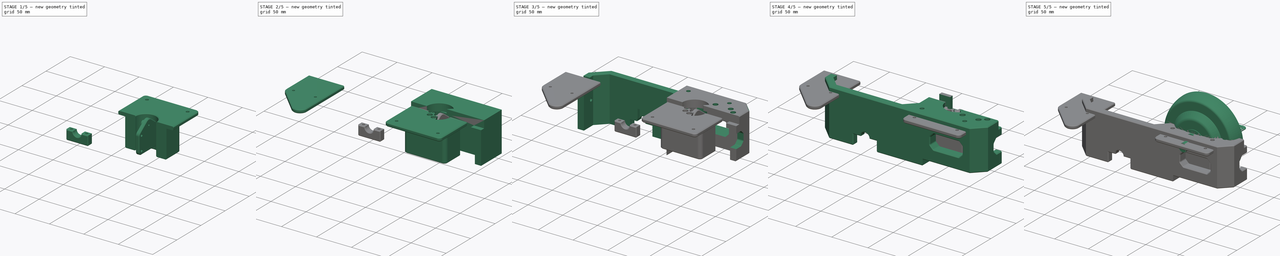
[diagram: build sequence overview — one tinted view per stage of 5, left to right]
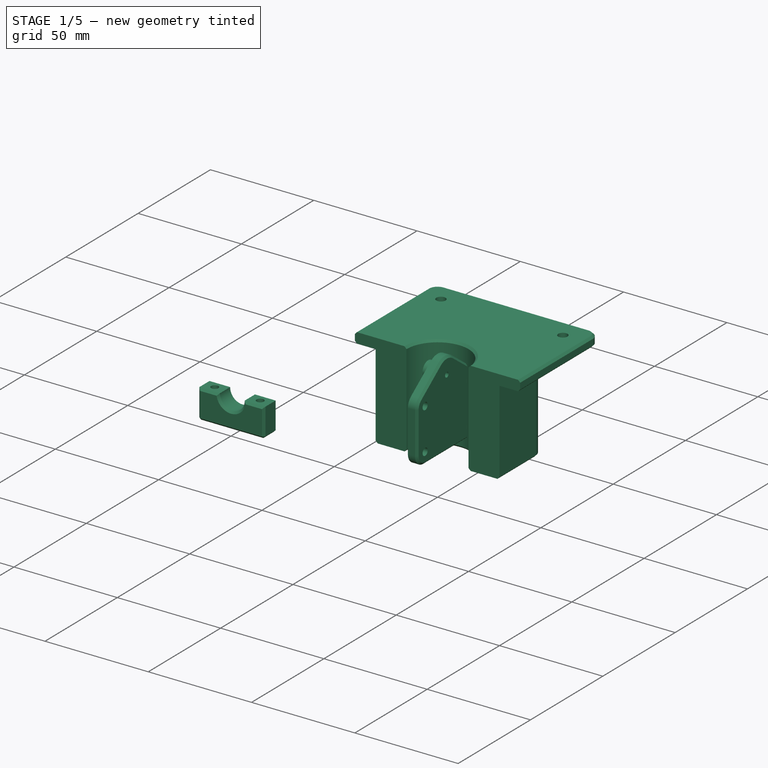
[diagram: stage 1 of 5 — iso view after this stage's code; geometry added in this stage tinted green]
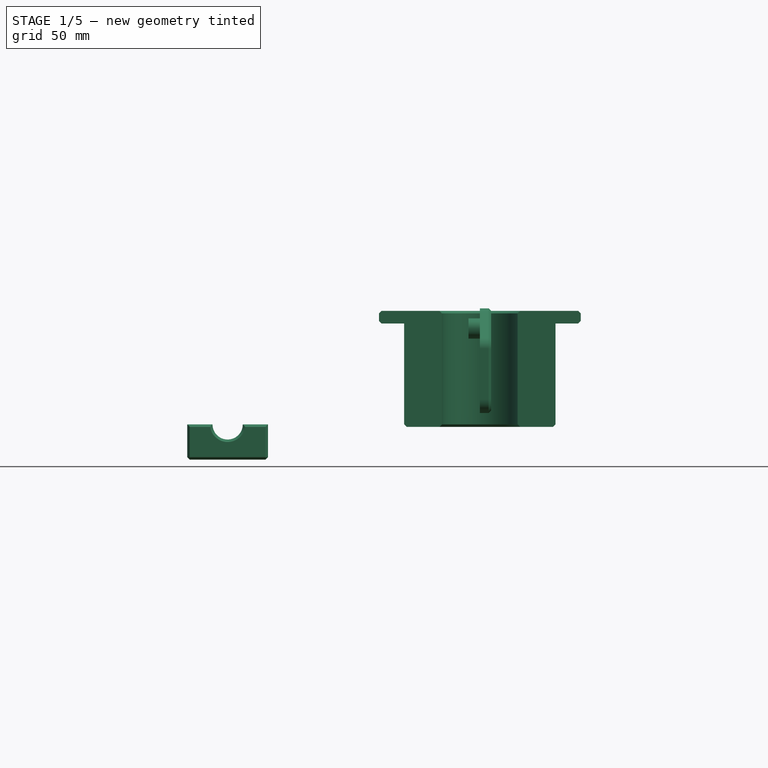
[diagram: stage 1 of 5 — front view after this stage's code; geometry added in this stage tinted green]
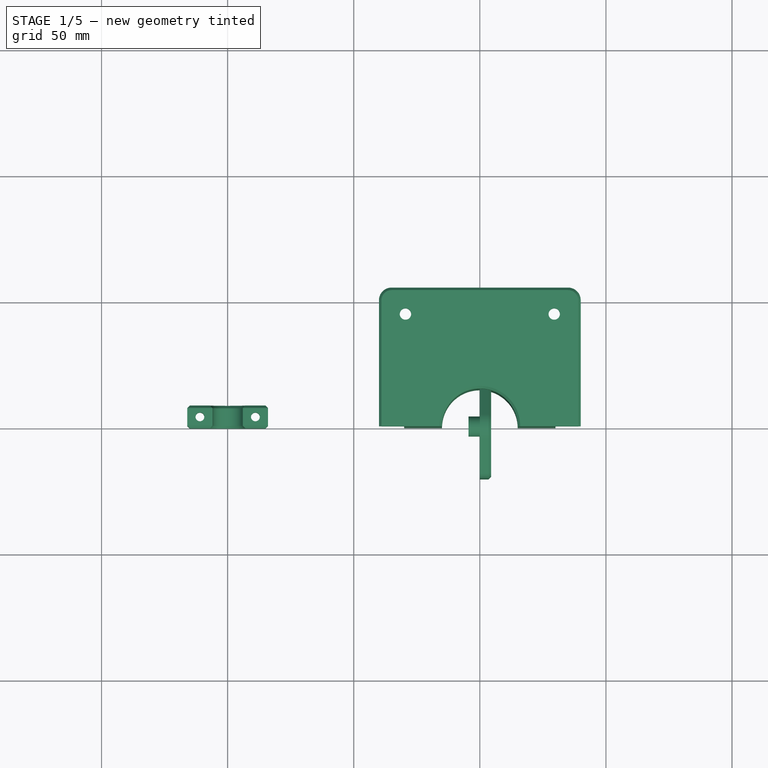
[diagram: stage 1 of 5 — top view after this stage's code; geometry added in this stage tinted green]
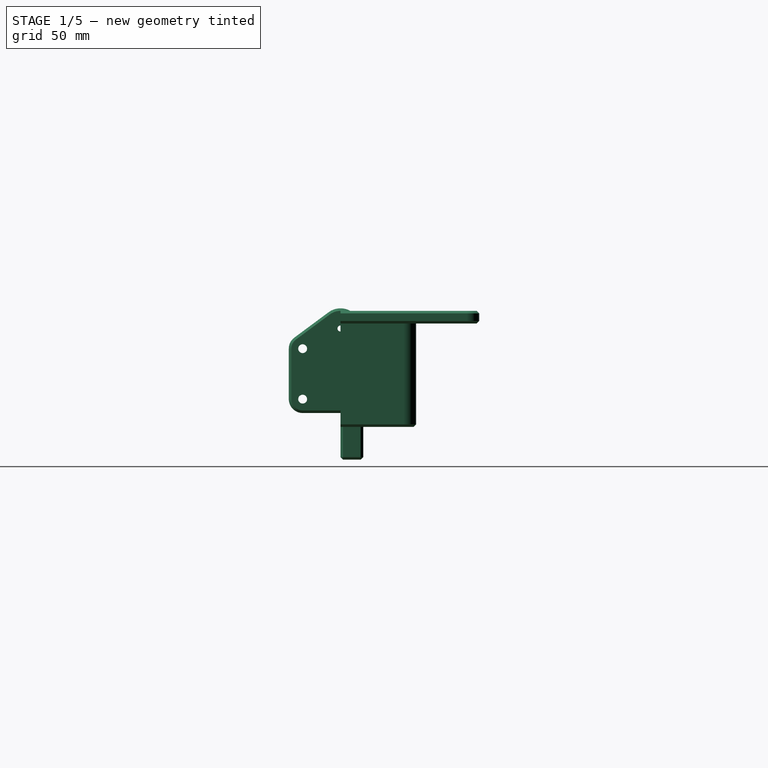
[diagram: stage 1 of 5 — right view after this stage's code; geometry added in this stage tinted green]
FCSTD DOCUMENT  (FreeCAD 0.21R33694 (Git))
Label: IWOS_Fork
License: All rights reserved
LicenseURL: http://en.wikipedia.org/wiki/All_rights_reserved
objects: Sketcher::SketchObject×58, PartDesign::Pocket×34, PartDesign::Chamfer×25, PartDesign::Body×21, PartDesign::Pad×20, PartDesign::Fillet×13, PartDesign::FeatureBase×13, App::Part×13, Part::Mirroring×11, Spreadsheet::Sheet×10, App::DocumentObjectGroup×8, PartDesign::Revolution×4, PartDesign::PolarPattern×2, Part::MultiFuse×2, PartDesign::Groove×1
note: 301 computed .brp shape members not serialized (recipe doc carries the construction recipe); baked Part::Feature solids carry a one-line shape summary decoded from their .brp

FEATURE [Sketcher::SketchObject] Sketch031
  FullyConstrained = true
  MapMode = 5
  Placement = pos=(0,0,0) rot=(1,0,0;1.5708rad)
  Support = -> [XZ_Plane019]
  expr: Constraints[18] = <<wheel>>.axis_radius
  expr: Constraints[19] = <<fork>>.fork_wheel_clamp_height
  expr: Constraints[20] = <<fork>>.fork_wheel_clamp_x
  expr: Constraints[2] = -<<fork>>.wheel_position_x
  expr: Constraints[3] = -<<fork>>.wheel_position_z
  sketch-geometry (11):
    g0: LineSegment StartX=0 StartY=0 StartZ=0 EndX=-100 EndY=0 EndZ=0
    g1: LineSegment StartX=-100 StartY=0 StartZ=0 EndX=-100 EndY=-40 EndZ=0
    g2: LineSegment StartX=-106 StartY=-40 StartZ=0 EndX=-116 EndY=-40 EndZ=0
    g3: LineSegment StartX=-116 StartY=-40 StartZ=0 EndX=-116 EndY=-54 EndZ=0
    g4: LineSegment StartX=-116 StartY=-54 StartZ=0 EndX=-84 EndY=-54 EndZ=0
    g5: LineSegment StartX=-84 StartY=-54 StartZ=0 EndX=-84 EndY=-40 EndZ=0
    g6: LineSegment StartX=-84 StartY=-40 StartZ=0 EndX=-94 EndY=-40 EndZ=0
    g7: LineSegment StartX=-100 StartY=-40 StartZ=0 EndX=-100 EndY=-46 EndZ=0
    g8: LineSegment StartX=-100 StartY=-46 StartZ=0 EndX=-100 EndY=-54 EndZ=0
    g9: LineSegment StartX=-106 StartY=-40 StartZ=0 EndX=-94 EndY=-40 EndZ=0
    g10: ArcOfCircle CenterX=-100 CenterY=-40 CenterZ=0 NormalX=0 NormalY=0 NormalZ=1 AngleXU=0 Radius=6 StartAngle=3.14159 EndAngle=6.28319
  constraints (32):
    c: Horizontal(g0)
    c: Vertical(g1)
    c: Distance(g0) = 100
    c: Distance(g1) = 40
    c: Coincident(g1,g0)
    c: Coincident(g0,g-1)
    c: Horizontal(g2)
    c: Vertical(g3)
    c: Coincident(g4,g3)
    c: Horizontal(g4)
    c: Coincident(g5,g4)
    c: Vertical(g5)
    c: Coincident(g6,g5)
    c: Horizontal(g6)
    c: Vertical(g7)
    c: Coincident(g8,g7)
    c: PointOnObject(g8,g4)
    c: Vertical(g8)
    c: Distance(g7) = 6
    c: Distance(g8) = 8
    c: Distance(g4) = 32
    c: Coincident(g3,g2)
    c: Horizontal(g9)
    c: Equal(g2,g6)
    c: Coincident(g10,g1)
    c: Coincident(g10,g2)
    c: Coincident(g10,g6)
    c: Coincident(g9,g2)
    c: Coincident(g9,g6)
    c: PointOnObject(g10,g9)
    c: PointOnObject(g7,g10)
    c: Coincident(g7,g10)
FEATURE [PartDesign::Pad] Pad010
  Direction = (1,1,1)
  Length = 9
  Length2 = 100
  Placement = pos=(0,0,0) rot=(1,0,0;1.5708rad)
  Profile = -> Sketch031
  Reversed = true
  Type = 0
  expr: Length = <<fork>>.fork_wheel_clamp_y
FEATURE [Sketcher::SketchObject] Sketch032
  FullyConstrained = true
  MapMode = 5
  Placement = pos=(0,0,-54) rot=(1,0,0;3.14159rad)
  Support = -> [Pad010]
  expr: Constraints[10] = <<fork>>.fork_wheel_clamp_x / 2
  expr: Constraints[14] = <<fork>>.fork_wheel_clamp_y
  expr: Constraints[20] = <<wheel>>.axis_diameter
  expr: Constraints[2] = -<<fork>>.wheel_position_x
  expr: Constraints[39] = <<fork>>.fork_wheel_clamp_screw_thread_radius
  expr: Constraints[9] = <<fork>>.fork_wheel_clamp_x
  sketch-geometry (15):
    g0: LineSegment StartX=0 StartY=0 StartZ=0 EndX=-100 EndY=0 EndZ=0
    g1: LineSegment StartX=-100 StartY=0 StartZ=0 EndX=-116 EndY=0 EndZ=0
    g2: LineSegment StartX=-116 StartY=0 StartZ=0 EndX=-116 EndY=-9 EndZ=0
    g3: LineSegment StartX=-116 StartY=-9 StartZ=0 EndX=-84 EndY=-9 EndZ=0
    g4: LineSegment StartX=-84 StartY=-9 StartZ=0 EndX=-84 EndY=0 EndZ=0
    g5: LineSegment StartX=-106 StartY=0 StartZ=0 EndX=-106 EndY=-9 EndZ=0
    g6: LineSegment StartX=-94 StartY=0 StartZ=0 EndX=-94 EndY=-9 EndZ=0
    g7: Circle CenterX=-111 CenterY=-4.5 CenterZ=0 NormalX=0 NormalY=0 NormalZ=1 AngleXU=0 Radius=1.75
    g8: Circle CenterX=-89 CenterY=-4.5 CenterZ=0 NormalX=0 NormalY=0 NormalZ=1 AngleXU=0 Radius=1.75
    g9: LineSegment StartX=-111 StartY=-4.5 StartZ=0 EndX=-116 EndY=-9 EndZ=0
    g10: LineSegment StartX=-111 StartY=-4.5 StartZ=0 EndX=-106 EndY=0 EndZ=0
    g11: LineSegment StartX=-111 StartY=-4.5 StartZ=0 EndX=-116 EndY=0 EndZ=0
    g12: LineSegment StartX=-89 StartY=-4.5 StartZ=0 EndX=-94 EndY=-9 EndZ=0
    g13: LineSegment StartX=-89 StartY=-4.5 StartZ=0 EndX=-94 EndY=0 EndZ=0
    g14: LineSegment StartX=-89 StartY=-4.5 StartZ=0 EndX=-84 EndY=0 EndZ=0
  constraints (40):
    c: Coincident(g0,g-1)
    c: PointOnObject(g0,g-1)
    c: Distance(g0) = 100
    c: Coincident(g1,g0)
    c: PointOnObject(g1,g-1)
    c: Coincident(g2,g1)
    c: Vertical(g2)
    c: Coincident(g3,g2)
    c: Horizontal(g3)
    c: Distance(g3) = 32
    c: Distance(g1) = 16
    c: Coincident(g4,g3)
    c: PointOnObject(g4,g0)
    c: Vertical(g4)
    c: Distance(g4) = 9
    c: PointOnObject(g5,g1)
    c: PointOnObject(g5,g3)
    c: Vertical(g5)
    c: PointOnObject(g6,g3)
    c: Vertical(g6)
    c: DistanceX(g5,g6) = 12
    c: Symmetric(g5,g6,g0)
    c: Coincident(g9,g7)
    c: Coincident(g9,g2)
    c: Coincident(g10,g7)
    c: Coincident(g10,g5)
    c: Coincident(g11,g7)
    c: Coincident(g11,g1)
    c: Coincident(g12,g8)
    c: Coincident(g12,g6)
    c: Coincident(g13,g8)
    c: Coincident(g13,g6)
    c: Coincident(g14,g4)
    c: Equal(g9,g11)
    c: Equal(g11,g10)
    c: Equal(g12,g13)
    c: Equal(g13,g14)
    c: Equal(g7,g8)
    c: Coincident(g14,g8)
    c: Radius(g7) = 1.75
FEATURE [PartDesign::Pocket] Pocket007
  BaseFeature = -> Pad010
  Direction = (1,1,1)
  Length = 0
  Length2 = 100
  Placement = pos=(0,0,0) rot=(1,0,0;1.5708rad)
  Profile = -> Sketch032
  Type = 3
  UpToFace = -> Pad010 [Face5]
FEATURE [Sketcher::SketchObject] Sketch033
  FullyConstrained = true
  MapMode = 5
  Placement = pos=(0,0,-54) rot=(1,0,0;3.14159rad)
  Support = -> [Pocket007]
  expr: Constraints[23] = <<fork>>.fork_wheel_clamp_x
  expr: Constraints[25] = <<fork>>.fork_wheel_clamp_y
  expr: Constraints[26] = -<<fork>>.wheel_position_x - <<fork>>.fork_wheel_clamp_x / 2
  expr: Constraints[27] = <<wheel>>.axis_diameter
  expr: Constraints[45] = <<fork>>.fork_wheel_clamp_screw_head_radius
  sketch-geometry (18):
    g0: LineSegment StartX=0 StartY=0 StartZ=0 EndX=-84 EndY=0 EndZ=0
    g1: LineSegment StartX=-116 StartY=0 StartZ=0 EndX=-116 EndY=-9 EndZ=0
    g2: LineSegment StartX=-116 StartY=-9 StartZ=0 EndX=-84 EndY=-9 EndZ=0
    g3: LineSegment StartX=-84 StartY=-9 StartZ=0 EndX=-84 EndY=0 EndZ=0
    g4: LineSegment StartX=-106 StartY=0 StartZ=0 EndX=-94 EndY=0 EndZ=0
    g5: LineSegment StartX=-94 StartY=0 StartZ=0 EndX=-94 EndY=-9 EndZ=0
    g6: LineSegment StartX=-94 StartY=-9 StartZ=0 EndX=-106 EndY=-9 EndZ=0
    g7: LineSegment StartX=-106 StartY=-9 StartZ=0 EndX=-106 EndY=0 EndZ=0
    g8: LineSegment StartX=-116 StartY=0 StartZ=0 EndX=-106 EndY=0 EndZ=0
    g9: LineSegment StartX=-94 StartY=0 StartZ=0 EndX=-84 EndY=0 EndZ=0
    g10: Circle CenterX=-111 CenterY=-4.5 CenterZ=0 NormalX=0 NormalY=0 NormalZ=1 AngleXU=0 Radius=3.5
    g11: Circle CenterX=-89 CenterY=-4.5 CenterZ=0 NormalX=0 NormalY=0 NormalZ=1 AngleXU=0 Radius=3.5
    g12: LineSegment StartX=-116 StartY=0 StartZ=0 EndX=-111 EndY=-4.5 EndZ=0
    g13: LineSegment StartX=-111 StartY=-4.5 StartZ=0 EndX=-116 EndY=-9 EndZ=0
    g14: LineSegment StartX=-111 StartY=-4.5 StartZ=0 EndX=-106 EndY=0 EndZ=0
    g15: LineSegment StartX=-94 StartY=0 StartZ=0 EndX=-89 EndY=-4.5 EndZ=0
    g16: LineSegment StartX=-89 StartY=-4.5 StartZ=0 EndX=-84 EndY=0 EndZ=0
    g17: LineSegment StartX=-89 StartY=-4.5 StartZ=0 EndX=-84 EndY=-9 EndZ=0
  constraints (46):
    c: Coincident(g0,g-1)
    c: PointOnObject(g0,g-1)
    c: Coincident(g1,g2)
    c: Coincident(g2,g3)
    c: Horizontal(g2)
    c: Vertical(g1)
    c: Vertical(g3)
    c: Coincident(g4,g5)
    c: Coincident(g5,g6)
    c: Coincident(g6,g7)
    c: Coincident(g7,g4)
    c: Horizontal(g4)
    c: Horizontal(g6)
    c: Vertical(g5)
    c: Vertical(g7)
    c: PointOnObject(g5,g2)
    c: Coincident(g8,g1)
    c: Coincident(g8,g4)
    c: Horizontal(g8)
    c: Coincident(g9,g4)
    c: Coincident(g9,g0)
    c: Horizontal(g9)
    c: Equal(g8,g9)
    c: Distance(g2) = 32
    c: Coincident(g3,g0)
    c: Distance(g3) = 9
    c: Distance(g0) = 84
    c: Distance(g4) = 12
    c: Coincident(g12,g1)
    c: Coincident(g12,g10)
    c: Coincident(g13,g10)
    c: Coincident(g13,g1)
    c: Coincident(g14,g10)
    c: Coincident(g14,g4)
    c: Coincident(g15,g4)
    c: Coincident(g15,g11)
    c: Coincident(g16,g11)
    c: Coincident(g16,g0)
    c: Coincident(g17,g11)
    c: Coincident(g17,g2)
    c: Equal(g13,g12)
    c: Equal(g12,g14)
    c: Equal(g14,g15)
    c: Equal(g15,g16)
    c: Equal(g11,g10)
    c: Radius(g10) = 3.5
FEATURE [PartDesign::Pocket] Pocket008
  BaseFeature = -> Pocket007
  Direction = (1,1,1)
  Length = 5
  Length2 = 100
  Placement = pos=(0,0,0) rot=(1,0,0;1.5708rad)
  Profile = -> Sketch033
  Type = 0
  expr: Length = <<fork>>.fork_wheel_clamp_screw_head_pocket_depth
FEATURE [PartDesign::Chamfer] Chamfer005
  Angle = 45
  Base = -> Pocket008 [Edge8,Edge7]
  BaseFeature = -> Pocket008
  ChamferType = 0
  FlipDirection = false
  Placement = pos=(0,0,0) rot=(1,0,0;1.5708rad)
  Size = 1
  Size2 = 1
  SupportTransform = false
  UseAllEdges = false
FEATURE [Sketcher::SketchObject] Sketch037
  FullyConstrained = true
  MapMode = 5
  Placement = pos=(0,0,0) rot=(0.57735,0.57735,0.57735;2.0944rad)
  Support = -> [YZ_Plane021]
  expr: Constraints[11] = <<fork>>.bearing_center_offset
  expr: Constraints[13] = <<fork>>.fork_bearing_clamp_screw_thread_radius
  expr: Constraints[33] = <<fork>>.fork_bearing_clamp_screw_head_radius + 2
  expr: Constraints[34] = <<fork>>.fork_bearing_clamp_hole_distance
  expr: Constraints[3] = <<fork>>.fork_bearing_clamp_injection_thread_offset_y
  expr: Constraints[4] = <<fork>>.fork_bearing_clamp_injection_thread_offset_z
  expr: Constraints[9] = <<fork>>.fork_bearing_clamp_outer_radius
  sketch-geometry (12):
    g0: LineSegment StartX=0 StartY=0 StartZ=0 EndX=15 EndY=0 EndZ=0
    g1: LineSegment StartX=15 StartY=0 StartZ=0 EndX=15 EndY=-10 EndZ=0
    g2: ArcOfCircle CenterX=0 CenterY=-2 CenterZ=0 NormalX=0 NormalY=0 NormalZ=1 AngleXU=0 Radius=8 StartAngle=0.933245 EndAngle=1.5708
    g3: LineSegment StartX=18.2738 StartY=-5.58045 StartZ=0 EndX=4.76184 EndY=4.42844 EndZ=0
    g4: Circle CenterX=15 CenterY=-10 CenterZ=0 NormalX=0 NormalY=0 NormalZ=1 AngleXU=0 Radius=1.75
    g5: LineSegment StartX=0 StartY=-35.5 StartZ=0 EndX=5e-16 EndY=6 EndZ=0
    g6: Circle CenterX=15 CenterY=-30 CenterZ=0 NormalX=0 NormalY=0 NormalZ=1 AngleXU=0 Radius=1.75
    g7: ArcOfCircle CenterX=15 CenterY=-30 CenterZ=0 NormalX=0 NormalY=0 NormalZ=1 AngleXU=0 Radius=5.5 StartAngle=4.71239 EndAngle=6.28319
    g8: ArcOfCircle CenterX=15 CenterY=-10 CenterZ=0 NormalX=0 NormalY=0 NormalZ=1 AngleXU=0 Radius=5.5 StartAngle=6.28318 EndAngle=7.21643
    g9: LineSegment StartX=20.5 StartY=-10 StartZ=0 EndX=20.5 EndY=-30 EndZ=0
    g10: LineSegment StartX=15 StartY=-10 StartZ=0 EndX=15 EndY=-30 EndZ=0
    g11: LineSegment StartX=15 StartY=-35.5 StartZ=0 EndX=0 EndY=-35.5 EndZ=0
  constraints (35):
    c: PointOnObject(g2,g-2)
    c: PointOnObject(g0,g-1)
    c: Vertical(g1)
    c: Distance(g0) = 15
    c: Distance(g1) = 10
    c: Coincident(g0,g-1)
    c: Coincident(g1,g0)
    c: PointOnObject(g5,g-2)
    c: PointOnObject(g2,g-2)
    c: Radius(g2) = 8
    c: Coincident(g2,g3)
    c: DistanceY(g2,g-1) = 2
    c: Tangent(g3,g2)
    c: Radius(g4) = 1.75
    c: Coincident(g5,g2)
    c: Equal(g6,g4)
    c: Coincident(g7,g6)
    c: Coincident(g9,g8)
    c: Coincident(g9,g7)
    c: Coincident(g8,g3)
    c: Vertical(g9)
    c: Coincident(g10,g8)
    c: Coincident(g10,g6)
    c: Coincident(g8,g4)
    c: Coincident(g1,g4)
    c: Vertical(g10)
    c: Tangent(g9,g8)
    c: Tangent(g3,g8)
    c: Tangent(g7,g9)
    c: Coincident(g11,g7)
    c: Horizontal(g11)
    c: Tangent(g7,g11)
    c: Coincident(g5,g11)
    c: Radius(g8) = 5.5
    c: Distance(g10) = 20
FEATURE [PartDesign::Pad] Pad011
  Direction = (1,1,1)
  Length = 4.5
  Length2 = 100
  Placement = pos=(0,0,0) rot=(0.57735,0.57735,0.57735;2.0944rad)
  Profile = -> Sketch037
  Reversed = true
  Type = 0
  expr: Length = <<fork>>.fork_bearing_clamp_thickness
FEATURE [Sketcher::SketchObject] Sketch038
  FullyConstrained = true
  MapMode = 2
  Placement = pos=(0,0,0) rot=(0.57735,0.57735,0.57735;2.0944rad)
  Support = -> [Pad011]
  expr: Constraints[2] = <<fork>>.bearing_center_offset
  expr: Constraints[6] = <<fork>>.bearing_inner_radius
  sketch-geometry (3):
    g0: LineSegment StartX=0 StartY=0 StartZ=0 EndX=0 EndY=-2 EndZ=0
    g1: ArcOfCircle CenterX=0 CenterY=-2 CenterZ=0 NormalX=0 NormalY=0 NormalZ=1 AngleXU=0 Radius=4 StartAngle=4.71239 EndAngle=7.85398
    g2: LineSegment StartX=1.2e-15 StartY=2 StartZ=0 EndX=-7e-16 EndY=-6 EndZ=0
  constraints (9):
    c: Coincident(g0,g-1)
    c: PointOnObject(g0,g-2)
    c: Distance(g0) = 2
    c: Coincident(g1,g0)
    c: PointOnObject(g1,g-2)
    c: PointOnObject(g1,g-2)
    c: Radius(g1) = 4
    c: Coincident(g2,g1)
    c: Coincident(g2,g1)
FEATURE [PartDesign::Pad] Pad012
  BaseFeature = -> Pad011
  Direction = (1,1,1)
  Length = 4.5
  Length2 = 100
  Placement = pos=(0,0,0) rot=(0.57735,0.57735,0.57735;2.0944rad)
  Profile = -> Sketch038
  Type = 0
  expr: Length = <<fork>>.fork_wheel_frame_thickness / 2
FEATURE [Sketcher::SketchObject] Sketch039
  FullyConstrained = true
  MapMode = 5
  Placement = pos=(-4.5,1e-15,-1e-15) rot=(0.57735,0.57735,-0.57735;4.18879rad)
  Support = -> [Pad012]
  expr: Constraints[5] = <<fork>>.bearing_center_offset
  expr: Constraints[6] = <<fork>>.fork_bearing_enforcer_screw_radius
  sketch-geometry (2):
    g0: ArcOfCircle CenterX=0 CenterY=2 CenterZ=0 NormalX=0 NormalY=0 NormalZ=1 AngleXU=0 Radius=1.2 StartAngle=4.71239 EndAngle=7.85398
    g1: LineSegment StartX=-2e-16 StartY=3.2 StartZ=0 EndX=-2e-16 EndY=0.8 EndZ=0
  constraints (7):
    c: PointOnObject(g0,g-2)
    c: PointOnObject(g0,g-2)
    c: Coincident(g1,g0)
    c: Coincident(g1,g0)
    c: Vertical(g1)
    c: DistanceY(g-1,g0) = 2
    c: Radius(g0) = 1.2
FEATURE [PartDesign::Pocket] Pocket012
  BaseFeature = -> Pad012
  Direction = (1,1,1)
  Length = 9
  Length2 = 100
  Placement = pos=(0,0,0) rot=(0.57735,0.57735,0.57735;2.0944rad)
  Profile = -> Sketch039
  Type = 0
  expr: Length = <<fork>>.fork_bearing_clamp_thickness + <<fork>>.fork_wheel_frame_thickness / 2
FEATURE [PartDesign::Chamfer] Chamfer006
  Angle = 45
  Base = -> Pocket012 [Edge20]
  BaseFeature = -> Pocket012
  ChamferType = 0
  FlipDirection = false
  Placement = pos=(0,0,0) rot=(0.57735,0.57735,0.57735;2.0944rad)
  Size = 1
  Size2 = 1
  SupportTransform = false
  UseAllEdges = false
FEATURE [PartDesign::FeatureBase] Clone008
  BaseFeature = -> Body013
FEATURE [Part::Mirroring] Part__Mirroring007  label="Clone008 (Mirror #6)"
  Base = (0,0,0)
  Normal = (0,1,0)
  Source = -> Clone008
FEATURE [App::Part] Part008  label="fork_servo_clamp_part"
  Group = -> [Body014,Clone007,Part__Mirroring006]
  Origin = -> Origin022
  Placement = pos=(0,0,-46) rot=(0,0,1;0rad)
  expr: .Placement.Base.z = -<<fork>>.fork_base_height
FEATURE [PartDesign::Chamfer] Chamfer024
  Angle = 45
  Base = -> Chamfer005 [Edge20,Edge22,Edge5,Edge19,Edge21,Edge28,Edge23,Edge17,Edge18,Edge16,Edge4,Edge15]
  BaseFeature = -> Chamfer005
  ChamferType = 0
  FlipDirection = false
  Placement = pos=(0,0,0) rot=(1,0,0;1.5708rad)
  Size = 1
  Size2 = 1
  SupportTransform = false
  UseAllEdges = false
FEATURE [App::Part] Part009  label="rail_part"
  Group = -> [Body015,Clone010,Part__Mirroring009]
  Origin = -> Origin025
  Placement = pos=(0,0,19.5) rot=(0,0,1;0rad)
  expr: .Placement.Base.z = <<bearing>>.position_z + <<bearing>>.bearing_outer_radius
FEATURE [App::DocumentObjectGroup] Group  label="rail_folder"
  Group = -> [Spreadsheet011,Part009]
FEATURE [Spreadsheet::Sheet] Spreadsheet012  label="trestle"
  cells = A1='position parameters; A2='position_x; B2(position_x)==<<position>>.trestle_position_x; A3='position_y; B3(position_y)==<<position>>.trestle_position_y; A4='position_z; B4(position_z)==<<position>>.trestle_position_z; A5='general_parameters; A6='mounting_screw_distance; B6(mounting_screw_distance)==<<hinge>>.screw_hole_distance / 2 + 15; A8='mounting_plate_length_x; B8(mounting_plate_length_x)==<<adapter>>.adapter_base_length_x; A9='mounting_plate_length_y; B9(mounting_plate_length_y)==<<adapter>>.adapter_base_length_y; A10='mounting_plate_height; B10(mounting_plate_height)==<<adapter>>.adapter_base_height; A12='mounting_screw_diameter; B12(mounting_screw_diameter)=4.5; A13='mounting_screw_radius; B13(mounting_screw_radius)==mounting_screw_diameter / 2; A15='mounting_screw_head_diameter; B15(mounting_screw_head_diameter)=8.5; A16='mounting_screw_head_radius; B16(mounting_screw_head_radius)==mounting_screw_head_diameter / 2; A17='mounting_screw_head_height; B17(mounting_screw_head_height)=2.5; A19='socket_length_x; B19(socket_length_x)=60; A20='socket_length_y; B20(socket_length_y)=60; A21='socket_height; B21(socket_height)==46 - mounting_plate_height; A23='swiffel_mounting_hole_distance; B23(swiffel_mounting_hole_distance)=36; A24='swiffel_mountin_thread_diameter; B24(swiffel_mountin_thread_diameter)=5.5; A25='swiffel_mountin_thread_radius; B25(swiffel_mountin_thread_radius)==swiffel_mountin_thread_diameter / 2; A26='swiffel_mounting_tread_depth; B26(swiffel_mounting_tread_depth)=20
FEATURE [Sketcher::SketchObject] Sketch066  label="trestle_base_sketch"
  FullyConstrained = true
  MapMode = 5
  Support = -> [XY_Plane031]
  expr: Constraints[11] = <<trestle>>.mounting_plate_length_y / 2
  expr: Constraints[12] = <<trestle>>.mounting_plate_length_x
  sketch-geometry (5):
    g0: LineSegment StartX=40 StartY=0 StartZ=0 EndX=0 EndY=0 EndZ=0
    g1: LineSegment StartX=0 StartY=0 StartZ=0 EndX=-40 EndY=0 EndZ=0
    g2: LineSegment StartX=-40 StartY=0 StartZ=0 EndX=-40 EndY=55 EndZ=0
    g3: LineSegment StartX=-40 StartY=55 StartZ=0 EndX=40 EndY=55 EndZ=0
    g4: LineSegment StartX=40 StartY=55 StartZ=0 EndX=40 EndY=0 EndZ=0
  constraints (14):
    c: PointOnObject(g0,g-1)
    c: Coincident(g0,g-1)
    c: Coincident(g0,g1)
    c: PointOnObject(g1,g-1)
    c: Coincident(g1,g2)
    c: Vertical(g2)
    c: Coincident(g2,g3)
    c: Horizontal(g3)
    c: Coincident(g3,g4)
    c: Vertical(g4)
    c: Equal(g1,g0)
    c: Distance(g2) = 55
    c: Distance(g3) = 80
    c: Coincident(g0,g4)
FEATURE [PartDesign::Body] CloneBody001
  Origin = -> Origin032
FEATURE [App::Part] Part004  label="adapter_part"
  Group = -> [Body009,Clone006,Part__Mirroring005,CloneBody,CloneBody001]
  Origin = -> Origin013
  Placement = pos=(0,0,19.5) rot=(0,0,1;0rad)
  expr: .Placement.Base.x = <<adapter>>.position_x
  expr: .Placement.Base.y = <<adapter>>.position_y
FEATURE [App::DocumentObjectGroup] Group014  label="adapter_folder"
  Group = -> [Spreadsheet007,Part004]
FEATURE [Sketcher::SketchObject] Sketch067
  FullyConstrained = true
  MapMode = 5
  Support = -> [XY_Plane031]
  expr: Constraints[10] = <<trestle>>.mounting_screw_distance
  expr: Constraints[11] = <<trestle>>.mounting_screw_radius
  expr: Constraints[17] = <<hinge>>.screw_hole_distance
  sketch-geometry (7):
    g0: Circle CenterX=-29.5 CenterY=44.5 CenterZ=0 NormalX=0 NormalY=0 NormalZ=1 AngleXU=0 Radius=2.25
    g1: Circle CenterX=29.5 CenterY=44.5 CenterZ=0 NormalX=0 NormalY=0 NormalZ=1 AngleXU=0 Radius=2.25
    g2: LineSegment StartX=-29.5 StartY=44.5 StartZ=0 EndX=-29.5 EndY=0 EndZ=0
    g3: LineSegment StartX=-29.5 StartY=44.5 StartZ=0 EndX=29.5 EndY=44.5 EndZ=0
    g4: LineSegment StartX=29.5 StartY=44.5 StartZ=0 EndX=29.5 EndY=0 EndZ=0
    g5: LineSegment StartX=-29.5 StartY=0 StartZ=0 EndX=0 EndY=0 EndZ=0
    g6: LineSegment StartX=0 StartY=0 StartZ=0 EndX=29.5 EndY=0 EndZ=0
  constraints (18):
    c: Coincident(g2,g0)
    c: PointOnObject(g2,g-1)
    c: Vertical(g2)
    c: Coincident(g3,g0)
    c: Coincident(g3,g1)
    c: Horizontal(g3)
    c: Coincident(g4,g1)
    c: PointOnObject(g4,g-1)
    c: Vertical(g4)
    c: Equal(g1,g0)
    c: Distance(g2) = 44.5
    c: Radius(g0) = 2.25
    c: Coincident(g5,g2)
    c: Coincident(g5,g-1)
    c: Coincident(g6,g-1)
    c: Coincident(g6,g4)
    c: Equal(g5,g6)
    c: Distance(g3) = 59
FEATURE [PartDesign::Pad] Pad021
  Direction = (1,1,1)
  Length = 5
  Length2 = 100
  Profile = -> Sketch066
  Type = 0
  expr: Length = <<trestle>>.mounting_plate_height
FEATURE [PartDesign::Pocket] Pocket031
  BaseFeature = -> Pad021
  Direction = (1,1,1)
  Length = 5
  Length2 = 100
  Profile = -> Sketch067
  Reversed = true
  Type = 2
FEATURE [Sketcher::SketchObject] Sketch068
  FullyConstrained = true
  MapMode = 5
  Placement = pos=(0,0,0) rot=(1,0,0;3.14159rad)
  Support = -> [Pocket031]
  expr: Constraints[12] = <<trestle>>.socket_length_x
  expr: Constraints[13] = <<trestle>>.socket_length_y / 2
  sketch-geometry (5):
    g0: LineSegment StartX=0 StartY=0 StartZ=0 EndX=30 EndY=0 EndZ=0
    g1: LineSegment StartX=30 StartY=0 StartZ=0 EndX=30 EndY=-30 EndZ=0
    g2: LineSegment StartX=30 StartY=-30 StartZ=0 EndX=-30 EndY=-30 EndZ=0
    g3: LineSegment StartX=-30 StartY=-30 StartZ=0 EndX=-30 EndY=0 EndZ=0
    g4: LineSegment StartX=-30 StartY=0 StartZ=0 EndX=0 EndY=0 EndZ=0
  constraints (14):
    c: Coincident(g-1,g0)
    c: PointOnObject(g0,g-1)
    c: Coincident(g0,g1)
    c: Vertical(g1)
    c: Coincident(g1,g2)
    c: Horizontal(g2)
    c: Coincident(g2,g3)
    c: PointOnObject(g3,g-1)
    c: Coincident(g4,g3)
    c: Coincident(g4,g0)
    c: Vertical(g3)
    c: Equal(g4,g0)
    c: Distance(g2) = 60
    c: Distance(g3) = 30
FEATURE [PartDesign::Pad] Pad022
  BaseFeature = -> Pocket031
  Direction = (1,1,1)
  Length = 41
  Length2 = 100
  Profile = -> Sketch068
  Type = 0
  expr: Length = <<trestle>>.socket_height
FEATURE [Sketcher::SketchObject] Sketch069
  FullyConstrained = true
  MapMode = 5
  Placement = pos=(0,0,-41) rot=(1,0,0;3.14159rad)
  Support = -> [Pad022]
  expr: Constraints[15] = <<trestle>>.swiffel_mounting_hole_distance / 2
  expr: Constraints[16] = <<trestle>>.swiffel_mounting_hole_distance
  expr: Constraints[18] = Spreadsheet012.swiffel_mountin_thread_radius
  sketch-geometry (7):
    g0: LineSegment StartX=0 StartY=0 StartZ=0 EndX=-18 EndY=0 EndZ=0
    g1: LineSegment StartX=-18 StartY=0 StartZ=0 EndX=-18 EndY=-18 EndZ=0
    g2: LineSegment StartX=-18 StartY=-18 StartZ=0 EndX=18 EndY=-18 EndZ=0
    g3: LineSegment StartX=18 StartY=-18 StartZ=0 EndX=18 EndY=0 EndZ=0
    g4: LineSegment StartX=18 StartY=0 StartZ=0 EndX=0 EndY=0 EndZ=0
    g5: Circle CenterX=18 CenterY=-18 CenterZ=0 NormalX=0 NormalY=0 NormalZ=1 AngleXU=0 Radius=2.75
    g6: Circle CenterX=-18 CenterY=-18 CenterZ=0 NormalX=0 NormalY=0 NormalZ=1 AngleXU=0 Radius=2.75
  constraints (19):
    c: Coincident(g0,g-1)
    c: PointOnObject(g0,g-1)
    c: Coincident(g1,g0)
    c: Coincident(g2,g1)
    c: Horizontal(g2)
    c: Coincident(g3,g2)
    c: PointOnObject(g3,g-1)
    c: Vertical(g3)
    c: Coincident(g4,g3)
    c: PointOnObject(g4,g-2)
    c: Horizontal(g4)
    c: Vertical(g1)
    c: Equal(g0,g4)
    c: Coincident(g5,g2)
    c: Coincident(g6,g1)
    c: Distance(g1) = 18
    c: Distance(g2) = 36
    c: Equal(g6,g5)
    c: Radius(g6) = 2.75
FEATURE [PartDesign::Pocket] Pocket032
  BaseFeature = -> Pad022
  Direction = (1,1,1)
  Length = 20
  Length2 = 100
  Profile = -> Sketch069
  Type = 0
  expr: Length = <<trestle>>.swiffel_mounting_tread_depth
FEATURE [PartDesign::Chamfer] Chamfer029
  Angle = 45
  Base = -> Pocket032 [Edge37,Edge38]
  BaseFeature = -> Pocket032
  ChamferType = 0
  FlipDirection = false
  Size = 1
  Size2 = 1
  SupportTransform = false
  UseAllEdges = false
FEATURE [PartDesign::Fillet] Fillet013
  Base = -> Chamfer029 [Edge38,Edge44,Edge15,Edge17]
  BaseFeature = -> Chamfer029
  Radius = 5
  SupportTransform = false
  UseAllEdges = false
FEATURE [PartDesign::Chamfer] Chamfer030
  Angle = 45
  Base = -> Fillet013 [Edge4,Edge31,Edge51]
  BaseFeature = -> Fillet013
  ChamferType = 0
  FlipDirection = false
  Size = 1
  Size2 = 1
  SupportTransform = false
  UseAllEdges = false
FEATURE [PartDesign::Body] CloneBody002
  Origin = -> Origin033
FEATURE [Sketcher::SketchObject] Sketch070
  FullyConstrained = true
  MapMode = 5
  Placement = pos=(0,0,-41) rot=(1,0,0;3.14159rad)
  Support = -> [Chamfer030]
  sketch-geometry (3):
    g0: ArcOfCircle CenterX=0 CenterY=0 CenterZ=0 NormalX=0 NormalY=0 NormalZ=1 AngleXU=0 Radius=15 StartAngle=3.14159 EndAngle=6.28319
    g1: LineSegment StartX=-15 StartY=1.8e-15 StartZ=0 EndX=0 EndY=0 EndZ=0
    g2: LineSegment StartX=0 StartY=0 StartZ=0 EndX=15 EndY=-3.7e-15 EndZ=0
  constraints (8):
    c: Coincident(g0,g-1)
    c: PointOnObject(g0,g-1)
    c: PointOnObject(g0,g-1)
    c: Coincident(g1,g0)
    c: Coincident(g1,g0)
    c: Coincident(g2,g0)
    c: Coincident(g2,g0)
    c: Radius(g0) = 15
FEATURE [PartDesign::Pocket] Pocket033
  BaseFeature = -> Chamfer030
  Direction = (1,1,1)
  Length = 5
  Length2 = 100
  Profile = -> Sketch070
  Type = 2
FEATURE [PartDesign::Chamfer] Chamfer031
  Angle = 45
  Base = -> Pocket033 [Edge1,Edge13]
  BaseFeature = -> Pocket033
  ChamferType = 0
  FlipDirection = false
  Size = 1
  Size2 = 1
  SupportTransform = false
  UseAllEdges = false
FEATURE [App::Part] Part010  label="trestle_part"
  Group = -> [Body016,Clone011,Part__Mirroring010,CloneBody002]
  Origin = -> Origin029
  Placement = pos=(-300,0,19.5) rot=(0,0,1;0rad)
  expr: .Placement.Base.x = <<trestle>>.position_x
  expr: .Placement.Base.y = <<trestle>>.position_y
  expr: .Placement.Base.z = <<trestle>>.position_z
FEATURE [App::DocumentObjectGroup] Group015  label="caster_trestle_folder"
  Group = -> [Spreadsheet012,Part010]
FEATURE [PartDesign::FeatureBase] Clone012
  BaseFeature = -> Body013
FEATURE [PartDesign::Body] Body017
  Group = -> [Clone012]
  Origin = -> Origin034
  Tip = -> Clone012
FEATURE [PartDesign::FeatureBase] Clone013
  BaseFeature = -> Part__Mirroring007
FEATURE [PartDesign::Body] Body018
  Group = -> [Clone013]
  Origin = -> Origin035
  Tip = -> Clone013
FEATURE [Part::Mirroring] Part__Mirroring011  label="Body017 (Mirror #10)"
  Base = (0,0,0)
  Normal = (1,0,0)
  Source = -> Body017
FEATURE [Part::Mirroring] Part__Mirroring012  label="Body018 (Mirror #11)"
  Base = (0,0,0)
  Normal = (1,0,0)
  Source = -> Body018
FEATURE [App::Part] Part011  label="fork_bearing_clamp_dummy"
  Group = -> [Body017,Part__Mirroring011,Body018,Part__Mirroring012]
  Origin = -> Origin036
  Placement = pos=(-159.5,0,10.5) rot=(0,0,1;0rad)
FEATURE [PartDesign::FeatureBase] Clone014
  BaseFeature = -> Body012
FEATURE [PartDesign::Body] Body019
  Group = -> [Clone014]
  Origin = -> Origin037
  Tip = -> Clone014
FEATURE [App::Part] Part012  label="fork_wheel_clamp_part_dummy"
  Group = -> [Body019]
  Origin = -> Origin038
  Placement = pos=(0,-42,0) rot=(0,0,1;0rad)
FEATURE [App::DocumentObjectGroup] Group013  label="fork_folder"
  Group = -> [Spreadsheet003,Part005,Part006,Part007,Part008,Part011,Part012]
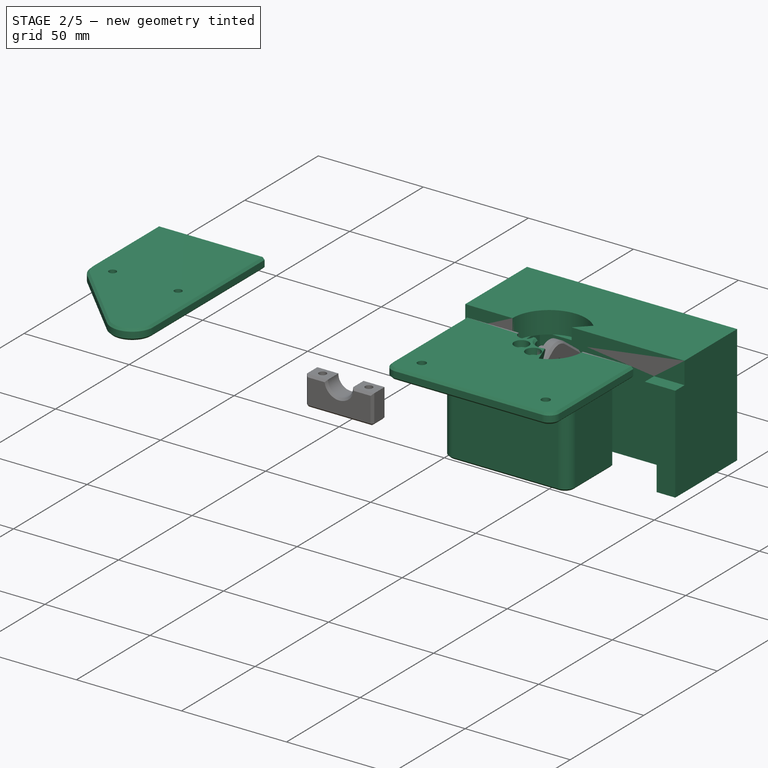
[diagram: stage 2 of 5 — iso view after this stage's code; geometry added in this stage tinted green]
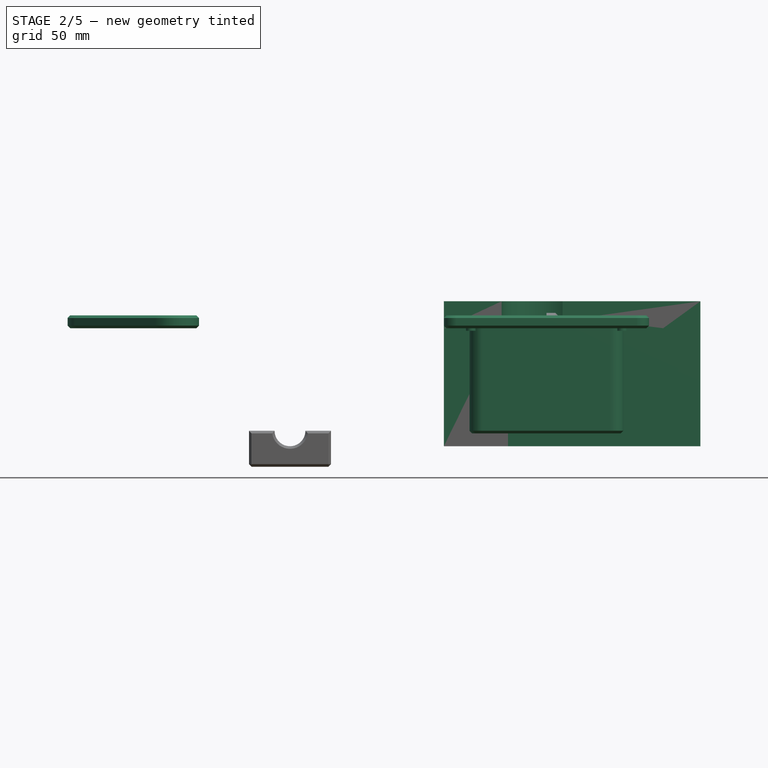
[diagram: stage 2 of 5 — front view after this stage's code; geometry added in this stage tinted green]
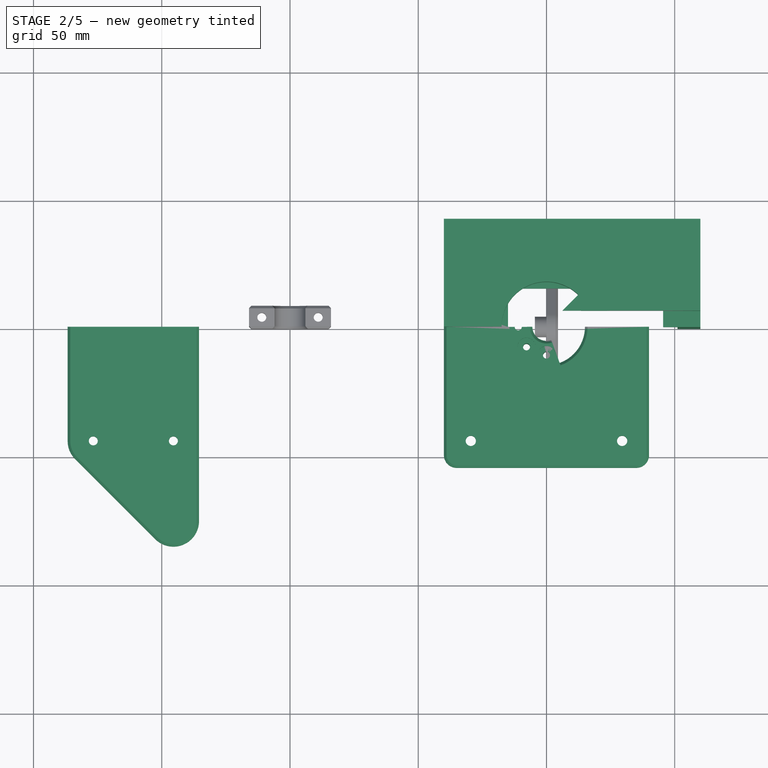
[diagram: stage 2 of 5 — top view after this stage's code; geometry added in this stage tinted green]
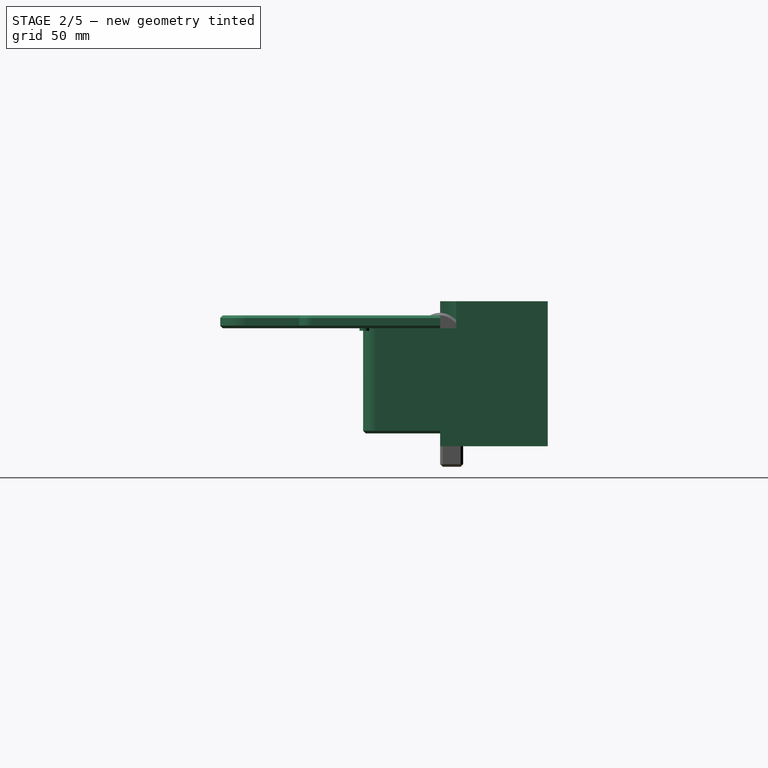
[diagram: stage 2 of 5 — right view after this stage's code; geometry added in this stage tinted green]
FEATURE [App::Part] Part003  label="servo_part"
  Group = -> [Body005,Body006,Body007,Body008,Fusion,Clone005,Part__Mirroring004]
  Origin = -> Origin008
  Placement = pos=(0,0,0) rot=(0,0,1;3.14159rad)
  expr: .Placement.Base.x = <<servo>>.position_x
  expr: .Placement.Base.y = <<servo>>.position_y
  expr: .Placement.Base.z = <<servo>>.position_z
FEATURE [Sketcher::SketchObject] Sketch022
  FullyConstrained = true
  MapMode = 5
  Support = -> [XY_Plane014]
  expr: Constraints[8] = <<adapter>>.adapter_base_length_x
  expr: Constraints[9] = <<adapter>>.adapter_base_length_y / 2
  sketch-geometry (4):
    g0: LineSegment StartX=-40 StartY=55 StartZ=0 EndX=40 EndY=55 EndZ=0
    g1: LineSegment StartX=40 StartY=55 StartZ=0 EndX=40 EndY=0 EndZ=0
    g2: LineSegment StartX=40 StartY=0 StartZ=0 EndX=-40 EndY=0 EndZ=0
    g3: LineSegment StartX=-40 StartY=0 StartZ=0 EndX=-40 EndY=55 EndZ=0
  constraints (11):
    c: Coincident(g0,g1)
    c: Coincident(g1,g2)
    c: Coincident(g2,g3)
    c: Coincident(g3,g0)
    c: Horizontal(g2)
    c: Vertical(g1)
    c: Vertical(g3)
    c: PointOnObject(g1,g-1)
    c: Distance(g0) = 80
    c: Distance(g3) = 55
    c: Symmetric(g0,g0,g-2)
FEATURE [PartDesign::Pad] Pad007
  Direction = (1,1,1)
  Length = 5
  Length2 = 100
  Profile = -> Sketch022
  Type = 0
  expr: Length = <<adapter>>.adapter_base_height
FEATURE [PartDesign::Body] Body013
  Group = -> [Sketch037,Pad011,Sketch038,Pad012,Sketch039,Pocket012,Chamfer006]
  Origin = -> Origin021
  Tip = -> Chamfer006
FEATURE [Sketcher::SketchObject] Sketch040
  FullyConstrained = true
  MapMode = 5
  Support = -> [XY_Plane016]
  expr: Constraints[10] = <<fork>>.fork_base_length_y / 2
  expr: Constraints[11] = (<<fork>>.fork_base_length_x - <<fork>>.fork_base_offset) / 2
  expr: Constraints[9] = <<fork>>.fork_base_length_x
  sketch-geometry (4):
    g0: LineSegment StartX=-40 StartY=0 StartZ=0 EndX=60 EndY=0 EndZ=0
    g1: LineSegment StartX=60 StartY=0 StartZ=0 EndX=60 EndY=42 EndZ=0
    g2: LineSegment StartX=60 StartY=42 StartZ=0 EndX=-40 EndY=42 EndZ=0
    g3: LineSegment StartX=-40 StartY=42 StartZ=0 EndX=-40 EndY=0 EndZ=0
  constraints (12):
    c: Coincident(g0,g1)
    c: Coincident(g1,g2)
    c: Coincident(g2,g3)
    c: Coincident(g3,g0)
    c: Horizontal(g0)
    c: Horizontal(g2)
    c: Vertical(g1)
    c: Vertical(g3)
    c: PointOnObject(g0,g-1)
    c: Distance(g2) = 100
    c: Distance(g3) = 42
    c: DistanceX(g0,g-1) = 40
FEATURE [PartDesign::Pad] Pad013
  Direction = (1,1,1)
  Length = 46
  Length2 = 100
  Profile = -> Sketch040
  Reversed = true
  Type = 0
  expr: Length = <<fork>>.fork_base_height
FEATURE [Sketcher::SketchObject] Sketch041
  FullyConstrained = true
  MapMode = 5
  Support = -> [Pad013]
  expr: Constraints[10] = <<fork>>.fork_base_length_x
  expr: Constraints[8] = (<<fork>>.fork_base_length_x - <<fork>>.fork_base_offset) / 2
  expr: Constraints[9] = <<fork>>.fork_base_length_y / 2
  sketch-geometry (4):
    g0: LineSegment StartX=-40 StartY=42 StartZ=0 EndX=60 EndY=42 EndZ=0
    g1: LineSegment StartX=60 StartY=42 StartZ=0 EndX=60 EndY=0 EndZ=0
    g2: LineSegment StartX=60 StartY=0 StartZ=0 EndX=-40 EndY=0 EndZ=0
    g3: LineSegment StartX=-40 StartY=0 StartZ=0 EndX=-40 EndY=42 EndZ=0
  constraints (12):
    c: Coincident(g0,g1)
    c: Coincident(g1,g2)
    c: Coincident(g2,g3)
    c: Coincident(g3,g0)
    c: Horizontal(g0)
    c: Horizontal(g2)
    c: Vertical(g1)
    c: Vertical(g3)
    c: DistanceX(g2,g-1) = 40
    c: Distance(g3) = 42
    c: Distance(g0) = 100
    c: PointOnObject(g2,g-1)
FEATURE [PartDesign::Pad] Pad014
  BaseFeature = -> Pad013
  Direction = (1,1,1)
  Length = 10.5
  Length2 = 100
  Profile = -> Sketch041
  Type = 0
  expr: Length = <<fork>>.servo_face_plate_to_hinge_distance
FEATURE [Sketcher::SketchObject] Sketch042
  FullyConstrained = true
  MapMode = 5
  Placement = pos=(0,0,10.5) rot=(0,0,1;0rad)
  Support = -> [Pad014]
  expr: Constraints[15] = <<servo>>.adapter_plate_nipple_radius + <<fork>>.fork_to_adapter_clearance
  expr: Constraints[6] = <<fork>>.adapter_steam_radius
  expr: Constraints[7] = <<parameters>>.deflection_save_angle / 2
  sketch-geometry (6):
    g0: ArcOfCircle CenterX=0 CenterY=0 CenterZ=0 NormalX=0 NormalY=0 NormalZ=1 AngleXU=0 Radius=17.5 StartAngle=0.785398 EndAngle=3.14159
    g1: LineSegment StartX=-17.5 StartY=2.1e-15 StartZ=0 EndX=0 EndY=0 EndZ=0
    g2: LineSegment StartX=0 StartY=0 StartZ=0 EndX=12.3744 EndY=12.3744 EndZ=0
    g3: ArcOfCircle CenterX=0 CenterY=0 CenterZ=0 NormalX=0 NormalY=0 NormalZ=1 AngleXU=0 Radius=6 StartAngle=0 EndAngle=0.785398
    g4: LineSegment StartX=6 StartY=0 StartZ=0 EndX=0 EndY=0 EndZ=0
    g5: LineSegment StartX=4.24264 StartY=4.24264 StartZ=0 EndX=12.3744 EndY=12.3744 EndZ=0
  constraints (16):
    c: Coincident(g0,g-1)
    c: PointOnObject(g0,g-1)
    c: Coincident(g1,g0)
    c: Coincident(g1,g0)
    c: Coincident(g2,g0)
    c: Coincident(g2,g0)
    c: Radius(g0) = 17.5
    c: Angle(g-1,g2) = 0.785398
    c: Coincident(g3,g0)
    c: PointOnObject(g3,g-1)
    c: PointOnObject(g3,g2)
    c: Coincident(g4,g3)
    c: Coincident(g4,g0)
    c: Coincident(g5,g3)
    c: Coincident(g5,g0)
    c: Radius(g3) = 6
FEATURE [PartDesign::Pocket] Pocket013
  BaseFeature = -> Pad014
  Direction = (1,1,1)
  Length = 10.5
  Length2 = 100
  Profile = -> Sketch042
  Type = 0
  expr: Length = <<fork>>.servo_face_plate_to_hinge_distance
FEATURE [Sketcher::SketchObject] Sketch043
  FullyConstrained = true
  MapMode = 5
  Placement = pos=(60,0,0) rot=(0.57735,0.57735,0.57735;2.0944rad)
  Support = -> [Pocket013]
  expr: Constraints[5] = <<fork>>.servo_face_plate_to_hinge_distance
  expr: Constraints[9] = <<fork>>.fork_cable_canal_size / 2
  sketch-geometry (4):
    g0: LineSegment StartX=6.25 StartY=0 StartZ=0 EndX=6.25 EndY=10.5 EndZ=0
    g1: LineSegment StartX=6.25 StartY=10.5 StartZ=0 EndX=0 EndY=10.5 EndZ=0
    g2: LineSegment StartX=0 StartY=10.5 StartZ=0 EndX=0 EndY=0 EndZ=0
    g3: LineSegment StartX=0 StartY=0 StartZ=0 EndX=6.25 EndY=0 EndZ=0
  constraints (11):
    c: Vertical(g0)
    c: Coincident(g1,g0)
    c: PointOnObject(g1,g-2)
    c: Horizontal(g1)
    c: Coincident(g2,g1)
    c: Distance(g2) = 10.5
    c: Coincident(g3,g2)
    c: Coincident(g3,g0)
    c: PointOnObject(g0,g-1)
    c: Distance(g1) = 6.25
    c: Coincident(g2,g-1)
FEATURE [PartDesign::Pocket] Pocket014
  BaseFeature = -> Pocket013
  Direction = (1,1,1)
  Length = 0
  Length2 = 100
  Profile = -> Sketch043
  Type = 3
  UpToFace = -> Pocket013 [Face12]
FEATURE [Sketcher::SketchObject] Sketch044
  FullyConstrained = true
  MapMode = 5
  Support = -> [XY_Plane016]
  expr: Constraints[1] = <<servo>>.adapter_plate_radius + <<fork>>.fork_to_adapter_clearance
  sketch-geometry (1):
    g0: Circle CenterX=0 CenterY=0 CenterZ=0 NormalX=0 NormalY=0 NormalZ=1 AngleXU=0 Radius=15
  constraints (2):
    c: Coincident(g0,g-1)
    c: Radius(g0) = 15
FEATURE [PartDesign::Pocket] Pocket015
  BaseFeature = -> Pocket014
  Direction = (1,1,1)
  Length = 4
  Length2 = 100
  Profile = -> Sketch044
  Reversed = true
  Type = 0
  expr: Length = <<servo>>.adapter_plate_height + <<fork>>.fork_to_adapter_clearance
FEATURE [Sketcher::SketchObject] Sketch045
  FullyConstrained = true
  MapMode = 5
  Support = -> [XY_Plane016]
  expr: Constraints[10] = <<servo>>.frame_length_y / 2 + <<fork>>.fork_to_servo_clearance
  expr: Constraints[11] = <<servo>>.faceplate_offset_x + <<fork>>.fork_to_servo_clearance
  expr: Constraints[9] = <<servo>>.frame_length_x + 2 * Spreadsheet003.fork_to_servo_clearance
  sketch-geometry (4):
    g0: LineSegment StartX=-15 StartY=0 StartZ=0 EndX=51.1 EndY=0 EndZ=0
    g1: LineSegment StartX=51.1 StartY=0 StartZ=0 EndX=51.1 EndY=20.6 EndZ=0
    g2: LineSegment StartX=51.1 StartY=20.6 StartZ=0 EndX=-15 EndY=20.6 EndZ=0
    g3: LineSegment StartX=-15 StartY=20.6 StartZ=0 EndX=-15 EndY=0 EndZ=0
  constraints (12):
    c: Coincident(g0,g1)
    c: Coincident(g1,g2)
    c: Coincident(g2,g3)
    c: Coincident(g3,g0)
    c: Horizontal(g0)
    c: Horizontal(g2)
    c: Vertical(g1)
    c: Vertical(g3)
    c: PointOnObject(g0,g-1)
    c: Distance(g2) = 66.1
    c: Distance(g3) = 20.6
    c: DistanceX(g0,g-1) = 15
FEATURE [PartDesign::Pocket] Pocket016
  BaseFeature = -> Pocket015
  Direction = (1,1,1)
  Length = 46
  Length2 = 100
  Profile = -> Sketch045
  Type = 0
  expr: Length = <<fork>>.fork_base_height
FEATURE [Sketcher::SketchObject] Sketch046
  FullyConstrained = true
  MapMode = 5
  Support = -> [XY_Plane016]
  expr: Constraints[15] = <<servo>>.faceplate_length_y / 2 + <<fork>>.fork_to_servo_clearance
  expr: Constraints[17] = <<servo>>.faceplate_length_x + 2 * <<fork>>.fork_to_servo_clearance
  expr: Constraints[6] = <<servo>>.faceplate_offset_x + <<fork>>.fork_to_servo_clearance
  expr: Constraints[7] = <<servo>>.frame_length_y / 2 + <<fork>>.fork_to_servo_clearance
  expr: Constraints[8] = <<servo>>.frame_length_x + 2 * <<fork>>.fork_to_servo_clearance
  sketch-geometry (7):
    g0: LineSegment StartX=-15 StartY=20.6 StartZ=0 EndX=51.1 EndY=20.6 EndZ=0
    g1: LineSegment StartX=51.1 StartY=20.6 StartZ=0 EndX=51.1 EndY=0 EndZ=0
    g2: LineSegment StartX=-15 StartY=0 StartZ=0 EndX=-15 EndY=20.6 EndZ=0
    g3: LineSegment StartX=45.5 StartY=15 StartZ=0 EndX=45.5 EndY=0 EndZ=0
    g4: LineSegment StartX=45.5 StartY=0 StartZ=0 EndX=51.1 EndY=0 EndZ=0
    g5: LineSegment StartX=-15 StartY=15 StartZ=0 EndX=-15 EndY=20.6 EndZ=0
    g6: LineSegment StartX=45.5 StartY=15 StartZ=0 EndX=-15 EndY=15 EndZ=0
  constraints (21):
    c: Coincident(g0,g1)
    c: Coincident(g2,g0)
    c: Horizontal(g0)
    c: Vertical(g1)
    c: Vertical(g2)
    c: PointOnObject(g1,g-1)
    c: DistanceX(g2,g-1) = 15
    c: Distance(g2) = 20.6
    c: Distance(g0) = 66.1
    c: PointOnObject(g3,g-1)
    c: Vertical(g3)
    c: Coincident(g4,g3)
    c: Coincident(g4,g1)
    c: PointOnObject(g5,g2)
    c: Coincident(g5,g0)
    c: Distance(g3) = 15
    c: PointOnObject(g2,g-1)
    c: DistanceX(g5,g3) = 60.5
    c: Coincident(g6,g3)
    c: Horizontal(g6)
    c: Coincident(g5,g6)
FEATURE [PartDesign::Pad] Pad015
  BaseFeature = -> Pocket016
  Direction = (1,1,1)
  Length = 6
  Length2 = 100
  Profile = -> Sketch046
  Reversed = true
  Type = 0
  expr: Length = <<servo>>.faceplate_height
FEATURE [App::Part] Part005  label="fork_part"
  Group = -> [Body010,Body011,Fusion001,Clone009,Part__Mirroring008]
  Origin = -> Origin015
FEATURE [PartDesign::Pocket] Pocket002
  BaseFeature = -> Pad007
  Direction = (1,1,1)
  Length = 0
  Length2 = 100
  Profile = -> Sketch023
  Type = 3
  UpToFace = -> Pad007 [Face5]
FEATURE [PartDesign::Pad] Pad008
  BaseFeature = -> Pocket002
  Direction = (1,1,1)
  Length = 16
  Length2 = 100
  Profile = -> Sketch024
  Reversed = true
  Type = 0
  expr: Length = <<adapter>>.adapter_stem_height
FEATURE [Sketcher::SketchObject] Sketch025
  FullyConstrained = true
  MapMode = 5
  Placement = pos=(0,0,5) rot=(0,0,1;0rad)
  Support = -> [Pad008]
  expr: Constraints[13] = <<adapter>>.deflection_save_angle / 2
  expr: Constraints[14] = <<adapter>>.deflection_angle + <<adapter>>.defelction_anlge_clearance
  expr: Constraints[20] = <<adapter>>.adapter_stem_inner_radius
  expr: Constraints[21] = <<adapter>>.adapter_stem_outer_radius
  sketch-geometry (10):
    g0: ArcOfCircle CenterX=0 CenterY=0 CenterZ=0 NormalX=0 NormalY=0 NormalZ=1 AngleXU=0 Radius=5.5 StartAngle=1.22173 EndAngle=3.14159
    g1: LineSegment StartX=0 StartY=0 StartZ=0 EndX=-5.5 EndY=7e-16 EndZ=0
    g2: LineSegment StartX=0 StartY=0 StartZ=0 EndX=1.88111 EndY=5.16831 EndZ=0
    g3: ArcOfCircle CenterX=0 CenterY=0 CenterZ=0 NormalX=0 NormalY=0 NormalZ=1 AngleXU=0 Radius=5.5 StartAngle=0.785398 EndAngle=1.22173
    g4: ArcOfCircle CenterX=0 CenterY=0 CenterZ=0 NormalX=0 NormalY=0 NormalZ=1 AngleXU=0 Radius=5.5 StartAngle=0 EndAngle=0.785398
    g5: LineSegment StartX=3.88909 StartY=3.88909 StartZ=0 EndX=0 EndY=0 EndZ=0
    g6: ArcOfCircle CenterX=0 CenterY=0 CenterZ=0 NormalX=0 NormalY=0 NormalZ=1 AngleXU=0 Radius=17 StartAngle=0 EndAngle=1.22173
    g7: LineSegment StartX=1.88111 StartY=5.16831 StartZ=0 EndX=5.81434 EndY=15.9748 EndZ=0
    g8: LineSegment StartX=0 StartY=0 StartZ=0 EndX=5.5 EndY=0 EndZ=0
    g9: LineSegment StartX=5.5 StartY=0 StartZ=0 EndX=17 EndY=0 EndZ=0
  constraints (26):
    c: Coincident(g0,g-1)
    c: PointOnObject(g0,g-1)
    c: Coincident(g1,g0)
    c: Coincident(g1,g0)
    c: Coincident(g2,g0)
    c: Coincident(g2,g0)
    c: Coincident(g3,g0)
    c: Coincident(g3,g0)
    c: Coincident(g4,g0)
    c: Coincident(g4,g3)
    c: PointOnObject(g4,g-1)
    c: Coincident(g5,g3)
    c: Coincident(g5,g0)
    c: Angle(g-1,g5) = 0.785398
    c: Angle(g5,g2) = 0.436332
    c: Coincident(g6,g0)
    c: PointOnObject(g6,g-1)
    c: Coincident(g7,g0)
    c: Coincident(g7,g6)
    c: Parallel(g2,g7)
    c: Radius(g0) = 5.5
    c: Radius(g6) = 17
    c: Coincident(g8,g0)
    c: Coincident(g8,g4)
    c: Coincident(g9,g8)
    c: Coincident(g9,g6)
FEATURE [PartDesign::Pocket] Pocket003
  BaseFeature = -> Pad008
  Direction = (1,1,1)
  Length = 0
  Length2 = 100
  Profile = -> Sketch025
  Type = 3
  UpToFace = -> Pad008 [Face4]
FEATURE [Sketcher::SketchObject] Sketch026
  FullyConstrained = true
  MapMode = 5
  Placement = pos=(0,-9.03e-14,0) rot=(1,0,0;1.5708rad)
  Support = -> [Pocket003]
  expr: Constraints[12] = <<adapter>>.adapter_ziptie_large_side
  expr: Constraints[13] = <<adapter>>.adapter_ziptie_small_side
  expr: Constraints[14] = <<adapter>>.adapter_ziptie_wall
  expr: Constraints[2] = <<adapter>>.adapter_stem_inner_radius
  sketch-geometry (5):
    g0: LineSegment StartX=0 StartY=0 StartZ=0 EndX=-5.5 EndY=0 EndZ=0
    g1: LineSegment StartX=-6.7 StartY=0 StartZ=0 EndX=-8.3 EndY=0 EndZ=0
    g2: LineSegment StartX=-8.3 StartY=0 StartZ=0 EndX=-8.3 EndY=-3 EndZ=0
    g3: LineSegment StartX=-8.3 StartY=-3 StartZ=0 EndX=-6.7 EndY=-3 EndZ=0
    g4: LineSegment StartX=-6.7 StartY=-3 StartZ=0 EndX=-6.7 EndY=0 EndZ=0
  constraints (15):
    c: Coincident(g0,g-1)
    c: PointOnObject(g0,g-1)
    c: Distance(g0) = 5.5
    c: PointOnObject(g1,g-1)
    c: Coincident(g1,g2)
    c: Coincident(g2,g3)
    c: Coincident(g3,g4)
    c: Coincident(g4,g1)
    c: Horizontal(g1)
    c: Horizontal(g3)
    c: Vertical(g2)
    c: Vertical(g4)
    c: Distance(g2) = 3
    c: Distance(g3) = 1.6
    c: DistanceX(g1,g0) = 1.2
FEATURE [PartDesign::Groove] Groove
  Angle = 180
  Axis = (0,2e-16,1)
  Base = (0,-9.03e-14,0)
  BaseFeature = -> Pocket003
  Profile = -> Sketch026
  ReferenceAxis = -> Sketch026 [V_Axis]
  Reversed = true
  expr: Angle = 180
FEATURE [Sketcher::SketchObject] Sketch027
  FullyConstrained = true
  MapMode = 5
  Placement = pos=(0,0,5) rot=(0,0,1;0rad)
  Support = -> [Groove]
  expr: Constraints[14] = <<adapter>>.servo_screw_thread_radius
  expr: Constraints[1] = <<servo>>.adapter_plate_screw_hole_placement_radius
  sketch-geometry (6):
    g0: Circle CenterX=0 CenterY=0 CenterZ=0 NormalX=0 NormalY=0 NormalZ=1 AngleXU=0 Radius=11
    g1: Circle CenterX=-7.77817 CenterY=7.77817 CenterZ=0 NormalX=0 NormalY=0 NormalZ=1 AngleXU=0 Radius=1.375
    g2: Circle CenterX=0 CenterY=11 CenterZ=0 NormalX=0 NormalY=0 NormalZ=1 AngleXU=0 Radius=1.375
    g3: LineSegment StartX=-11 StartY=0 StartZ=0 EndX=-7.77817 EndY=7.77817 EndZ=0
    g4: LineSegment StartX=-7.77817 StartY=7.77817 StartZ=0 EndX=0 EndY=11 EndZ=0
    g5: Circle CenterX=-11 CenterY=0 CenterZ=0 NormalX=0 NormalY=0 NormalZ=1 AngleXU=0 Radius=1.375
  constraints (15):
    c: Coincident(g0,g-1)
    c: Radius(g0) = 11
    c: PointOnObject(g1,g0)
    c: PointOnObject(g2,g0)
    c: Coincident(g3,g1)
    c: Coincident(g4,g1)
    c: Coincident(g4,g2)
    c: Equal(g3,g4)
    c: PointOnObject(g2,g-2)
    c: Coincident(g5,g3)
    c: PointOnObject(g5,g0)
    c: PointOnObject(g5,g-1)
    c: Equal(g5,g1)
    c: Equal(g5,g2)
    c: Radius(g1) = 1.375
FEATURE [PartDesign::Pocket] Pocket004
  BaseFeature = -> Groove
  Direction = (1,1,1)
  Length = 0
  Length2 = 100
  Profile = -> Sketch027
  Type = 3
  UpToFace = -> Groove [Face17]
FEATURE [Sketcher::SketchObject] Sketch028
  FullyConstrained = true
  MapMode = 5
  Placement = pos=(0,0,5) rot=(0,0,1;0rad)
  Support = -> [Pocket004]
  expr: Constraints[11] = <<adapter>>.servo_screw_hole_placement_radius
  expr: Constraints[12] = <<adapter>>.servo_screw_head_radius
  sketch-geometry (6):
    g0: Circle CenterX=0 CenterY=0 CenterZ=0 NormalX=0 NormalY=0 NormalZ=1 AngleXU=0 Radius=11
    g1: Circle CenterX=-11 CenterY=0 CenterZ=0 NormalX=0 NormalY=0 NormalZ=1 AngleXU=0 Radius=3.5
    g2: Circle CenterX=-7.77817 CenterY=7.77817 CenterZ=0 NormalX=0 NormalY=0 NormalZ=1 AngleXU=0 Radius=3.5
    g3: Circle CenterX=0 CenterY=11 CenterZ=0 NormalX=0 NormalY=0 NormalZ=1 AngleXU=0 Radius=3.5
    g4: LineSegment StartX=-11 StartY=0 StartZ=0 EndX=-7.77817 EndY=7.77817 EndZ=0
    g5: LineSegment StartX=-7.77817 StartY=7.77817 StartZ=0 EndX=0 EndY=11 EndZ=0
  constraints (15):
    c: Coincident(g0,g-1)
    c: PointOnObject(g1,g0)
    c: PointOnObject(g2,g0)
    c: PointOnObject(g3,g0)
    c: Coincident(g4,g1)
    c: Coincident(g4,g2)
    c: Coincident(g5,g2)
    c: Coincident(g5,g3)
    c: Equal(g4,g5)
    c: PointOnObject(g3,g-2)
    c: PointOnObject(g1,g-1)
    c: Radius(g0) = 11
    c: Radius(g1) = 3.5
    c: Equal(g1,g2)
    c: Equal(g1,g3)
FEATURE [PartDesign::Pocket] Pocket005
  BaseFeature = -> Pocket004
  Direction = (1,1,1)
  Length = 3
  Length2 = 100
  Profile = -> Sketch028
  Type = 0
  expr: Length = <<adapter>>.servo_screw_head_pocket_depth
FEATURE [PartDesign::Fillet] Fillet008
  Base = -> Pocket005 [Edge2,Edge1]
  BaseFeature = -> Pocket005
  Radius = 5
  SupportTransform = false
  UseAllEdges = false
  expr: Radius = <<adapter>>.adapter_base_fillet
FEATURE [PartDesign::Chamfer] Chamfer003
  Angle = 45
  Base = -> Fillet008 [Edge1,Edge4,Edge37,Edge24]
  BaseFeature = -> Fillet008
  ChamferType = 0
  FlipDirection = false
  Size = 1
  Size2 = 1
  SupportTransform = false
  UseAllEdges = false
FEATURE [PartDesign::Body] CloneBody
  Origin = -> Origin024
FEATURE [Sketcher::SketchObject] Sketch064
  FullyConstrained = true
  MapMode = 5
  Placement = pos=(0,0,0) rot=(1,0,0;3.14159rad)
  Support = -> [Chamfer003]
  expr: Constraints[10] = <<hinge>>.screw_hole_distance
  expr: Constraints[16] = <<hinge>>.screw_hole_radius - 0.1
  expr: Constraints[9] = <<hinge>>.screw_hole_distance / 2
  sketch-geometry (7):
    g0: Circle CenterX=-29.5 CenterY=-29.5 CenterZ=0 NormalX=0 NormalY=0 NormalZ=1 AngleXU=0 Radius=1.9
    g1: Circle CenterX=29.5 CenterY=-29.5 CenterZ=0 NormalX=0 NormalY=0 NormalZ=1 AngleXU=0 Radius=1.9
    g2: LineSegment StartX=-29.5 StartY=-29.5 StartZ=0 EndX=-29.5 EndY=0 EndZ=0
    g3: LineSegment StartX=-29.5 StartY=-29.5 StartZ=0 EndX=29.5 EndY=-29.5 EndZ=0
    g4: LineSegment StartX=29.5 StartY=-29.5 StartZ=0 EndX=29.5 EndY=0 EndZ=0
    g5: LineSegment StartX=0 StartY=0 StartZ=0 EndX=29.5 EndY=0 EndZ=0
    g6: LineSegment StartX=0 StartY=0 StartZ=0 EndX=-29.5 EndY=0 EndZ=0
  constraints (18):
    c: Coincident(g2,g0)
    c: PointOnObject(g2,g-1)
    c: Vertical(g2)
    c: Coincident(g3,g0)
    c: Coincident(g3,g1)
    c: Horizontal(g3)
    c: Coincident(g4,g1)
    c: PointOnObject(g4,g-1)
    c: Vertical(g4)
    c: Distance(g2) = 29.5
    c: Distance(g3) = 59
    c: Coincident(g5,g-1)
    c: Coincident(g5,g4)
    c: Coincident(g6,g-1)
    c: Coincident(g6,g2)
    c: Equal(g6,g5)
    c: Radius(g0) = 1.9
    c: Equal(g0,g1)
FEATURE [PartDesign::Pad] Pad019
  BaseFeature = -> Chamfer003
  Direction = (1,1,1)
  Length = 1
  Length2 = 100
  Profile = -> Sketch064
  Type = 0
FEATURE [PartDesign::Body] Body009  label="adapter_main_body"
  Group = -> [Sketch022,Pad007,Sketch023,Pocket002,Sketch024,Pad008,Sketch025,Pocket003,Sketch026,Groove,Sketch027,Pocket004,Sketch028,Pocket005,Fillet008,Chamfer003,Sketch064,Pad019]
  Origin = -> Origin014
  Tip = -> Pad019
FEATURE [PartDesign::FeatureBase] Clone006
  BaseFeature = -> Body009
FEATURE [Part::Mirroring] Part__Mirroring005  label="Clone006 (Mirror #4)"
  Base = (0,0,0)
  Normal = (0,1,0)
  Source = -> Clone006
FEATURE [App::DocumentObjectGroup] Group009  label="wheel_folder"
  Group = -> [Spreadsheet001,Part]
FEATURE [App::DocumentObjectGroup] Group010  label="hinge_folder"
  Group = -> [Spreadsheet005,Part001]
FEATURE [App::DocumentObjectGroup] Group011  label="bearing_folder"
  Group = -> [Spreadsheet,Part002]
FEATURE [App::DocumentObjectGroup] Group012  label="servo_folder"
  Group = -> [Spreadsheet009,Part003]
FEATURE [Spreadsheet::Sheet] Spreadsheet011  label="rail"
  cells = A8='rail_width; B8(rail_width)==<<bearing>>.bearing_height * 2; A10='mouting_screw_thread_diameter; B10(mouting_screw_thread_diameter)=3.5; A11='mouting_screw_thread_radius; B11(mouting_screw_thread_radius)==mouting_screw_thread_diameter / 2; A13='mouting_screw_head_diameter; A14='mouting_screw_head_radius; A15='mouting_screw_head_pocket_depth; A17='rail_height; B17(rail_height)=5
FEATURE [Sketcher::SketchObject] Sketch065
  FullyConstrained = true
  MapMode = 5
  Support = -> [XY_Plane028]
  expr: Constraints[11] = <<parameters>>.deflection_angle + 2 * <<parameters>>.defelction_anlge_clearance
  expr: Constraints[12] = -<<bearing>>.position_x
  expr: Constraints[41] = <<hinge>>.screw_hole_distance / 2 + 15
  expr: Constraints[45] = <<rail>>.mouting_screw_thread_radius
  sketch-geometry (17):
    g0: LineSegment StartX=0 StartY=0 StartZ=0 EndX=-145.47 EndY=75.7268 EndZ=0
    g1: LineSegment StartX=-145.47 StartY=75.7268 StartZ=0 EndX=-145.47 EndY=0 EndZ=0
    g2: ArcOfCircle CenterX=0 CenterY=0 CenterZ=0 NormalX=0 NormalY=0 NormalZ=1 AngleXU=0 Radius=164 StartAngle=2.66163 EndAngle=3.14159
    g3: LineSegment StartX=-164 StartY=2.01e-14 StartZ=0 EndX=-145.47 EndY=0 EndZ=0
    g4: LineSegment StartX=-145.47 StartY=0 StartZ=0 EndX=0 EndY=0 EndZ=0
    g5: LineSegment StartX=-145.47 StartY=44.5 StartZ=0 EndX=-176.697 EndY=44.5 EndZ=0
    g6: LineSegment StartX=-135.47 StartY=0 StartZ=0 EndX=-135.47 EndY=75.7268 EndZ=0
    g7: LineSegment StartX=-152.541 StartY=82.7978 StartZ=0 EndX=-183.768 EndY=51.5711 EndZ=0
    g8: LineSegment StartX=-186.697 StartY=44.5 StartZ=0 EndX=-186.697 EndY=0 EndZ=0
    g9: ArcOfCircle CenterX=-176.697 CenterY=44.5 CenterZ=0 NormalX=0 NormalY=0 NormalZ=1 AngleXU=0 Radius=10 StartAngle=2.3562 EndAngle=3.14159
    g10: LineSegment StartX=-176.697 StartY=44.5 StartZ=0 EndX=-186.697 EndY=44.5 EndZ=0
    g11: LineSegment StartX=-135.47 StartY=0 StartZ=0 EndX=-186.697 EndY=0 EndZ=0
    g12: ArcOfCircle CenterX=-145.47 CenterY=75.7268 CenterZ=0 NormalX=0 NormalY=0 NormalZ=1 AngleXU=0 Radius=10 StartAngle=4e-16 EndAngle=2.35619
    g13: LineSegment StartX=-145.47 StartY=44.5 StartZ=0 EndX=-135.47 EndY=44.5 EndZ=0
    g14: LineSegment StartX=-145.47 StartY=75.7268 StartZ=0 EndX=-135.47 EndY=75.7268 EndZ=0
    g15: Circle CenterX=-176.697 CenterY=44.5 CenterZ=0 NormalX=0 NormalY=0 NormalZ=1 AngleXU=0 Radius=1.75
    g16: Circle CenterX=-145.47 CenterY=44.5 CenterZ=0 NormalX=0 NormalY=0 NormalZ=1 AngleXU=0 Radius=1.75
  constraints (46):
    c: Coincident(g0,g-1)
    c: Coincident(g1,g0)
    c: PointOnObject(g1,g-1)
    c: Vertical(g1)
    c: Coincident(g2,g-1)
    c: Coincident(g2,g0)
    c: PointOnObject(g2,g-1)
    c: Coincident(g3,g1)
    c: Coincident(g3,g2)
    c: Coincident(g4,g1)
    c: Coincident(g4,g-1)
    c: Angle(g0,g4) = 0.479966
    c: DistanceX(g2,g-1) = 164
    c: Horizontal(g5)
    c: PointOnObject(g6,g4)
    c: Vertical(g6)
    c: PointOnObject(g8,g-1)
    c: Vertical(g8)
    c: Coincident(g9,g8)
    c: Coincident(g9,g7)
    c: Angle(g8,g7) = 2.35619
    c: Coincident(g10,g8)
    c: Horizontal(g10)
    c: Coincident(g11,g6)
    c: Coincident(g11,g8)
    c: Coincident(g12,g0)
    c: Coincident(g12,g7)
    c: Coincident(g6,g12)
    c: Distance(g10) = 10
    c: PointOnObject(g13,g6)
    c: Horizontal(g13)
    c: Distance(g13) = 10
    c: Coincident(g14,g12)
    c: Coincident(g14,g6)
    c: Horizontal(g14)
    c: Tangent(g12,g7)
    c: Tangent(g7,g9)
    c: Coincident(g9,g10)
    c: Coincident(g9,g5)
    c: Coincident(g5,g13)
    c: PointOnObject(g5,g1)
    c: DistanceY(g6,g13) = 44.5
    c: Coincident(g15,g9)
    c: Coincident(g16,g5)
    c: Equal(g15,g16)
    c: Radius(g15) = 1.75
FEATURE [PartDesign::Pad] Pad020
  Direction = (1,1,1)
  Length = 5
  Length2 = 100
  Profile = -> Sketch065
  Type = 0
  expr: Length = <<rail>>.rail_height
FEATURE [PartDesign::Chamfer] Chamfer028
  Angle = 45
  Base = -> Pad020 [Edge10,Edge9]
  BaseFeature = -> Pad020
  ChamferType = 0
  FlipDirection = false
  Size = 1
  Size2 = 1
  SupportTransform = false
  UseAllEdges = false
FEATURE [PartDesign::Body] Body015
  Group = -> [Sketch065,Pad020,Chamfer028]
  Origin = -> Origin028
  Tip = -> Chamfer028
FEATURE [PartDesign::FeatureBase] Clone010
  BaseFeature = -> Body015
FEATURE [Part::Mirroring] Part__Mirroring009  label="Clone010 (Mirror #8)"
  Base = (0,0,0)
  Normal = (0,1,0)
  Source = -> Clone010
FEATURE [PartDesign::Body] Body016  label="trestle_base_body"
  Group = -> [Sketch066,Sketch067,Pad021,Pocket031,Sketch068,Pad022,Sketch069,Pocket032,Chamfer029,Fillet013,Chamfer030,Sketch070,Pocket033,Chamfer031]
  Origin = -> Origin031
  Tip = -> Chamfer031
FEATURE [PartDesign::FeatureBase] Clone011
  BaseFeature = -> Body016
FEATURE [Part::Mirroring] Part__Mirroring010  label="Clone011 (Mirror #9)"
  Base = (0,0,0)
  Normal = (0,1,0)
  Source = -> Clone011
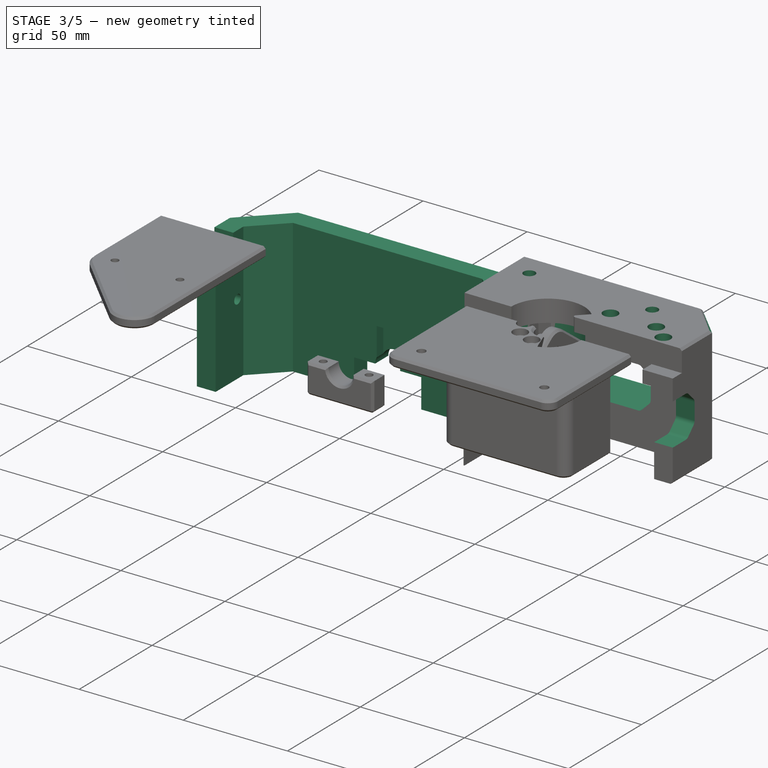
[diagram: stage 3 of 5 — iso view after this stage's code; geometry added in this stage tinted green]
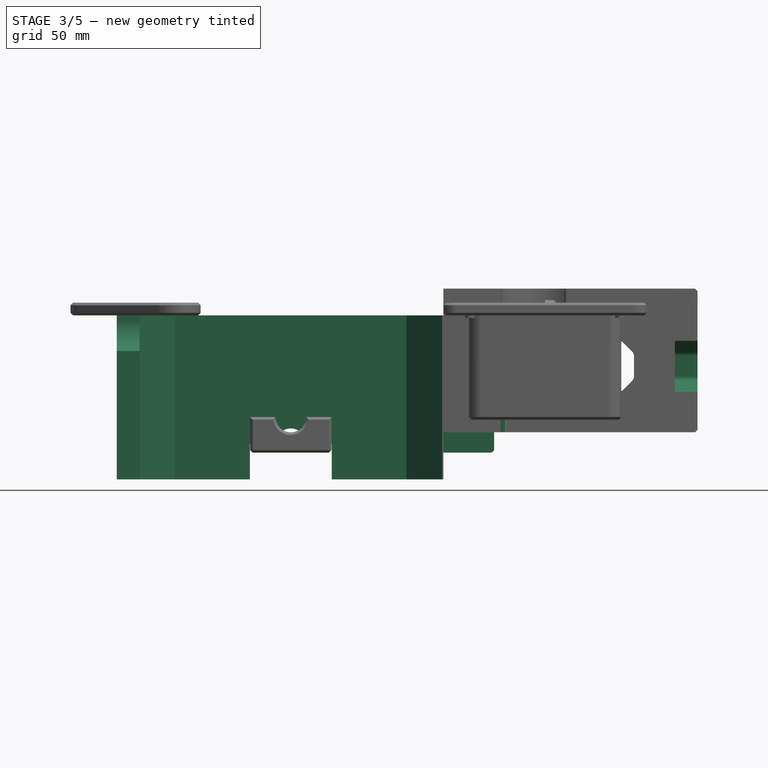
[diagram: stage 3 of 5 — front view after this stage's code; geometry added in this stage tinted green]
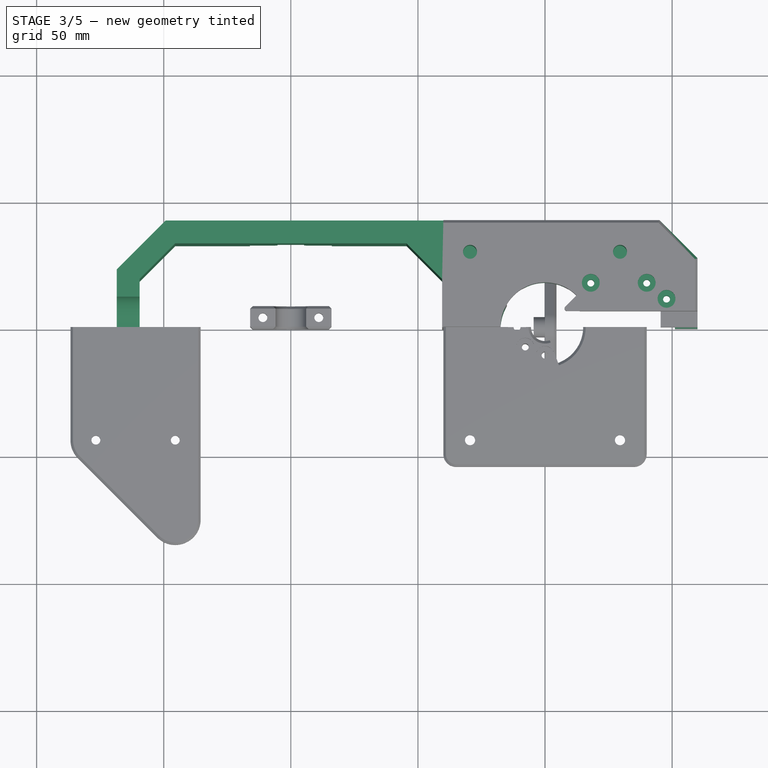
[diagram: stage 3 of 5 — top view after this stage's code; geometry added in this stage tinted green]
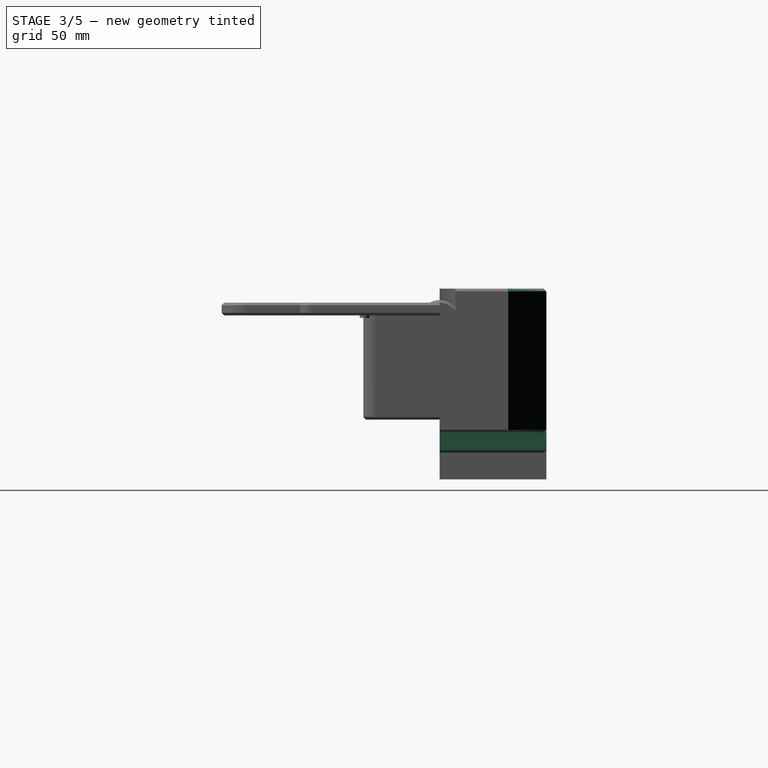
[diagram: stage 3 of 5 — right view after this stage's code; geometry added in this stage tinted green]
FEATURE [Sketcher::SketchObject] Sketch023
  FullyConstrained = true
  MapMode = 5
  Placement = pos=(0,0,5) rot=(0,0,1;0rad)
  Support = -> [Pad007]
  expr: Constraints[10] = <<hinge>>.screw_hole_distance
  expr: Constraints[13] = <<hinge>>.screw_hole_radius
  expr: Constraints[14] = <<hinge>>.screw_hole_radius
  expr: Constraints[9] = <<hinge>>.screw_hole_distance / 2 + 15
  sketch-geometry (6):
    g0: LineSegment StartX=-29.5 StartY=44.5 StartZ=0 EndX=29.5 EndY=44.5 EndZ=0
    g1: LineSegment StartX=29.5 StartY=44.5 StartZ=0 EndX=29.5 EndY=0 EndZ=0
    g2: LineSegment StartX=29.5 StartY=0 StartZ=0 EndX=-29.5 EndY=0 EndZ=0
    g3: LineSegment StartX=-29.5 StartY=0 StartZ=0 EndX=-29.5 EndY=44.5 EndZ=0
    g4: Circle CenterX=-29.5 CenterY=44.5 CenterZ=0 NormalX=0 NormalY=0 NormalZ=1 AngleXU=0 Radius=2
    g5: Circle CenterX=29.5 CenterY=44.5 CenterZ=0 NormalX=0 NormalY=0 NormalZ=1 AngleXU=0 Radius=2
  constraints (15):
    c: Coincident(g0,g1)
    c: Coincident(g1,g2)
    c: Coincident(g2,g3)
    c: Coincident(g3,g0)
    c: Horizontal(g2)
    c: Vertical(g1)
    c: Vertical(g3)
    c: Symmetric(g0,g0,g-2)
    c: PointOnObject(g2,g-1)
    c: Distance(g3) = 44.5
    c: Distance(g0) = 59
    c: Coincident(g4,g0)
    c: Coincident(g5,g0)
    c: Radius(g4) = 2
    c: Radius(g5) = 2
FEATURE [Sketcher::SketchObject] Sketch024
  FullyConstrained = true
  MapMode = 5
  Support = -> [XY_Plane014]
  expr: Constraints[23] = <<adapter>>.adapter_stem_inner_radius
  expr: Constraints[24] = <<adapter>>.adapter_stem_outer_radius
  expr: Constraints[34] = <<adapter>>.deflection_save_angle / 2
  expr: Constraints[35] = <<adapter>>.deflection_angle + <<adapter>>.defelction_anlge_clearance
  sketch-geometry (14):
    g0: LineSegment StartX=0 StartY=0 StartZ=0 EndX=3.88909 EndY=3.88909 EndZ=0
    g1: LineSegment StartX=0 StartY=0 StartZ=0 EndX=5.5 EndY=0 EndZ=0
    g2: LineSegment StartX=0 StartY=0 StartZ=0 EndX=1.88111 EndY=5.16831 EndZ=0
    g3: LineSegment StartX=0 StartY=0 StartZ=0 EndX=-5.5 EndY=-6.04e-14 EndZ=0
    g4: LineSegment StartX=-5.5 StartY=-6.04e-14 StartZ=0 EndX=-17 EndY=2.1e-15 EndZ=0
    g5: LineSegment StartX=1.88111 StartY=5.16831 StartZ=0 EndX=5.81434 EndY=15.9748 EndZ=0
    g6: LineSegment StartX=3.88909 StartY=3.88909 StartZ=0 EndX=12.0208 EndY=12.0208 EndZ=0
    g7: LineSegment StartX=5.5 StartY=0 StartZ=0 EndX=17 EndY=1.53e-14 EndZ=0
    g8: ArcOfCircle CenterX=0 CenterY=0 CenterZ=0 NormalX=0 NormalY=0 NormalZ=1 AngleXU=0 Radius=5.5 StartAngle=1.22173 EndAngle=3.14159
    g9: ArcOfCircle CenterX=0 CenterY=0 CenterZ=0 NormalX=0 NormalY=0 NormalZ=1 AngleXU=0 Radius=17 StartAngle=1.22173 EndAngle=3.14159
    g10: ArcOfCircle CenterX=0 CenterY=0 CenterZ=0 NormalX=0 NormalY=0 NormalZ=1 AngleXU=0 Radius=17 StartAngle=0.785398 EndAngle=1.22173
    g11: ArcOfCircle CenterX=0 CenterY=0 CenterZ=0 NormalX=0 NormalY=0 NormalZ=1 AngleXU=0 Radius=17 StartAngle=9e-16 EndAngle=0.785398
    g12: ArcOfCircle CenterX=0 CenterY=0 CenterZ=0 NormalX=0 NormalY=0 NormalZ=1 AngleXU=0 Radius=5.5 StartAngle=0.785398 EndAngle=1.22173
    g13: ArcOfCircle CenterX=0 CenterY=0 CenterZ=0 NormalX=0 NormalY=0 NormalZ=1 AngleXU=0 Radius=5.5 StartAngle=0 EndAngle=0.785398
  constraints (36):
    c: Coincident(g4,g3)
    c: Coincident(g5,g2)
    c: Coincident(g6,g0)
    c: Coincident(g7,g1)
    c: Parallel(g2,g5)
    c: Parallel(g6,g0)
    c: Parallel(g1,g7)
    c: Parallel(g3,g4)
    c: Coincident(g8,g0)
    c: Coincident(g8,g2)
    c: Coincident(g8,g3)
    c: Coincident(g9,g0)
    c: Coincident(g9,g5)
    c: Coincident(g9,g4)
    c: Coincident(g2,g3)
    c: Coincident(g0,g2)
    c: Coincident(g1,g0)
    c: Coincident(g0,g-1)
    c: Coincident(g10,g8)
    c: Coincident(g10,g5)
    c: Coincident(g10,g6)
    c: Coincident(g11,g8)
    c: Coincident(g11,g10)
    c: Radius(g8) = 5.5
    c: Radius(g9) = 17
    c: Coincident(g12,g8)
    c: Coincident(g12,g5)
    c: Coincident(g12,g0)
    c: Coincident(g13,g8)
    c: Coincident(g13,g0)
    c: Coincident(g13,g1)
    c: PointOnObject(g4,g-1)
    c: PointOnObject(g1,g-1)
    c: Coincident(g11,g7)
    c: Angle(g1,g0) = 0.785398
    c: Angle(g0,g2) = 0.436332
FEATURE [Spreadsheet::Sheet] Spreadsheet010  label="parameters"
  cells = A2='deflection_angle_total; B2(deflection_angle_total)==2 * deflection_angle; A3='deflection_angle; B3(deflection_angle)=22.5; A4='defelction_anlge_clearance; B4(defelction_anlge_clearance)=2.5; A6='deflection_save_angle; B6(deflection_save_angle)=90
FEATURE [Sketcher::SketchObject] Sketch029
  FullyConstrained = true
  MapMode = 5
  Support = -> [XY_Plane017]
  expr: Constraints[12] = Spreadsheet003.fork_wheel_frame_x
  expr: Constraints[13] = Spreadsheet003.fork_wheel_frame_y / 2
  expr: Constraints[2] = -<<fork>>.wheel_position_x
  expr: Constraints[50] = <<fork>>.fork_wheel_frame_thickness
  expr: Constraints[54] = <<fork>>.fork_wheel_frame_thickness
  expr: Constraints[58] = <<fork>>.fork_wheel_frame_thickness
  expr: Constraints[68] = <<fork>>.fork_wheel_frame_thickness
  expr: Constraints[69] = <<fork>>.fork_wheel_frame_thickness
  expr: Constraints[70] = <<wheel>>.tire_width / 2
  expr: Constraints[76] = (<<fork>>.fork_base_length_x - <<fork>>.fork_base_offset) / 2
  sketch-geometry (27):
    g0: LineSegment StartX=0 StartY=0 StartZ=0 EndX=-100 EndY=0 EndZ=0
    g1: LineSegment StartX=-159.5 StartY=0 StartZ=0 EndX=-159.5 EndY=33 EndZ=0
    g2: LineSegment StartX=-159.5 StartY=33 StartZ=0 EndX=-100 EndY=33 EndZ=0
    g3: LineSegment StartX=-100 StartY=33 StartZ=0 EndX=-40.5 EndY=33 EndZ=0
    g4: LineSegment StartX=-40.5 StartY=33 StartZ=0 EndX=-40.5 EndY=0 EndZ=0
    g5: LineSegment StartX=-100 StartY=33 StartZ=0 EndX=-100 EndY=0 EndZ=0
    g6: LineSegment StartX=-159.5 StartY=0 StartZ=0 EndX=-159.5 EndY=19 EndZ=0
    g7: LineSegment StartX=-159.5 StartY=19 StartZ=0 EndX=-145.5 EndY=33 EndZ=0
    g8: LineSegment StartX=-145.5 StartY=33 StartZ=0 EndX=-54.5 EndY=33 EndZ=0
    g9: LineSegment StartX=-54.5 StartY=33 StartZ=0 EndX=-40.5 EndY=19 EndZ=0
    g10: LineSegment StartX=-40.5 StartY=19 StartZ=0 EndX=-40.5 EndY=0 EndZ=0
    g11: LineSegment StartX=-40.5 StartY=0 StartZ=0 EndX=-31.5 EndY=0 EndZ=0
    g12: LineSegment StartX=-31.5 StartY=0 StartZ=0 EndX=-31.5 EndY=22.7279 EndZ=0
    g13: LineSegment StartX=-31.5 StartY=22.7279 StartZ=0 EndX=-50.7721 EndY=42 EndZ=0
    g14: LineSegment StartX=-50.7721 StartY=42 StartZ=0 EndX=-149.228 EndY=42 EndZ=0
    g15: LineSegment StartX=-149.228 StartY=42 StartZ=0 EndX=-168.5 EndY=22.7279 EndZ=0
    g16: LineSegment StartX=-168.5 StartY=22.7279 StartZ=0 EndX=-168.5 EndY=0 EndZ=0
    g17: LineSegment StartX=-168.5 StartY=0 StartZ=0 EndX=-159.5 EndY=0 EndZ=0
    g18: LineSegment StartX=-145.5 StartY=33 StartZ=0 EndX=-145.5 EndY=42 EndZ=0
    g19: LineSegment StartX=-159.5 StartY=19 StartZ=0 EndX=-168.5 EndY=19 EndZ=0
    g20: LineSegment StartX=-145.5 StartY=33 StartZ=0 EndX=-151.864 EndY=39.364 EndZ=0
    g21: LineSegment StartX=-40.5 StartY=19 StartZ=0 EndX=-31.5 EndY=19 EndZ=0
    g22: LineSegment StartX=-54.5 StartY=33 StartZ=0 EndX=-48.136 EndY=39.364 EndZ=0
    g23: LineSegment StartX=-54.5 StartY=33 StartZ=0 EndX=-54.5 EndY=42 EndZ=0
    g24: LineSegment StartX=-40 StartY=0 StartZ=0 EndX=-40 EndY=42 EndZ=0
    g25: LineSegment StartX=-50.7721 StartY=42 StartZ=0 EndX=-40 EndY=42 EndZ=0
    g26: LineSegment StartX=-40.5 StartY=0 StartZ=0 EndX=-40 EndY=0 EndZ=0
  constraints (79):
    c: Coincident(g0,g-1)
    c: PointOnObject(g0,g-1)
    c: Distance(g0) = 100
    c: PointOnObject(g1,g-1)
    c: Vertical(g1)
    c: Coincident(g2,g1)
    c: Horizontal(g2)
    c: Coincident(g3,g2)
    c: Horizontal(g3)
    c: Coincident(g4,g3)
    c: PointOnObject(g4,g0)
    c: Vertical(g4)
    c: DistanceX(g1,g3) = 119
    c: DistanceY(g1,g1) = 33
    c: Equal(g2,g3)
    c: Coincident(g5,g2)
    c: Coincident(g5,g0)
    c: Vertical(g5)
    c: Coincident(g6,g1)
    c: PointOnObject(g6,g1)
    c: Coincident(g7,g6)
    c: PointOnObject(g7,g2)
    c: PointOnObject(g8,g3)
    c: PointOnObject(g9,g4)
    c: Coincident(g10,g9)
    c: Coincident(g10,g4)
    c: Coincident(g11,g10)
    c: PointOnObject(g11,g0)
    c: Coincident(g12,g11)
    c: Vertical(g12)
    c: Coincident(g13,g12)
    c: Coincident(g14,g13)
    c: Horizontal(g14)
    c: Coincident(g16,g15)
    c: PointOnObject(g16,g-1)
    c: Vertical(g16)
    c: Coincident(g17,g16)
    c: PointOnObject(g17,g6)
    c: Horizontal(g17)
    c: Angle(g1,g7) = 2.35619
    c: Angle(g9,g10) = 2.35619
    c: Parallel(g7,g15)
    c: Parallel(g9,g13)
    c: Equal(g7,g9)
    c: Coincident(g7,g8)
    c: Coincident(g9,g8)
    c: Coincident(g15,g14)
    c: Coincident(g18,g7)
    c: PointOnObject(g18,g14)
    c: Vertical(g18)
    c: Distance(g18) = 9
    c: Coincident(g19,g6)
    c: PointOnObject(g19,g16)
    c: Horizontal(g19)
    c: Distance(g19) = 9
    c: Coincident(g20,g7)
    c: PointOnObject(g20,g15)
    c: Angle(g18,g20) = 0.785398
    c: Distance(g20) = 9
    c: Coincident(g21,g9)
    c: PointOnObject(g21,g12)
    c: Horizontal(g21)
    c: Coincident(g22,g8)
    c: PointOnObject(g22,g13)
    c: Coincident(g23,g8)
    c: PointOnObject(g23,g14)
    c: Angle(g22,g23) = 0.785398
    c: Vertical(g23)
    c: Distance(g22) = 9
    c: Distance(g21) = 9
    c: Distance(g6) = 19
    c: PointOnObject(g24,g0)
    c: Vertical(g24)
    c: Coincident(g25,g14)
    c: Coincident(g25,g24)
    c: Horizontal(g25)
    c: DistanceX(g24,g-1) = 40
    c: Coincident(g26,g10)
    c: Coincident(g26,g24)
FEATURE [PartDesign::Pad] Pad009
  Direction = (1,1,1)
  Length = 64.5
  Length2 = 100
  Profile = -> Sketch029
  Reversed = true
  Type = 0
  expr: Length = <<fork>>.fork_wheel_frame_height
FEATURE [Sketcher::SketchObject] Sketch030
  FullyConstrained = true
  MapMode = 5
  Placement = pos=(0,42,0) rot=(0,0.707107,0.707107;3.14159rad)
  Support = -> [Pad009]
  expr: Constraints[27] = <<fork>>.fork_wheel_clamp_height
  expr: Constraints[28] = <<wheel>>.axis_radius
  expr: Constraints[29] = <<fork>>.fork_wheel_clamp_x + 2 * <<fork>>.fork_wheel_clap_clearance
  expr: Constraints[31] = <<wheel>>.axis_radius
  expr: Constraints[4] = -<<fork>>.wheel_position_x
  expr: Constraints[5] = <<fork>>.fork_wheel_frame_height - <<fork>>.fork_wheel_clamp_height - <<wheel>>.axis_radius
  sketch-geometry (11):
    g0: LineSegment StartX=0 StartY=0 StartZ=0 EndX=100 EndY=0 EndZ=0
    g1: LineSegment StartX=100 StartY=0 StartZ=0 EndX=100 EndY=-50.5 EndZ=0
    g2: ArcOfCircle CenterX=100 CenterY=-50.5 CenterZ=0 NormalX=0 NormalY=0 NormalZ=1 AngleXU=0 Radius=6 StartAngle=1.48e-14 EndAngle=3.14159
    g3: LineSegment StartX=94 StartY=-50.5 StartZ=0 EndX=83.9 EndY=-50.5 EndZ=0
    g4: LineSegment StartX=83.9 StartY=-50.5 StartZ=0 EndX=83.9 EndY=-64.5 EndZ=0
    g5: LineSegment StartX=83.9 StartY=-64.5 StartZ=0 EndX=116.1 EndY=-64.5 EndZ=0
    g6: LineSegment StartX=116.1 StartY=-64.5 StartZ=0 EndX=116.1 EndY=-50.5 EndZ=0
    g7: LineSegment StartX=116.1 StartY=-50.5 StartZ=0 EndX=106 EndY=-50.5 EndZ=0
    g8: LineSegment StartX=94 StartY=-50.5 StartZ=0 EndX=106 EndY=-50.5 EndZ=0
    g9: LineSegment StartX=100 StartY=-56.5 StartZ=0 EndX=100 EndY=-64.5 EndZ=0
    g10: LineSegment StartX=100 StartY=-50.5 StartZ=0 EndX=100 EndY=-56.5 EndZ=0
  constraints (32):
    c: Coincident(g0,g-1)
    c: Horizontal(g0)
    c: Coincident(g1,g0)
    c: Vertical(g1)
    c: Distance(g0) = 100
    c: Distance(g1) = 50.5
    c: Coincident(g2,g1)
    c: Coincident(g3,g2)
    c: Horizontal(g3)
    c: Coincident(g4,g3)
    c: Vertical(g4)
    c: Coincident(g5,g4)
    c: Horizontal(g5)
    c: Coincident(g6,g5)
    c: Coincident(g7,g6)
    c: Coincident(g7,g2)
    c: Coincident(g8,g2)
    c: Coincident(g8,g2)
    c: PointOnObject(g2,g8)
    c: Horizontal(g8)
    c: Horizontal(g7)
    c: Vertical(g6)
    c: PointOnObject(g9,g5)
    c: Vertical(g9)
    c: Coincident(g10,g2)
    c: Coincident(g10,g9)
    c: Vertical(g10)
    c: Distance(g9) = 8
    c: Radius(g2) = 6
    c: Distance(g5) = 32.2
    c: Equal(g3,g7)
    c: Distance(g10) = 6
FEATURE [PartDesign::Pocket] Pocket006
  BaseFeature = -> Pad009
  Direction = (1,1,1)
  Length = 0
  Length2 = 100
  Profile = -> Sketch030
  Type = 3
  UpToFace = -> Pad009 [Face7]
FEATURE [Sketcher::SketchObject] Sketch034
  FullyConstrained = true
  MapMode = 5
  Placement = pos=(0,-1.11e-14,-50.5) rot=(1,0,0;3.14159rad)
  Support = -> [Pocket006]
  expr: Constraints[11] = <<fork>>.fork_wheel_clamp_x
  expr: Constraints[12] = <<fork>>.fork_wheel_clamp_y
  expr: Constraints[21] = <<wheel>>.axis_diameter
  expr: Constraints[45] = <<fork>>.fork_wheel_clamp_injection_thread_radius
  expr: Constraints[4] = -<<fork>>.wheel_position_x - <<fork>>.fork_wheel_clamp_x / 2
  expr: Constraints[5] = <<wheel>>.hub_width_with_washer / 2
  sketch-geometry (18):
    g0: LineSegment StartX=0 StartY=0 StartZ=0 EndX=-84 EndY=0 EndZ=0
    g1: LineSegment StartX=-84 StartY=0 StartZ=0 EndX=-84 EndY=-33 EndZ=0
    g2: LineSegment StartX=-116 StartY=-33 StartZ=0 EndX=-116 EndY=-42 EndZ=0
    g3: LineSegment StartX=-116 StartY=-42 StartZ=0 EndX=-84 EndY=-42 EndZ=0
    g4: LineSegment StartX=-84 StartY=-42 StartZ=0 EndX=-84 EndY=-33 EndZ=0
    g5: LineSegment StartX=-116 StartY=-33 StartZ=0 EndX=-106 EndY=-33 EndZ=0
    g6: LineSegment StartX=-106 StartY=-33 StartZ=0 EndX=-94 EndY=-33 EndZ=0
    g7: LineSegment StartX=-94 StartY=-33 StartZ=0 EndX=-84 EndY=-33 EndZ=0
    g8: LineSegment StartX=-106 StartY=-33 StartZ=0 EndX=-106 EndY=-42 EndZ=0
    g9: LineSegment StartX=-94 StartY=-33 StartZ=0 EndX=-94 EndY=-42 EndZ=0
    g10: LineSegment StartX=-106 StartY=-33 StartZ=0 EndX=-111 EndY=-37.5 EndZ=0
    g11: LineSegment StartX=-116 StartY=-33 StartZ=0 EndX=-111 EndY=-37.5 EndZ=0
    g12: LineSegment StartX=-111 StartY=-37.5 StartZ=0 EndX=-116 EndY=-42 EndZ=0
    g13: LineSegment StartX=-84 StartY=-42 StartZ=0 EndX=-89 EndY=-37.5 EndZ=0
    g14: LineSegment StartX=-89 StartY=-37.5 StartZ=0 EndX=-94 EndY=-33 EndZ=0
    g15: LineSegment StartX=-89 StartY=-37.5 StartZ=0 EndX=-84 EndY=-33 EndZ=0
    g16: Circle CenterX=-111 CenterY=-37.5 CenterZ=0 NormalX=0 NormalY=0 NormalZ=1 AngleXU=0 Radius=2.25
    g17: Circle CenterX=-89 CenterY=-37.5 CenterZ=0 NormalX=0 NormalY=0 NormalZ=1 AngleXU=0 Radius=2.25
  constraints (47):
    c: Coincident(g0,g-1)
    c: PointOnObject(g0,g-1)
    c: Vertical(g1)
    c: Coincident(g1,g0)
    c: Distance(g0) = 84
    c: Distance(g1) = 33
    c: Coincident(g2,g3)
    c: Coincident(g3,g4)
    c: Horizontal(g3)
    c: Vertical(g2)
    c: Vertical(g4)
    c: Distance(g3) = 32
    c: Distance(g4) = 9
    c: Coincident(g5,g2)
    c: Horizontal(g5)
    c: Coincident(g6,g5)
    c: Horizontal(g6)
    c: Coincident(g7,g6)
    c: Coincident(g7,g1)
    c: Horizontal(g7)
    c: Equal(g5,g7)
    c: Distance(g6) = 12
    c: Coincident(g1,g4)
    c: Coincident(g8,g5)
    c: Vertical(g8)
    c: Coincident(g9,g6)
    c: PointOnObject(g9,g3)
    c: Vertical(g9)
    c: PointOnObject(g8,g3)
    c: Coincident(g10,g5)
    c: Coincident(g11,g2)
    c: Coincident(g11,g10)
    c: Coincident(g12,g10)
    c: Coincident(g12,g2)
    c: Coincident(g13,g3)
    c: Coincident(g14,g13)
    c: Coincident(g14,g6)
    c: Coincident(g15,g13)
    c: Coincident(g15,g1)
    c: Equal(g10,g11)
    c: Equal(g11,g12)
    c: Equal(g12,g14)
    c: Equal(g14,g15)
    c: Coincident(g16,g10)
    c: Coincident(g17,g13)
    c: Radius(g16) = 2.25
    c: Equal(g16,g17)
FEATURE [Sketcher::SketchObject] Sketch035
  FullyConstrained = true
  MapMode = 5
  Placement = pos=(0,33,0) rot=(1,0,0;1.5708rad)
  Support = -> [Pocket006]
  expr: Constraints[18] = <<wheel>>.washer_nose_wideness
  expr: Constraints[19] = <<wheel>>.washer_nose_height
  expr: Constraints[4] = -<<fork>>.wheel_position_x
  expr: Constraints[5] = <<fork>>.fork_wheel_frame_height - <<fork>>.fork_wheel_clamp_height - <<wheel>>.axis_radius
  sketch-geometry (7):
    g0: LineSegment StartX=0 StartY=0 StartZ=0 EndX=-100 EndY=0 EndZ=0
    g1: LineSegment StartX=-100 StartY=0 StartZ=0 EndX=-100 EndY=-50.5 EndZ=0
    g2: LineSegment StartX=-105.25 StartY=-34 StartZ=0 EndX=-94.75 EndY=-34 EndZ=0
    g3: LineSegment StartX=-94.75 StartY=-34 StartZ=0 EndX=-94.75 EndY=-50.5 EndZ=0
    g4: LineSegment StartX=-105.25 StartY=-50.5 StartZ=0 EndX=-105.25 EndY=-34 EndZ=0
    g5: LineSegment StartX=-105.25 StartY=-50.5 StartZ=0 EndX=-100 EndY=-50.5 EndZ=0
    g6: LineSegment StartX=-100 StartY=-50.5 StartZ=0 EndX=-94.75 EndY=-50.5 EndZ=0
  constraints (20):
    c: Coincident(g0,g-1)
    c: Horizontal(g0)
    c: Coincident(g1,g0)
    c: Vertical(g1)
    c: Distance(g0) = 100
    c: Distance(g1) = 50.5
    c: Coincident(g2,g3)
    c: Coincident(g4,g2)
    c: Horizontal(g2)
    c: Vertical(g3)
    c: Vertical(g4)
    c: Coincident(g5,g4)
    c: Horizontal(g5)
    c: Coincident(g6,g3)
    c: Horizontal(g6)
    c: Coincident(g6,g5)
    c: Equal(g5,g6)
    c: Coincident(g5,g1)
    c: Distance(g2) = 10.5
    c: Distance(g3) = 16.5
FEATURE [PartDesign::Pocket] Pocket009
  BaseFeature = -> Pocket006
  Direction = (1,1,1)
  Length = 4.5
  Length2 = 100
  Profile = -> Sketch035
  Type = 0
  expr: Length = <<wheel>>.washer_nose_lowness
FEATURE [PartDesign::Pocket] Pocket010
  BaseFeature = -> Pocket009
  Direction = (1,1,1)
  Length = 10
  Length2 = 100
  Profile = -> Sketch034
  Type = 0
  expr: Length = <<fork>>.fork_wheel_clamp_injection_thread_pocket_depth
FEATURE [Sketcher::SketchObject] Sketch036
  FullyConstrained = true
  MapMode = 5
  Placement = pos=(-168.5,0,0) rot=(0.57735,-0.57735,-0.57735;2.0944rad)
  Support = -> [Pocket010]
  expr: Constraints[11] = <<fork>>.bearing_outer_radius + <<fork>>.fork_bearing_clearance
  expr: Constraints[12] = <<fork>>.bearing_center_offset
  expr: Constraints[20] = <<fork>>.fork_bearing_clamp_injection_thread_offset_z
  expr: Constraints[21] = <<fork>>.fork_bearing_clamp_injection_thread_offset_y
  expr: Constraints[23] = <<fork>>.fork_bearing_clamp_injection_thread_radius
  expr: Constraints[27] = <<fork>>.fork_bearing_clamp_hole_distance
  sketch-geometry (11):
    g0: LineSegment StartX=0 StartY=0 StartZ=0 EndX=0 EndY=-2 EndZ=0
    g1: LineSegment StartX=0 StartY=-2 StartZ=0 EndX=-2.2e-15 EndY=-14 EndZ=0
    g2: LineSegment StartX=0 StartY=0 StartZ=0 EndX=-12 EndY=0 EndZ=0
    g3: LineSegment StartX=-12 StartY=0 StartZ=0 EndX=-12 EndY=-2 EndZ=0
    g4: ArcOfCircle CenterX=0 CenterY=-2 CenterZ=0 NormalX=0 NormalY=0 NormalZ=1 AngleXU=0 Radius=12 StartAngle=3.14159 EndAngle=4.71239
    g5: LineSegment StartX=0 StartY=-2 StartZ=0 EndX=-12 EndY=-2 EndZ=0
    g6: LineSegment StartX=0 StartY=0 StartZ=0 EndX=-15 EndY=0 EndZ=0
    g7: LineSegment StartX=-15 StartY=0 StartZ=0 EndX=-15 EndY=-10 EndZ=0
    g8: Circle CenterX=-15 CenterY=-10 CenterZ=0 NormalX=0 NormalY=0 NormalZ=1 AngleXU=0 Radius=2.25
    g9: Circle CenterX=-15 CenterY=-30 CenterZ=0 NormalX=0 NormalY=0 NormalZ=1 AngleXU=0 Radius=2.25
    g10: LineSegment StartX=-15 StartY=-10 StartZ=0 EndX=-15 EndY=-30 EndZ=0
  constraints (29):
    c: Coincident(g0,g-1)
    c: PointOnObject(g0,g-2)
    c: Coincident(g1,g0)
    c: PointOnObject(g1,g-2)
    c: Coincident(g2,g0)
    c: PointOnObject(g2,g-1)
    c: Coincident(g3,g2)
    c: Vertical(g3)
    c: Coincident(g4,g0)
    c: Coincident(g4,g1)
    c: Coincident(g4,g3)
    c: Radius(g4) = 12
    c: Distance(g0) = 2
    c: Coincident(g5,g0)
    c: Coincident(g5,g3)
    c: Horizontal(g5)
    c: Coincident(g6,g0)
    c: PointOnObject(g6,g-1)
    c: Coincident(g7,g6)
    c: Vertical(g7)
    c: Distance(g7) = 10
    c: Distance(g6) = 15
    c: Coincident(g8,g7)
    c: Radius(g8) = 2.25
    c: Coincident(g10,g8)
    c: Coincident(g10,g9)
    c: Vertical(g10)
    c: Distance(g10) = 20
    c: Equal(g8,g9)
FEATURE [PartDesign::Pocket] Pocket011
  BaseFeature = -> Pocket010
  Direction = (1,1,1)
  Length = 0
  Length2 = 100
  Offset = 9
  Profile = -> Sketch036
  Type = 3
  UpToFace = -> Pocket010 [Face14]
  expr: Offset = <<fork>>.fork_wheel_frame_thickness
FEATURE [Sketcher::SketchObject] Sketch047
  FullyConstrained = true
  MapMode = 5
  Placement = pos=(0,0,10.5) rot=(0,0,1;0rad)
  Support = -> [Pad015]
  expr: Constraints[10] = <<servo>>.frame_screw_hole_outer_offset_x
  expr: Constraints[11] = <<servo>>.frame_screw_hole_outer_offset_y
  expr: Constraints[12] = <<servo>>.frame_screw_hole_to_screw_hole_distance
  expr: Constraints[13] = <<servo>>.frame_screw_hole_inner_offset_x
  expr: Constraints[14] = <<servo>>.frame_screw_hole_inner_offset_y
  expr: Constraints[20] = <<fork>>.fork_servo_mounting_screw_thread_radius
  sketch-geometry (8):
    g0: LineSegment StartX=0 StartY=0 StartZ=0 EndX=0 EndY=17.3 EndZ=0
    g1: LineSegment StartX=0 StartY=17.3 StartZ=0 EndX=18 EndY=17.3 EndZ=0
    g2: LineSegment StartX=18 StartY=17.3 StartZ=0 EndX=40 EndY=17.3 EndZ=0
    g3: LineSegment StartX=0 StartY=0 StartZ=0 EndX=47.8 EndY=0 EndZ=0
    g4: LineSegment StartX=47.8 StartY=0 StartZ=0 EndX=47.8 EndY=11 EndZ=0
    g5: Circle CenterX=18 CenterY=17.3 CenterZ=0 NormalX=0 NormalY=0 NormalZ=1 AngleXU=0 Radius=1.375
    g6: Circle CenterX=40 CenterY=17.3 CenterZ=0 NormalX=0 NormalY=0 NormalZ=1 AngleXU=0 Radius=1.375
    g7: Circle CenterX=47.8 CenterY=11 CenterZ=0 NormalX=0 NormalY=0 NormalZ=1 AngleXU=0 Radius=1.375
  constraints (21):
    c: Coincident(g0,g-1)
    c: Coincident(g1,g0)
    c: Horizontal(g1)
    c: Coincident(g2,g1)
    c: Horizontal(g2)
    c: Coincident(g3,g-1)
    c: PointOnObject(g3,g-1)
    c: Coincident(g4,g3)
    c: Vertical(g4)
    c: Vertical(g0)
    c: Distance(g1) = 18
    c: Distance(g0) = 17.3
    c: Distance(g2) = 22
    c: Distance(g3) = 47.8
    c: Distance(g4) = 11
    c: Coincident(g5,g1)
    c: Coincident(g6,g2)
    c: Coincident(g7,g4)
    c: Equal(g5,g6)
    c: Equal(g6,g7)
    c: Radius(g5) = 1.375
FEATURE [PartDesign::Pocket] Pocket018
  BaseFeature = -> Pad015
  Direction = (1,1,1)
  Length = 24
  Length2 = 100
  Profile = -> Sketch042
  Type = 1
FEATURE [PartDesign::Pocket] Pocket017
  BaseFeature = -> Pocket018
  Direction = (1,1,1)
  Length = 5
  Length2 = 100
  Profile = -> Sketch047
  Type = 2
FEATURE [Sketcher::SketchObject] Sketch048
  FullyConstrained = true
  MapMode = 5
  Placement = pos=(0,0,10.5) rot=(0,0,1;0rad)
  Support = -> [Pocket017]
  expr: Constraints[10] = <<servo>>.frame_screw_hole_outer_offset_y
  expr: Constraints[11] = <<servo>>.frame_screw_hole_outer_offset_x
  expr: Constraints[12] = <<servo>>.frame_screw_hole_to_screw_hole_distance
  expr: Constraints[13] = <<servo>>.frame_screw_hole_inner_offset_y
  expr: Constraints[14] = <<servo>>.frame_screw_hole_inner_offset_x
  expr: Constraints[20] = <<fork>>.fork_servo_mounting_screw_head_radius
  sketch-geometry (8):
    g0: LineSegment StartX=0 StartY=0 StartZ=0 EndX=0 EndY=17.3 EndZ=0
    g1: LineSegment StartX=0 StartY=17.3 StartZ=0 EndX=18 EndY=17.3 EndZ=0
    g2: LineSegment StartX=18 StartY=17.3 StartZ=0 EndX=40 EndY=17.3 EndZ=0
    g3: LineSegment StartX=0 StartY=0 StartZ=0 EndX=47.8 EndY=0 EndZ=0
    g4: LineSegment StartX=47.8 StartY=0 StartZ=0 EndX=47.8 EndY=11 EndZ=0
    g5: Circle CenterX=18 CenterY=17.3 CenterZ=0 NormalX=0 NormalY=0 NormalZ=1 AngleXU=0 Radius=3.5
    g6: Circle CenterX=40 CenterY=17.3 CenterZ=0 NormalX=0 NormalY=0 NormalZ=1 AngleXU=0 Radius=3.5
    g7: Circle CenterX=47.8 CenterY=11 CenterZ=0 NormalX=0 NormalY=0 NormalZ=1 AngleXU=0 Radius=3.5
  constraints (21):
    c: Coincident(g0,g-1)
    c: Coincident(g1,g0)
    c: Horizontal(g1)
    c: Coincident(g2,g1)
    c: Vertical(g0)
    c: Horizontal(g2)
    c: Coincident(g3,g-1)
    c: Coincident(g4,g3)
    c: Horizontal(g3)
    c: Vertical(g4)
    c: Distance(g0) = 17.3
    c: Distance(g1) = 18
    c: Distance(g2) = 22
    c: Distance(g4) = 11
    c: Distance(g3) = 47.8
    c: Coincident(g5,g1)
    c: Coincident(g6,g2)
    c: Coincident(g7,g4)
    c: Equal(g5,g6)
    c: Equal(g6,g7)
    c: Radius(g5) = 3.5
FEATURE [PartDesign::Pocket] Pocket019
  BaseFeature = -> Pocket017
  Direction = (1,1,1)
  Length = 5
  Length2 = 100
  Profile = -> Sketch048
  Type = 0
  expr: Length = <<fork>>.fork_servo_mounting_screw_head_pocket_depth
FEATURE [Sketcher::SketchObject] Sketch049
  FullyConstrained = true
  MapMode = 5
  Placement = pos=(0,0,10.5) rot=(0,0,1;0rad)
  Support = -> [Pocket019]
  expr: Constraints[10] = <<hinge>>.screw_hole_distance / 2
  expr: Constraints[11] = <<hinge>>.screw_hole_distance / 2
  expr: Constraints[15] = <<fork>>.fork_hinge_injection_thread_radius
  sketch-geometry (6):
    g0: LineSegment StartX=1e-16 StartY=0 StartZ=0 EndX=-29.5 EndY=0 EndZ=0
    g1: LineSegment StartX=-29.5 StartY=0 StartZ=0 EndX=-29.5 EndY=29.5 EndZ=0
    g2: LineSegment StartX=1e-16 StartY=0 StartZ=0 EndX=29.5 EndY=0 EndZ=0
    g3: LineSegment StartX=29.5 StartY=0 StartZ=0 EndX=29.5 EndY=29.5 EndZ=0
    g4: Circle CenterX=-29.5 CenterY=29.5 CenterZ=0 NormalX=0 NormalY=0 NormalZ=1 AngleXU=0 Radius=2.75
    g5: Circle CenterX=29.5 CenterY=29.5 CenterZ=0 NormalX=0 NormalY=0 NormalZ=1 AngleXU=0 Radius=2.75
  constraints (16):
    c: Coincident(g0,g-1)
    c: PointOnObject(g0,g-1)
    c: Coincident(g1,g0)
    c: Coincident(g2,g0)
    c: PointOnObject(g2,g-1)
    c: Coincident(g3,g2)
    c: Vertical(g1)
    c: Vertical(g3)
    c: Equal(g1,g3)
    c: Equal(g2,g0)
    c: Distance(g1) = 29.5
    c: Distance(g0) = 29.5
    c: Coincident(g4,g1)
    c: Coincident(g5,g3)
    c: Equal(g4,g5)
    c: Radius(g4) = 2.75
FEATURE [PartDesign::Pocket] Pocket020
  BaseFeature = -> Pocket019
  Direction = (1,1,1)
  Length = 20
  Length2 = 100
  Profile = -> Sketch049
  Type = 0
  expr: Length = <<fork>>.fork_hinge_injection_thread_pocket_depth
FEATURE [Sketcher::SketchObject] Sketch050
  FullyConstrained = true
  MapMode = 5
  Placement = pos=(0,0,-46) rot=(1,0,0;3.14159rad)
  Support = -> [Pocket020]
  expr: Constraints[10] = <<fork>>.fork_bottom_wall_length_y / 2
  expr: Constraints[13] = (<<fork>>.fork_base_length_x + <<fork>>.fork_base_offset) / 2
  expr: Constraints[14] = <<fork>>.fork_base_length_x
  expr: Constraints[9] = <<fork>>.fork_bottom_wall_length_x
  sketch-geometry (5):
    g0: LineSegment StartX=-40 StartY=0 StartZ=0 EndX=-20 EndY=0 EndZ=0
    g1: LineSegment StartX=-20 StartY=0 StartZ=0 EndX=-20 EndY=-42 EndZ=0
    g2: LineSegment StartX=-20 StartY=-42 StartZ=0 EndX=-40 EndY=-42 EndZ=0
    g3: LineSegment StartX=-40 StartY=-42 StartZ=0 EndX=-40 EndY=0 EndZ=0
    g4: LineSegment StartX=0 StartY=0 StartZ=0 EndX=60 EndY=0 EndZ=0
  constraints (15):
    c: Coincident(g0,g1)
    c: Coincident(g1,g2)
    c: Coincident(g2,g3)
    c: Coincident(g3,g0)
    c: Horizontal(g0)
    c: Horizontal(g2)
    c: Vertical(g1)
    c: Vertical(g3)
    c: PointOnObject(g0,g-1)
    c: Distance(g0) = 20
    c: Distance(g3) = 42
    c: Coincident(g4,g-1)
    c: PointOnObject(g4,g-1)
    c: Distance(g4) = 60
    c: DistanceX(g0,g4) = 100
FEATURE [PartDesign::Pad] Pad016
  BaseFeature = -> Pocket020
  Direction = (1,1,1)
  Length = 8
  Length2 = 100
  Profile = -> Sketch050
  Type = 0
  expr: Length = <<fork>>.fork_bottom_wall_height
FEATURE [App::Part] Part007  label="fork_bearing_clamp_part"
  Group = -> [Body013,Clone008,Part__Mirroring007]
  Origin = -> Origin020
  Placement = pos=(-168.5,0,10.5) rot=(0,0,1;0rad)
  expr: .Placement.Base.x = <<fork>>.wheel_position_x - <<fork>>.fork_wheel_frame_x / 2 - <<fork>>.fork_wheel_frame_thickness
  expr: .Placement.Base.z = <<fork>>.servo_face_plate_to_hinge_distance
FEATURE [Sketcher::SketchObject] Sketch059
  FullyConstrained = true
  MapMode = 5
  Placement = pos=(0,0,-46) rot=(1,0,0;3.14159rad)
  Support = -> [Pad016]
  expr: Constraints[10] = <<fork>>.fork_base_length_x - <<fork>>.fork_bottom_wall_length_x
  expr: Constraints[11] = <<fork>>.fork_base_length_y / 2
  expr: Constraints[27] = <<fork>>.fork_servo_clamp_injection_thread_radius
  expr: Constraints[9] = (<<fork>>.fork_base_length_x + <<fork>>.fork_base_offset) / 2
  sketch-geometry (10):
    g0: LineSegment StartX=60 StartY=0 StartZ=0 EndX=-20 EndY=0 EndZ=0
    g1: LineSegment StartX=-20 StartY=0 StartZ=0 EndX=-20 EndY=-42 EndZ=0
    g2: LineSegment StartX=-20 StartY=-42 StartZ=0 EndX=60 EndY=-42 EndZ=0
    g3: LineSegment StartX=60 StartY=-42 StartZ=0 EndX=60 EndY=0 EndZ=0
    g4: LineSegment StartX=-20 StartY=-42 StartZ=0 EndX=-20 EndY=-27 EndZ=0
    g5: LineSegment StartX=-20 StartY=-27 StartZ=0 EndX=-5 EndY=-27 EndZ=0
    g6: LineSegment StartX=60 StartY=-42 StartZ=0 EndX=60 EndY=-27 EndZ=0
    g7: LineSegment StartX=60 StartY=-27 StartZ=0 EndX=45 EndY=-27 EndZ=0
    g8: Circle CenterX=-5 CenterY=-27 CenterZ=0 NormalX=0 NormalY=0 NormalZ=1 AngleXU=0 Radius=2.25
    g9: Circle CenterX=45 CenterY=-27 CenterZ=0 NormalX=0 NormalY=0 NormalZ=1 AngleXU=0 Radius=2.25
  constraints (28):
    c: Coincident(g0,g1)
    c: Coincident(g1,g2)
    c: Coincident(g2,g3)
    c: Coincident(g3,g0)
    c: Horizontal(g0)
    c: Horizontal(g2)
    c: Vertical(g1)
    c: Vertical(g3)
    c: PointOnObject(g0,g-1)
    c: DistanceX(g-1,g0) = 60
    c: Distance(g2) = 80
    c: Distance(g1) = 42
    c: Coincident(g4,g1)
    c: Vertical(g4)
    c: Coincident(g5,g4)
    c: Horizontal(g5)
    c: Coincident(g6,g2)
    c: PointOnObject(g6,g3)
    c: Coincident(g7,g6)
    c: Horizontal(g7)
    c: Equal(g4,g6)
    c: Equal(g5,g7)
    c: Distance(g4) = 15
    c: Distance(g5) = 15
    c: Coincident(g8,g5)
    c: Coincident(g9,g7)
    c: Equal(g9,g8)
    c: Radius(g8) = 2.25
FEATURE [PartDesign::Pocket] Pocket026
  BaseFeature = -> Pad016
  Direction = (1,1,1)
  Length = 10
  Length2 = 100
  Profile = -> Sketch059
  Type = 0
  expr: Length = <<fork>>.fork_servo_clamp_injection_thread_pocket_depth
FEATURE [Sketcher::SketchObject] Sketch060
  FullyConstrained = true
  MapMode = 5
  Placement = pos=(51.1,0,0) rot=(0.57735,-0.57735,-0.57735;2.0944rad)
  Support = -> [Pocket026]
  sketch-geometry (4):
    g0: LineSegment StartX=0 StartY=-10 StartZ=0 EndX=-15 EndY=-10 EndZ=0
    g1: LineSegment StartX=-15 StartY=-10 StartZ=0 EndX=-15 EndY=-30 EndZ=0
    g2: LineSegment StartX=-15 StartY=-30 StartZ=0 EndX=0 EndY=-30 EndZ=0
    g3: LineSegment StartX=0 StartY=-30 StartZ=0 EndX=0 EndY=-10 EndZ=0
  constraints (12):
    c: Coincident(g0,g1)
    c: Coincident(g1,g2)
    c: Coincident(g2,g3)
    c: Coincident(g3,g0)
    c: Horizontal(g0)
    c: Horizontal(g2)
    c: Vertical(g1)
    c: Vertical(g3)
    c: PointOnObject(g0,g-2)
    c: DistanceY(g0,g-1) = 10
    c: Distance(g0) = 15
    c: Distance(g1) = 20
FEATURE [Sketcher::SketchObject] Sketch061
  FullyConstrained = true
  MapMode = 5
  Placement = pos=(0,20.6,0) rot=(1,0,0;1.5708rad)
  Support = -> [Pocket026]
  sketch-geometry (4):
    g0: LineSegment StartX=-10 StartY=-10 StartZ=0 EndX=35 EndY=-10 EndZ=0
    g1: LineSegment StartX=35 StartY=-10 StartZ=0 EndX=35 EndY=-30 EndZ=0
    g2: LineSegment StartX=35 StartY=-30 StartZ=0 EndX=-10 EndY=-30 EndZ=0
    g3: LineSegment StartX=-10 StartY=-30 StartZ=0 EndX=-10 EndY=-10 EndZ=0
  constraints (12):
    c: Coincident(g0,g1)
    c: Coincident(g1,g2)
    c: Coincident(g2,g3)
    c: Coincident(g3,g0)
    c: Horizontal(g0)
    c: Horizontal(g2)
    c: Vertical(g1)
    c: Vertical(g3)
    c: DistanceY(g0,g-1) = 10
    c: Distance(g0) = 45
    c: Distance(g3) = 20
    c: DistanceX(g0,g-1) = 10
FEATURE [PartDesign::Pocket] Pocket027
  BaseFeature = -> Pocket026
  Direction = (1,1,1)
  Length = 5
  Length2 = 100
  Profile = -> Sketch060
  Type = 2
FEATURE [PartDesign::Pocket] Pocket028
  BaseFeature = -> Pocket027
  Direction = (1,1,1)
  Length = 5
  Length2 = 100
  Profile = -> Sketch061
  Type = 2
FEATURE [PartDesign::Chamfer] Chamfer010
  Angle = 45
  Base = -> Pocket028 [Edge126,Edge127,Edge125,Edge124,Edge120,Edge121]
  BaseFeature = -> Pocket028
  ChamferType = 0
  FlipDirection = false
  Size = 5
  Size2 = 1
  SupportTransform = false
  UseAllEdges = false
FEATURE [PartDesign::Fillet] Fillet011
  Base = -> Chamfer010 [Edge86,Edge88,Edge84,Edge81,Edge82,Edge83,Edge85,Edge87,Edge20,Edge16,Edge31,Edge13]
  BaseFeature = -> Chamfer010
  Radius = 2.5
  SupportTransform = false
  UseAllEdges = false
FEATURE [PartDesign::Chamfer] Chamfer011
  Angle = 45
  Base = -> Fillet011 [Edge7]
  BaseFeature = -> Fillet011
  ChamferType = 0
  FlipDirection = false
  Size = 15
  Size2 = 1
  SupportTransform = false
  UseAllEdges = false
FEATURE [PartDesign::Fillet] Fillet012
  Base = -> Chamfer011 [Edge115]
  BaseFeature = -> Chamfer011
  Radius = 1
  SupportTransform = false
  UseAllEdges = false
FEATURE [PartDesign::Chamfer] Chamfer012
  Angle = 45
  Base = -> Fillet012 [Edge14,Edge12,Edge10,Edge61,Edge84,Edge93,Edge196,Edge156]
  BaseFeature = -> Fillet012
  ChamferType = 0
  FlipDirection = false
  Size = 1
  Size2 = 1
  SupportTransform = false
  UseAllEdges = false
FEATURE [PartDesign::Chamfer] Chamfer019
  Angle = 45
  Base = -> Chamfer012 [Edge15]
  BaseFeature = -> Chamfer012
  ChamferType = 0
  FlipDirection = false
  Size = 1
  Size2 = 1
  SupportTransform = false
  UseAllEdges = false
FEATURE [PartDesign::Body] Body011  label="fork_wheel_body"
  Group = -> [Sketch029,Pad009,Sketch030,Pocket006,Sketch034,Sketch035,Pocket009,Pocket010,Sketch036,Pocket011,Chamfer020,Chamfer021]
  Origin = -> Origin017
  Placement = pos=(0,0,10.5) rot=(0,0,1;0rad)
  Tip = -> Chamfer021
  expr: .Placement.Base.x = <<fork>>.wheel_body_position_x
  expr: .Placement.Base.y = <<fork>>.wheel_body_position_y
  expr: .Placement.Base.z = <<fork>>.wheel_body_position_z
FEATURE [Sketcher::SketchObject] Sketch062
  FullyConstrained = true
  MapMode = 5
  Placement = pos=(0,0,-54) rot=(1,0,0;3.14159rad)
  Support = -> [Chamfer019]
  sketch-geometry (1):
    g0: Circle CenterX=-30 CenterY=-20 CenterZ=0 NormalX=0 NormalY=0 NormalZ=1 AngleXU=0 Radius=1.5
  constraints (3):
    c: Radius(g0) = 1.5
    c: DistanceX(g0,g-1) = 30
    c: DistanceY(g0,g-1) = 20
FEATURE [PartDesign::Pocket] Pocket029
  BaseFeature = -> Chamfer019
  Direction = (1,1,1)
  Length = 55
  Length2 = 100
  Profile = -> Sketch062
  Type = 0
FEATURE [PartDesign::Chamfer] Chamfer022
  Angle = 45
  Base = -> Pocket029 [Edge165]
  BaseFeature = -> Pocket029
  ChamferType = 0
  FlipDirection = false
  Size = 3
  Size2 = 1
  SupportTransform = false
  UseAllEdges = false
FEATURE [PartDesign::Body] Body012
  Group = -> [Sketch031,Pad010,Sketch032,Pocket007,Sketch033,Pocket008,Chamfer005,Chamfer024]
  Origin = -> Origin019
  Tip = -> Chamfer024
FEATURE [App::Part] Part006  label="fork_wheel_clamp_part"
  Group = -> [Body012]
  Origin = -> Origin018
  Placement = pos=(0,33,0) rot=(0,0,1;0rad)
  expr: .Placement.Base.y = <<wheel>>.hub_width_with_washer / 2
FEATURE [PartDesign::Chamfer] Chamfer025
  Angle = 45
  Base = -> Chamfer012 [Edge70,Edge113,Edge193,Edge149]
  BaseFeature = -> Chamfer012
  ChamferType = 0
  FlipDirection = false
  Size = 1
  Size2 = 1
  SupportTransform = false
  UseAllEdges = false
FEATURE [PartDesign::Chamfer] Chamfer026
  Angle = 45
  Base = -> Chamfer025 [Edge9,Edge118]
  BaseFeature = -> Chamfer025
  ChamferType = 0
  FlipDirection = false
  Size = 1
  Size2 = 1
  SupportTransform = false
  UseAllEdges = false
FEATURE [Sketcher::SketchObject] Sketch063
  FullyConstrained = true
  MapMode = 5
  Placement = pos=(0,0,-54) rot=(1,0,0;3.14159rad)
  Support = -> [Chamfer026]
  sketch-geometry (3):
    g0: Circle CenterX=-30 CenterY=-20 CenterZ=0 NormalX=0 NormalY=0 NormalZ=1 AngleXU=0 Radius=1.5
    g1: LineSegment StartX=-30 StartY=-20 StartZ=0 EndX=-30 EndY=0 EndZ=0
    g2: LineSegment StartX=-30 StartY=0 StartZ=0 EndX=0 EndY=0 EndZ=0
  constraints (9):
    c: Coincident(g1,g0)
    c: PointOnObject(g1,g-1)
    c: Vertical(g1)
    c: PointOnObject(g2,g1)
    c: Coincident(g2,g-1)
    c: Horizontal(g2)
    c: Radius(g0) = 1.5
    c: Distance(g2) = 30
    c: Distance(g1) = 20
FEATURE [PartDesign::Pocket] Pocket030
  BaseFeature = -> Chamfer026
  Direction = (1,1,1)
  Length = 55
  Length2 = 100
  Profile = -> Sketch063
  Type = 0
FEATURE [PartDesign::Chamfer] Chamfer027
  Angle = 45
  Base = -> Pocket030 [Edge331]
  BaseFeature = -> Pocket030
  ChamferType = 0
  FlipDirection = false
  Size = 4
  Size2 = 1
  SupportTransform = false
  UseAllEdges = false
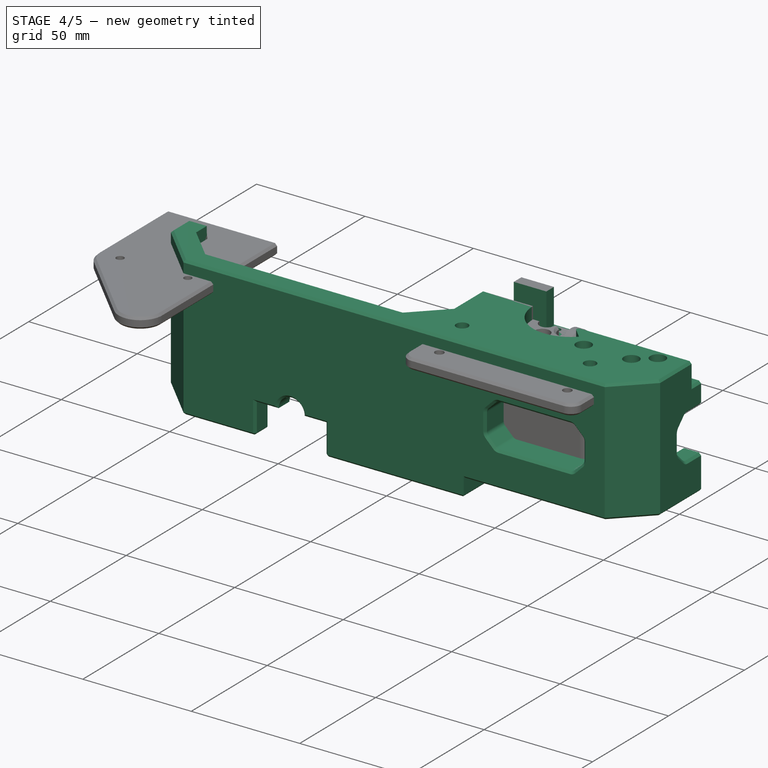
[diagram: stage 4 of 5 — iso view after this stage's code; geometry added in this stage tinted green]
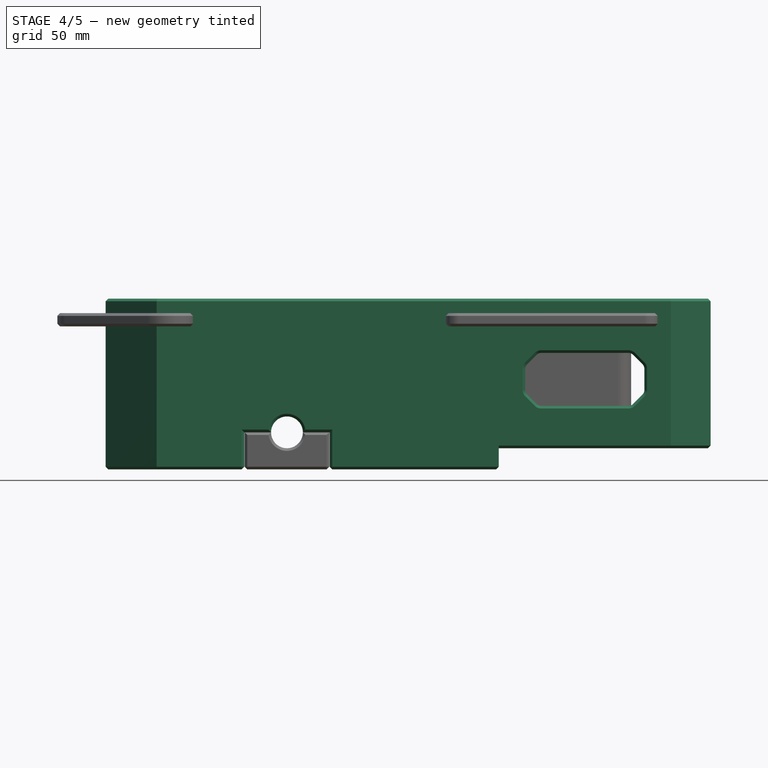
[diagram: stage 4 of 5 — front view after this stage's code; geometry added in this stage tinted green]
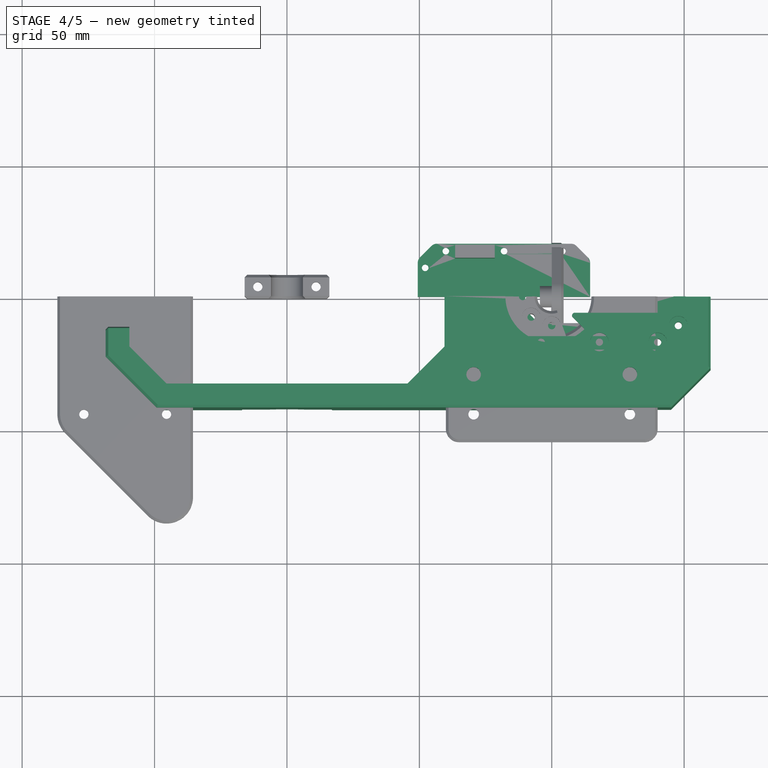
[diagram: stage 4 of 5 — top view after this stage's code; geometry added in this stage tinted green]
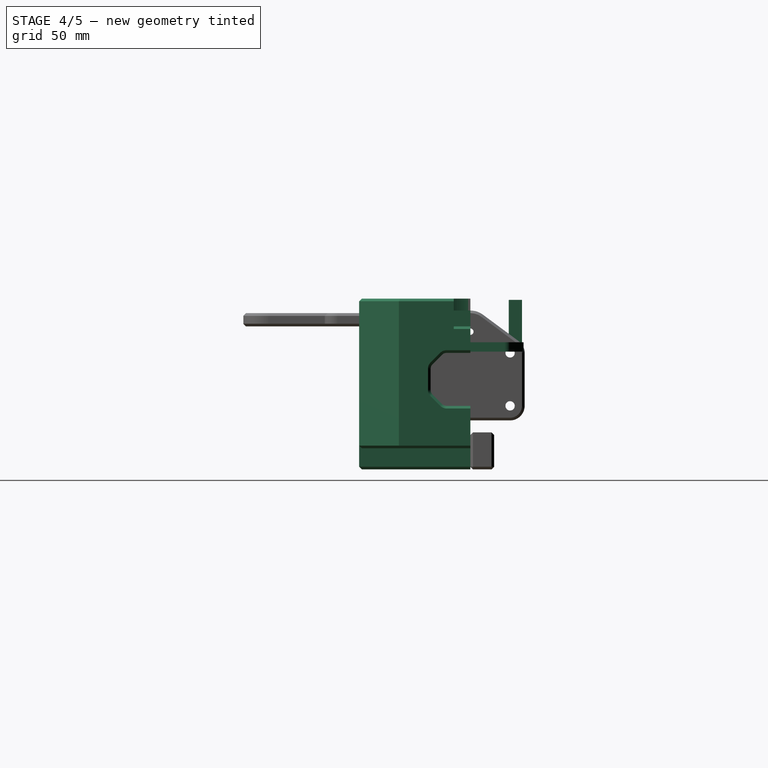
[diagram: stage 4 of 5 — right view after this stage's code; geometry added in this stage tinted green]
FEATURE [Sketcher::SketchObject] Sketch020
  FullyConstrained = true
  MapMode = 5
  Support = -> [XY_Plane011]
  expr: Constraints[10] = Spreadsheet009.faceplate_offset_y
  expr: Constraints[11] = Spreadsheet009.faceplate_offset_x
  expr: Constraints[19] = <<servo>>.frame_length_x
  expr: Constraints[22] = <<servo>>.frame_length_y / 2
  expr: Constraints[23] = <<servo>>.frame_screw_hole_outer_offset_x
  expr: Constraints[24] = <<servo>>.frame_screw_hole_outer_offset_y
  expr: Constraints[25] = <<servo>>.frame_screw_hole_inner_offset_x
  expr: Constraints[26] = <<servo>>.frame_screw_hole_inner_offset_y
  expr: Constraints[33] = <<servo>>.frame_screw_hole_to_screw_hole_distance
  expr: Constraints[34] = <<servo>>.frame_screw_hole_to_screw_hole_distance
  expr: Constraints[35] = <<servo>>.frame_screw_hole_radius
  expr: Constraints[36] = <<servo>>.frame_screw_hole_radius
  expr: Constraints[37] = <<servo>>.frame_screw_hole_radius
  expr: Constraints[38] = <<servo>>.frame_screw_hole_radius
  expr: Constraints[8] = <<servo>>.faceplate_length_x
  expr: Constraints[9] = <<servo>>.faceplate_length_y / 2
  sketch-geometry (14):
    g0: LineSegment StartX=-45 StartY=14.5 StartZ=0 EndX=14.5 EndY=14.5 EndZ=0
    g1: LineSegment StartX=14.5 StartY=14.5 StartZ=0 EndX=14.5 EndY=0 EndZ=0
    g2: LineSegment StartX=14.5 StartY=0 StartZ=0 EndX=-45 EndY=0 EndZ=0
    g3: LineSegment StartX=-45 StartY=0 StartZ=0 EndX=-45 EndY=14.5 EndZ=0
    g4: LineSegment StartX=14.5 StartY=0 StartZ=0 EndX=-50.6 EndY=0 EndZ=0
    g5: LineSegment StartX=-50.6 StartY=0 StartZ=0 EndX=-50.6 EndY=20.1 EndZ=0
    g6: LineSegment StartX=-50.6 StartY=20.1 StartZ=0 EndX=14.5 EndY=20.1 EndZ=0
    g7: LineSegment StartX=14.5 StartY=20.1 StartZ=0 EndX=14.5 EndY=0 EndZ=0
    g8: Circle CenterX=-18 CenterY=17.3 CenterZ=0 NormalX=0 NormalY=0 NormalZ=1 AngleXU=0 Radius=1.25
    g9: Circle CenterX=-40 CenterY=17.3 CenterZ=0 NormalX=0 NormalY=0 NormalZ=1 AngleXU=0 Radius=1.25
    g10: Circle CenterX=4 CenterY=17.3 CenterZ=0 NormalX=0 NormalY=0 NormalZ=1 AngleXU=0 Radius=1.25
    g11: Circle CenterX=-47.8 CenterY=11 CenterZ=0 NormalX=0 NormalY=0 NormalZ=1 AngleXU=0 Radius=1.25
    g12: LineSegment StartX=-40 StartY=17.3 StartZ=0 EndX=-18 EndY=17.3 EndZ=0
    g13: LineSegment StartX=-18 StartY=17.3 StartZ=0 EndX=4 EndY=17.3 EndZ=0
  constraints (39):
    c: Coincident(g0,g1)
    c: Coincident(g1,g2)
    c: Coincident(g2,g3)
    c: Coincident(g3,g0)
    c: Horizontal(g0)
    c: Horizontal(g2)
    c: Vertical(g1)
    c: Vertical(g3)
    c: Distance(g0) = 59.5
    c: Distance(g3) = 14.5
    c: DistanceY(g-1,g1) = 0
    c: DistanceX(g-1,g1) = 14.5
    c: Coincident(g1,g4)
    c: Horizontal(g4)
    c: Vertical(g5)
    c: Coincident(g5,g6)
    c: Horizontal(g6)
    c: Coincident(g6,g7)
    c: Coincident(g7,g4)
    c: Distance(g6) = 65.1
    c: Coincident(g4,g5)
    c: Vertical(g7)
    c: Distance(g5) = 20.1
    c: DistanceX(g8,g-1) = 18
    c: DistanceY(g-1,g8) = 17.3
    c: DistanceX(g11,g-1) = 47.8
    c: DistanceY(g-1,g11) = 11
    c: Coincident(g12,g9)
    c: Coincident(g12,g8)
    c: Horizontal(g12)
    c: Coincident(g13,g8)
    c: Coincident(g13,g10)
    c: Horizontal(g13)
    c: Distance(g12) = 22
    c: Distance(g13) = 22
    c: Radius(g11) = 1.25
    c: Radius(g9) = 1.25
    c: Radius(g8) = 1.25
    c: Radius(g10) = 1.25
FEATURE [PartDesign::Pad] Pad005
  Direction = (1,1,1)
  Length = 3.5
  Length2 = 100
  Profile = -> Sketch020
  Reversed = true
  Type = 0
  expr: Length = <<servo>>.frame_height
FEATURE [PartDesign::Chamfer] Chamfer001
  Angle = 45
  Base = -> Pad005 [Edge5,Edge8]
  BaseFeature = -> Pad005
  ChamferType = 0
  FlipDirection = false
  Size = 6
  Size2 = 1
  SupportTransform = false
  UseAllEdges = false
  expr: Size = Spreadsheet009.frame_corner_chamfer
FEATURE [PartDesign::Fillet] Fillet006
  Base = -> Chamfer001 [Edge2,Edge14,Edge25,Edge26]
  BaseFeature = -> Chamfer001
  Radius = 3
  SupportTransform = false
  UseAllEdges = false
  expr: Radius = <<servo>>.frame_corner_fillet
FEATURE [PartDesign::FeatureBase] Clone004
  BaseFeature = -> Body007
  Placement = pos=(0,0,-6) rot=(0,0,1;0rad)
FEATURE [PartDesign::Body] Body006  label="servo_main_body"
  Group = -> [Sketch019,Pad,Fillet007,Chamfer002]
  Origin = -> Origin010
  Tip = -> Chamfer002
FEATURE [Sketcher::SketchObject] Sketch021  label="connector_sketch"
  FullyConstrained = true
  MapMode = 5
  Placement = pos=(0,0,-6) rot=(0,0,1;0rad)
  Support = -> [Clone004]
  expr: Constraints[10] = <<servo>>.faceplate_length_x
  expr: Constraints[11] = <<servo>>.faceplate_length_y / 2
  expr: Constraints[8] = <<servo>>.faceplate_offset_x
  expr: Constraints[9] = <<servo>>.faceplate_offset_y
  sketch-geometry (8):
    g0: LineSegment StartX=14.5 StartY=14.5 StartZ=0 EndX=-45 EndY=14.5 EndZ=0
    g1: LineSegment StartX=-45 StartY=14.5 StartZ=0 EndX=-45 EndY=0 EndZ=0
    g2: LineSegment StartX=-45 StartY=0 StartZ=0 EndX=14.5 EndY=0 EndZ=0
    g3: LineSegment StartX=14.5 StartY=0 StartZ=0 EndX=14.5 EndY=14.5 EndZ=0
    g4: LineSegment StartX=-36.5 StartY=19.5 StartZ=0 EndX=-21.5 EndY=19.5 EndZ=0
    g5: LineSegment StartX=-21.5 StartY=19.5 StartZ=0 EndX=-21.5 EndY=14.5 EndZ=0
    g6: LineSegment StartX=-21.5 StartY=14.5 StartZ=0 EndX=-36.5 EndY=14.5 EndZ=0
    g7: LineSegment StartX=-36.5 StartY=14.5 StartZ=0 EndX=-36.5 EndY=19.5 EndZ=0
  constraints (24):
    c: Coincident(g0,g1)
    c: Coincident(g1,g2)
    c: Coincident(g2,g3)
    c: Coincident(g3,g0)
    c: Horizontal(g0)
    c: Horizontal(g2)
    c: Vertical(g1)
    c: Vertical(g3)
    c: DistanceX(g-1,g2) = 14.5
    c: DistanceY(g-1,g2) = 0
    c: Distance(g0) = 59.5
    c: Distance(g1) = 14.5
    c: Coincident(g4,g5)
    c: Coincident(g5,g6)
    c: Coincident(g6,g7)
    c: Coincident(g7,g4)
    c: Horizontal(g4)
    c: Horizontal(g6)
    c: Vertical(g5)
    c: Vertical(g7)
    c: PointOnObject(g5,g0)
    c: Distance(g7) = 5
    c: Distance(g4) = 15
    c: DistanceX(g0,g6) = 8.5
FEATURE [PartDesign::Pad] Pad006  label="connector_pad"
  BaseFeature = -> Clone004
  Direction = (1,1,1)
  Length = 16
  Length2 = 100
  Placement = pos=(0,0,-6) rot=(0,0,1;0rad)
  Profile = -> Sketch021
  Type = 0
FEATURE [Sketcher::SketchObject] Sketch051
  FullyConstrained = true
  MapMode = 5
  Support = -> [XY_Plane023]
  expr: Constraints[10] = <<fork>>.fork_base_length_x
  expr: Constraints[11] = (<<fork>>.fork_base_length_x + <<fork>>.fork_base_offset) / 2
  expr: Constraints[21] = <<fork>>.fork_bottom_wall_length_x
  expr: Constraints[9] = <<fork>>.fork_base_length_y / 2
  sketch-geometry (8):
    g0: LineSegment StartX=-40 StartY=42 StartZ=0 EndX=60 EndY=42 EndZ=0
    g1: LineSegment StartX=60 StartY=42 StartZ=0 EndX=60 EndY=0 EndZ=0
    g2: LineSegment StartX=60 StartY=0 StartZ=0 EndX=-40 EndY=0 EndZ=0
    g3: LineSegment StartX=-40 StartY=0 StartZ=0 EndX=-40 EndY=42 EndZ=0
    g4: LineSegment StartX=-20 StartY=42 StartZ=0 EndX=-20 EndY=0 EndZ=0
    g5: LineSegment StartX=-20 StartY=42 StartZ=0 EndX=60 EndY=42 EndZ=0
    g6: LineSegment StartX=-20 StartY=0 StartZ=0 EndX=60 EndY=0 EndZ=0
    g7: LineSegment StartX=60 StartY=0 StartZ=0 EndX=60 EndY=42 EndZ=0
  constraints (22):
    c: Coincident(g0,g1)
    c: Coincident(g1,g2)
    c: Coincident(g2,g3)
    c: Coincident(g3,g0)
    c: Horizontal(g0)
    c: Horizontal(g2)
    c: Vertical(g1)
    c: Vertical(g3)
    c: PointOnObject(g1,g-1)
    c: Distance(g3) = 42
    c: Distance(g0) = 100
    c: DistanceX(g-1,g1) = 60
    c: PointOnObject(g4,g0)
    c: PointOnObject(g4,g2)
    c: Vertical(g4)
    c: Coincident(g5,g4)
    c: Coincident(g5,g0)
    c: Coincident(g6,g4)
    c: Coincident(g6,g1)
    c: Coincident(g7,g6)
    c: Coincident(g7,g5)
    c: DistanceX(g2,g4) = 20
FEATURE [PartDesign::Pad] Pad017
  Direction = (1,1,1)
  Length = 8
  Length2 = 100
  Profile = -> Sketch051
  Reversed = true
  Type = 0
  expr: Length = <<fork>>.fork_bottom_wall_height
FEATURE [Sketcher::SketchObject] Sketch053
  FullyConstrained = true
  MapMode = 5
  Support = -> [Pad017]
  expr: Constraints[19] = <<servo>>.faceplate_length_y / 2 + <<fork>>.fork_to_servo_clearance
  expr: Constraints[20] = <<servo>>.faceplate_length_x + 2 * <<fork>>.fork_to_servo_clearance
  expr: Constraints[4] = <<servo>>.frame_length_x
  expr: Constraints[8] = <<servo>>.frame_length_y / 2
  expr: Constraints[9] = <<servo>>.faceplate_offset_x
  sketch-geometry (7):
    g0: LineSegment StartX=-14.5 StartY=20.1 StartZ=0 EndX=50.6 EndY=20.1 EndZ=0
    g1: LineSegment StartX=50.6 StartY=20.1 StartZ=0 EndX=50.6 EndY=0 EndZ=0
    g2: LineSegment StartX=-14.5 StartY=20.1 StartZ=0 EndX=-14.5 EndY=0 EndZ=0
    g3: LineSegment StartX=50.6 StartY=0 StartZ=0 EndX=46 EndY=0 EndZ=0
    g4: LineSegment StartX=46 StartY=0 StartZ=0 EndX=46 EndY=15 EndZ=0
    g5: LineSegment StartX=46 StartY=15 StartZ=0 EndX=-14.5 EndY=15 EndZ=0
    g6: LineSegment StartX=-14.5 StartY=15 StartZ=0 EndX=-14.5 EndY=20.1 EndZ=0
  constraints (21):
    c: Horizontal(g0)
    c: Coincident(g1,g0)
    c: PointOnObject(g1,g-1)
    c: Vertical(g1)
    c: Distance(g0) = 65.1
    c: Coincident(g2,g0)
    c: PointOnObject(g2,g-1)
    c: Vertical(g2)
    c: Distance(g2) = 20.1
    c: DistanceX(g2,g-1) = 14.5
    c: Coincident(g3,g1)
    c: PointOnObject(g3,g-1)
    c: Coincident(g4,g3)
    c: Vertical(g4)
    c: Coincident(g5,g4)
    c: PointOnObject(g5,g2)
    c: Horizontal(g5)
    c: Coincident(g6,g5)
    c: Coincident(g6,g0)
    c: Distance(g4) = 15
    c: Distance(g5) = 60.5
FEATURE [PartDesign::Pad] Pad018
  BaseFeature = -> Pad017
  Direction = (1,1,1)
  Length = 6
  Length2 = 100
  Profile = -> Sketch053
  Type = 0
  expr: Length = <<servo>>.faceplate_height
FEATURE [Sketcher::SketchObject] Sketch054
  FullyConstrained = true
  MapMode = 5
  Support = -> [Pad018]
  sketch-geometry (4):
    g0: LineSegment StartX=-10 StartY=0 StartZ=0 EndX=30 EndY=0 EndZ=0
    g1: LineSegment StartX=30 StartY=0 StartZ=0 EndX=30 EndY=10 EndZ=0
    g2: LineSegment StartX=30 StartY=10 StartZ=0 EndX=-10 EndY=10 EndZ=0
    g3: LineSegment StartX=-10 StartY=10 StartZ=0 EndX=-10 EndY=0 EndZ=0
  constraints (12):
    c: Coincident(g0,g1)
    c: Coincident(g1,g2)
    c: Coincident(g2,g3)
    c: Coincident(g3,g0)
    c: Horizontal(g0)
    c: Horizontal(g2)
    c: Vertical(g1)
    c: Vertical(g3)
    c: PointOnObject(g0,g-1)
    c: Distance(g3) = 10
    c: Distance(g2) = 40
    c: DistanceX(g0,g-1) = 10
FEATURE [PartDesign::Pocket] Pocket021
  BaseFeature = -> Pad018
  Direction = (1,1,1)
  Length = 5
  Length2 = 100
  Profile = -> Sketch054
  Type = 2
FEATURE [Sketcher::SketchObject] Sketch055
  FullyConstrained = true
  MapMode = 5
  Placement = pos=(0,0,-8) rot=(1,0,0;3.14159rad)
  Support = -> [Pocket021]
  expr: Constraints[10] = <<fork>>.fork_base_length_y / 2
  expr: Constraints[11] = (<<fork>>.fork_base_length_x + <<fork>>.fork_base_offset) / 2
  expr: Constraints[27] = <<fork>>.fork_servo_clamp_screw_thread_radius
  expr: Constraints[9] = <<fork>>.fork_base_length_x - <<fork>>.fork_bottom_wall_length_x
  sketch-geometry (10):
    g0: LineSegment StartX=-20 StartY=0 StartZ=0 EndX=60 EndY=0 EndZ=0
    g1: LineSegment StartX=60 StartY=0 StartZ=0 EndX=60 EndY=-42 EndZ=0
    g2: LineSegment StartX=60 StartY=-42 StartZ=0 EndX=-20 EndY=-42 EndZ=0
    g3: LineSegment StartX=-20 StartY=-42 StartZ=0 EndX=-20 EndY=0 EndZ=0
    g4: Circle CenterX=-5 CenterY=-27 CenterZ=0 NormalX=0 NormalY=0 NormalZ=1 AngleXU=0 Radius=1.75
    g5: Circle CenterX=45 CenterY=-27 CenterZ=0 NormalX=0 NormalY=0 NormalZ=1 AngleXU=0 Radius=1.75
    g6: LineSegment StartX=-20 StartY=-42 StartZ=0 EndX=-20 EndY=-27 EndZ=0
    g7: LineSegment StartX=-20 StartY=-27 StartZ=0 EndX=-5 EndY=-27 EndZ=0
    g8: LineSegment StartX=60 StartY=-42 StartZ=0 EndX=60 EndY=-27 EndZ=0
    g9: LineSegment StartX=60 StartY=-27 StartZ=0 EndX=45 EndY=-27 EndZ=0
  constraints (28):
    c: Coincident(g0,g1)
    c: Coincident(g1,g2)
    c: Coincident(g2,g3)
    c: Coincident(g3,g0)
    c: Horizontal(g0)
    c: Horizontal(g2)
    c: Vertical(g1)
    c: Vertical(g3)
    c: PointOnObject(g0,g-1)
    c: Distance(g2) = 80
    c: Distance(g3) = 42
    c: DistanceX(g-1,g0) = 60
    c: Coincident(g6,g2)
    c: PointOnObject(g6,g3)
    c: Coincident(g7,g6)
    c: Coincident(g7,g4)
    c: Horizontal(g7)
    c: Coincident(g8,g1)
    c: Vertical(g8)
    c: Coincident(g9,g8)
    c: Coincident(g9,g5)
    c: Horizontal(g9)
    c: Equal(g7,g9)
    c: Equal(g6,g8)
    c: Distance(g7) = 15
    c: Distance(g6) = 15
    c: Equal(g4,g5)
    c: Radius(g4) = 1.75
FEATURE [Sketcher::SketchObject] Sketch056
  FullyConstrained = true
  MapMode = 5
  Placement = pos=(0,0,-8) rot=(1,0,0;3.14159rad)
  Support = -> [Pocket021]
  expr: Constraints[10] = <<fork>>.fork_base_length_x - <<fork>>.fork_bottom_wall_length_x
  expr: Constraints[11] = <<fork>>.fork_base_length_y / 2
  expr: Constraints[27] = <<fork>>.fork_servo_clamp_screw_head_radius
  expr: Constraints[9] = (<<fork>>.fork_base_length_x + <<fork>>.fork_base_offset) / 2
  sketch-geometry (10):
    g0: LineSegment StartX=-20 StartY=0 StartZ=0 EndX=60 EndY=0 EndZ=0
    g1: LineSegment StartX=60 StartY=0 StartZ=0 EndX=60 EndY=-42 EndZ=0
    g2: LineSegment StartX=60 StartY=-42 StartZ=0 EndX=-20 EndY=-42 EndZ=0
    g3: LineSegment StartX=-20 StartY=-42 StartZ=0 EndX=-20 EndY=0 EndZ=0
    g4: LineSegment StartX=-20 StartY=-42 StartZ=0 EndX=-20 EndY=-27 EndZ=0
    g5: LineSegment StartX=-20 StartY=-27 StartZ=0 EndX=-5 EndY=-27 EndZ=0
    g6: LineSegment StartX=60 StartY=-42 StartZ=0 EndX=60 EndY=-27 EndZ=0
    g7: LineSegment StartX=60 StartY=-27 StartZ=0 EndX=45 EndY=-27 EndZ=0
    g8: Circle CenterX=-5 CenterY=-27 CenterZ=0 NormalX=0 NormalY=0 NormalZ=1 AngleXU=0 Radius=3.5
    g9: Circle CenterX=45 CenterY=-27 CenterZ=0 NormalX=0 NormalY=0 NormalZ=1 AngleXU=0 Radius=3.5
  constraints (28):
    c: Coincident(g0,g1)
    c: Coincident(g1,g2)
    c: Coincident(g2,g3)
    c: Coincident(g3,g0)
    c: Horizontal(g0)
    c: Horizontal(g2)
    c: Vertical(g1)
    c: Vertical(g3)
    c: PointOnObject(g0,g-1)
    c: DistanceX(g-1,g0) = 60
    c: Distance(g2) = 80
    c: Distance(g3) = 42
    c: Coincident(g4,g2)
    c: PointOnObject(g4,g3)
    c: Coincident(g5,g4)
    c: Horizontal(g5)
    c: Coincident(g6,g1)
    c: PointOnObject(g6,g1)
    c: Coincident(g7,g6)
    c: Horizontal(g7)
    c: Equal(g4,g6)
    c: Distance(g4) = 15
    c: Equal(g5,g7)
    c: Distance(g5) = 15
    c: Coincident(g8,g5)
    c: Coincident(g9,g7)
    c: Equal(g8,g9)
    c: Radius(g8) = 3.5
FEATURE [PartDesign::Pocket] Pocket022
  BaseFeature = -> Pocket021
  Direction = (1,1,1)
  Length = 5
  Length2 = 100
  Profile = -> Sketch055
  Type = 1
FEATURE [PartDesign::Pocket] Pocket023
  BaseFeature = -> Pocket022
  Direction = (1,1,1)
  Length = 3
  Length2 = 100
  Profile = -> Sketch056
  Type = 0
  expr: Length = <<fork>>.fork_servo_clamp_screw_head_pocket_depth
FEATURE [Sketcher::SketchObject] Sketch057
  FullyConstrained = true
  MapMode = 5
  Placement = pos=(0,0,-8) rot=(1,0,0;3.14159rad)
  Support = -> [Pocket023]
  expr: Constraints[10] = <<servo>>.frame_screw_hole_inner_offset_x
  expr: Constraints[11] = <<servo>>.frame_screw_hole_inner_offset_y
  expr: Constraints[12] = <<servo>>.frame_screw_hole_outer_offset_x
  expr: Constraints[13] = <<servo>>.frame_screw_hole_outer_offset_y
  expr: Constraints[14] = <<servo>>.frame_screw_hole_to_screw_hole_distance
  expr: Constraints[20] = <<fork>>.fork_servo_mounting_screw_thread_radius
  expr: Constraints[23] = <<servo>>.frame_screw_hole_to_screw_hole_distance
  sketch-geometry (10):
    g0: LineSegment StartX=0 StartY=0 StartZ=0 EndX=47.8 EndY=0 EndZ=0
    g1: LineSegment StartX=47.8 StartY=0 StartZ=0 EndX=47.8 EndY=-11 EndZ=0
    g2: LineSegment StartX=0 StartY=0 StartZ=0 EndX=0 EndY=-17.3 EndZ=0
    g3: LineSegment StartX=0 StartY=-17.3 StartZ=0 EndX=18 EndY=-17.3 EndZ=0
    g4: LineSegment StartX=18 StartY=-17.3 StartZ=0 EndX=40 EndY=-17.3 EndZ=0
    g5: Circle CenterX=18 CenterY=-17.3 CenterZ=0 NormalX=0 NormalY=0 NormalZ=1 AngleXU=0 Radius=1.375
    g6: Circle CenterX=40 CenterY=-17.3 CenterZ=0 NormalX=0 NormalY=0 NormalZ=1 AngleXU=0 Radius=1.375
    g7: Circle CenterX=47.8 CenterY=-11 CenterZ=0 NormalX=0 NormalY=0 NormalZ=1 AngleXU=0 Radius=1.375
    g8: LineSegment StartX=18 StartY=-17.3 StartZ=0 EndX=-4 EndY=-17.3 EndZ=0
    g9: Circle CenterX=-4 CenterY=-17.3 CenterZ=0 NormalX=0 NormalY=0 NormalZ=1 AngleXU=0 Radius=1.375
  constraints (26):
    c: Coincident(g0,g-1)
    c: PointOnObject(g0,g-1)
    c: Coincident(g1,g0)
    c: Vertical(g1)
    c: Coincident(g2,g-1)
    c: Vertical(g2)
    c: Coincident(g3,g2)
    c: Horizontal(g3)
    c: Coincident(g4,g3)
    c: Horizontal(g4)
    c: Distance(g0) = 47.8
    c: Distance(g1) = 11
    c: Distance(g3) = 18
    c: Distance(g2) = 17.3
    c: Distance(g4) = 22
    c: Coincident(g5,g3)
    c: Coincident(g6,g4)
    c: Coincident(g7,g1)
    c: Equal(g5,g6)
    c: Equal(g6,g7)
    c: Radius(g5) = 1.375
    c: Coincident(g8,g5)
    c: Horizontal(g8)
    c: Distance(g8) = 22
    c: Coincident(g9,g8)
    c: Equal(g9,g5)
FEATURE [Sketcher::SketchObject] Sketch058
  FullyConstrained = true
  MapMode = 5
  Placement = pos=(0,0,-8) rot=(1,0,0;3.14159rad)
  Support = -> [Pocket023]
  expr: Constraints[10] = <<servo>>.frame_screw_hole_inner_offset_y
  expr: Constraints[11] = <<servo>>.frame_screw_hole_outer_offset_x
  expr: Constraints[12] = <<servo>>.frame_screw_hole_outer_offset_y
  expr: Constraints[13] = <<servo>>.frame_screw_hole_to_screw_hole_distance
  expr: Constraints[16] = <<servo>>.frame_screw_hole_to_screw_hole_distance
  expr: Constraints[25] = <<fork>>.fork_servo_mounting_screw_head_radius
  expr: Constraints[9] = <<servo>>.frame_screw_hole_inner_offset_x
  sketch-geometry (10):
    g0: LineSegment StartX=0 StartY=0 StartZ=0 EndX=47.8 EndY=0 EndZ=0
    g1: LineSegment StartX=47.8 StartY=0 StartZ=0 EndX=47.8 EndY=-11 EndZ=0
    g2: LineSegment StartX=0 StartY=0 StartZ=0 EndX=0 EndY=-17.3 EndZ=0
    g3: LineSegment StartX=0 StartY=-17.3 StartZ=0 EndX=18 EndY=-17.3 EndZ=0
    g4: LineSegment StartX=18 StartY=-17.3 StartZ=0 EndX=40 EndY=-17.3 EndZ=0
    g5: LineSegment StartX=18 StartY=-17.3 StartZ=0 EndX=-4 EndY=-17.3 EndZ=0
    g6: Circle CenterX=-4 CenterY=-17.3 CenterZ=0 NormalX=0 NormalY=0 NormalZ=1 AngleXU=0 Radius=3.5
    g7: Circle CenterX=18 CenterY=-17.3 CenterZ=0 NormalX=0 NormalY=0 NormalZ=1 AngleXU=0 Radius=3.5
    g8: Circle CenterX=40 CenterY=-17.3 CenterZ=0 NormalX=0 NormalY=0 NormalZ=1 AngleXU=0 Radius=3.5
    g9: Circle CenterX=47.8 CenterY=-11 CenterZ=0 NormalX=0 NormalY=0 NormalZ=1 AngleXU=0 Radius=3.5
  constraints (26):
    c: Coincident(g0,g-1)
    c: PointOnObject(g0,g-1)
    c: Coincident(g1,g0)
    c: Vertical(g1)
    c: PointOnObject(g2,g-2)
    c: Coincident(g3,g2)
    c: Horizontal(g3)
    c: Coincident(g4,g3)
    c: Horizontal(g4)
    c: Distance(g0) = 47.8
    c: Distance(g1) = 11
    c: Distance(g3) = 18
    c: Distance(g2) = 17.3
    c: Distance(g4) = 22
    c: Coincident(g5,g3)
    c: Horizontal(g5)
    c: Distance(g5) = 22
    c: Coincident(g2,g-1)
    c: Coincident(g6,g5)
    c: Coincident(g7,g3)
    c: Coincident(g8,g4)
    c: Coincident(g9,g1)
    c: Equal(g6,g7)
    c: Equal(g7,g8)
    c: Equal(g8,g9)
    c: Radius(g6) = 3.5
FEATURE [PartDesign::Pocket] Pocket024
  BaseFeature = -> Pocket023
  Direction = (1,1,1)
  Length = 5
  Length2 = 100
  Profile = -> Sketch057
  Type = 1
FEATURE [PartDesign::Pocket] Pocket025
  BaseFeature = -> Pocket024
  Direction = (1,1,1)
  Length = 5
  Length2 = 100
  Profile = -> Sketch058
  Type = 0
  expr: Length = <<fork>>.fork_servo_mounting_screw_head_pocket_depth
FEATURE [PartDesign::Chamfer] Chamfer007
  Angle = 45
  Base = -> Pocket025 [Edge42,Edge36]
  BaseFeature = -> Pocket025
  ChamferType = 0
  FlipDirection = false
  Size = 5
  Size2 = 1
  SupportTransform = false
  UseAllEdges = false
FEATURE [PartDesign::Chamfer] Chamfer008
  Angle = 45
  Base = -> Chamfer007 [Edge32]
  BaseFeature = -> Chamfer007
  ChamferType = 0
  FlipDirection = false
  Size = 15
  Size2 = 1
  SupportTransform = false
  UseAllEdges = false
FEATURE [PartDesign::Fillet] Fillet009
  Base = -> Chamfer008 [Edge20,Edge23]
  BaseFeature = -> Chamfer008
  Radius = 7.5
  SupportTransform = false
  UseAllEdges = false
FEATURE [PartDesign::Fillet] Fillet010
  Base = -> Fillet009 [Edge35,Edge44,Edge39,Edge49]
  BaseFeature = -> Fillet009
  Radius = 2.5
  SupportTransform = false
  UseAllEdges = false
FEATURE [PartDesign::Chamfer] Chamfer009
  Angle = 45
  Base = -> Fillet010 [Edge40,Edge42,Edge36]
  BaseFeature = -> Fillet010
  ChamferType = 0
  FlipDirection = false
  Size = 1
  Size2 = 1
  SupportTransform = false
  UseAllEdges = false
FEATURE [PartDesign::Chamfer] Chamfer020
  Angle = 45
  Base = -> Pocket011 [Edge9,Edge8,Edge7,Edge6,Edge5,Edge4,Edge3,Edge23,Edge29,Edge24,Edge44,Edge45,Edge42,Edge36,Edge57,Edge58,Edge59,Edge40,Edge33,Edge31]
  BaseFeature = -> Pocket011
  ChamferType = 0
  FlipDirection = false
  Size = 1
  Size2 = 1
  SupportTransform = false
  UseAllEdges = false
FEATURE [PartDesign::Chamfer] Chamfer021
  Angle = 45
  Base = -> Chamfer020 [Edge3,Edge12,Edge26,Edge48]
  BaseFeature = -> Chamfer020
  ChamferType = 0
  FlipDirection = false
  Size = 1
  Size2 = 1
  SupportTransform = false
  UseAllEdges = false
FEATURE [PartDesign::Chamfer] Chamfer023
  Angle = 45
  Base = -> Chamfer009 [Edge15]
  BaseFeature = -> Chamfer009
  ChamferType = 0
  FlipDirection = false
  Size = 1
  Size2 = 1
  SupportTransform = false
  UseAllEdges = false
FEATURE [PartDesign::Body] Body014
  Group = -> [Sketch051,Pad017,Sketch053,Pad018,Sketch054,Pocket021,Sketch055,Sketch056,Pocket022,Pocket023,Sketch057,Sketch058,Pocket024,Pocket025,Chamfer007,Chamfer008,Fillet009,Fillet010,Chamfer009,Chamfer023]
  Origin = -> Origin023
  Tip = -> Chamfer023
FEATURE [PartDesign::FeatureBase] Clone007
  BaseFeature = -> Body014
FEATURE [Part::Mirroring] Part__Mirroring006  label="Clone007 (Mirror #5)"
  Base = (0,0,0)
  Normal = (0,1,0)
  Source = -> Clone007
FEATURE [PartDesign::Body] Body010  label="fork_servo_body"
  Group = -> [Sketch040,Pad013,Sketch041,Sketch042,Pad014,Pocket013,Sketch043,Pocket014,Sketch044,Pocket015,Sketch045,Pocket016,Sketch046,Pad015,Sketch047,Pocket018,Pocket017,Sketch048,Pocket019,Sketch049,Pocket020,Sketch050,Pad016,Sketch059,Pocket026,Sketch060,Sketch061,Pocket027,Pocket028,Chamfer010,Fillet011,Chamfer011,Fillet012,Chamfer012,Chamfer019,Sketch062,Pocket029,Chamfer022,Chamfer025,Chamfer026,+3 more]
  Origin = -> Origin016
  Tip = -> Chamfer027
FEATURE [Part::MultiFuse] Fusion001
  Shapes = -> [Body010,Body011]
FEATURE [PartDesign::FeatureBase] Clone009
  BaseFeature = -> Fusion001
FEATURE [Part::Mirroring] Part__Mirroring008  label="Clone009 (Mirror #7)"
  Base = (0,0,0)
  Normal = (0,1,0)
  Source = -> Clone009
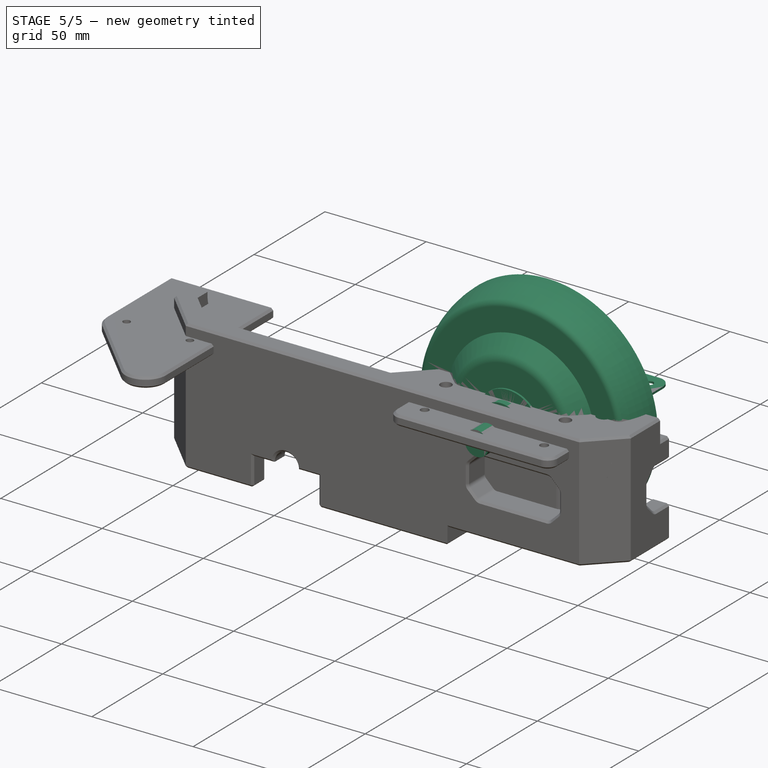
[diagram: stage 5 of 5 — iso view after this stage's code; geometry added in this stage tinted green]
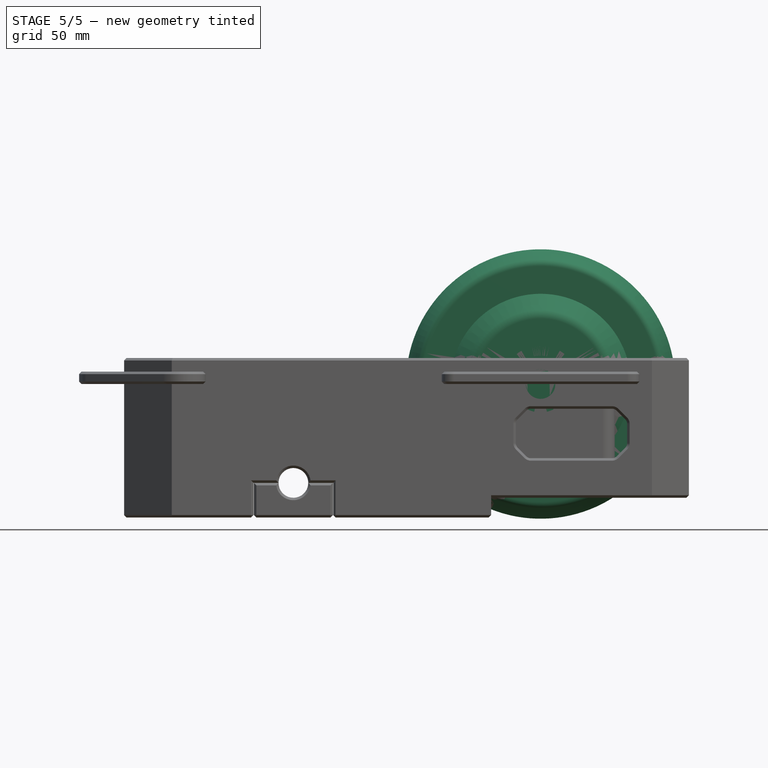
[diagram: stage 5 of 5 — front view after this stage's code; geometry added in this stage tinted green]
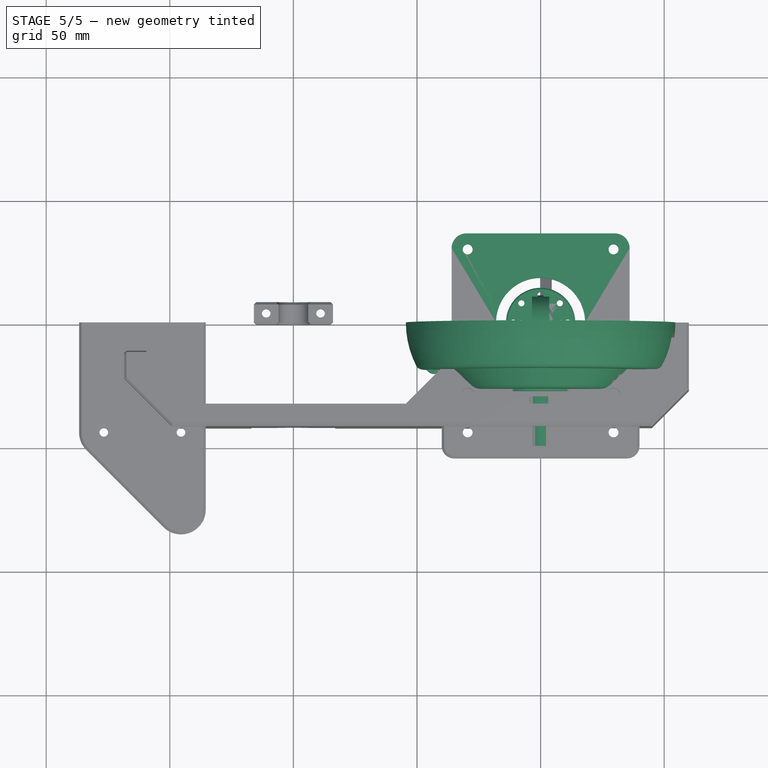
[diagram: stage 5 of 5 — top view after this stage's code; geometry added in this stage tinted green]
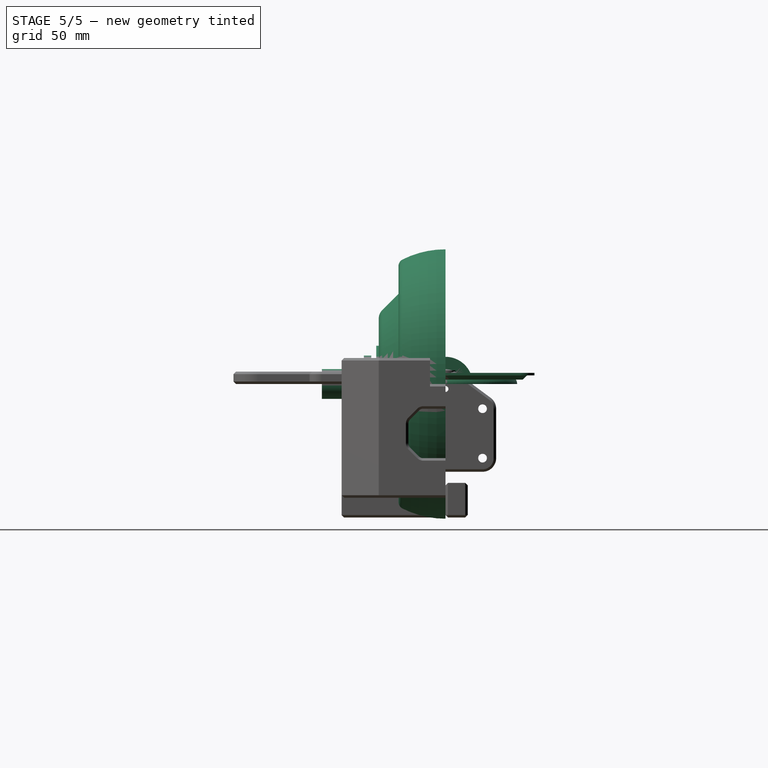
[diagram: stage 5 of 5 — right view after this stage's code; geometry added in this stage tinted green]
FEATURE [Spreadsheet::Sheet] Spreadsheet001  label="wheel"
  cells = A1='position parameters; A2='position_x; B2(position_x)==<<position>>.wheel_position_x; A3='position_y; B3(position_y)==<<position>>.wheel_position_y; A4='position_z; B4(position_z)==<<position>>.wheel_position_z; A5='hub parameters; A6='hub_width; B6(hub_width)=60; A7='hub_width_with_washer; B7(hub_width_with_washer)==hub_width + washer_thickness * 2; A8='tire parameters; A9='tire_diameter; B9(tire_diameter)=109; A10='tire_radius; B10(tire_radius)==tire_diameter / 2; A11='tire_width; B11(tire_width)=38; A12='axis_parameters; A13='axis_diameter; B13(axis_diameter)=12; A14='axis_radius; B14(axis_radius)==axis_diameter / 2; A15='axis_width; B15(axis_width)=100; A16='washer parameters; A17='washer_outer_diameter; B17(washer_outer_diameter)=23; A18='washer_outer_radius; B18(washer_outer_radius)==washer_outer_diameter / 2; A19='washer_inner_diameter; B19(washer_inner_diameter)=12.5; A20='washer_inner_radius; B20(washer_inner_radius)==washer_inner_diameter / 2; A21='washer_thickness; B21(washer_thickness)=3; A22='washer_nose_wideness; B22(washer_nose_wideness)=10.5; A23='washer_nose_lowness; B23(washer_nose_lowness)=4.5; A24='washer_nose_height; B24(washer_nose_height)==28 - washer_outer_diameter / 2
FEATURE [Spreadsheet::Sheet] Spreadsheet  label="bearing"
  cells = A1='position parameters; A2='position_x; B2(position_x)==<<position>>.bearing_position_x; A3='position_y; B3(position_y)==<<position>>.bearing_position_y; A4='position_z; B4(position_z)==<<position>>.bearing_position_z; A5='general parameters; A6='bearing_outer_diameter; B6(bearing_outer_diameter)=22; A7='bearing_outer_radius; B7(bearing_outer_radius)==bearing_outer_diameter / 2; A8='bearing_inner_diameter; B8(bearing_inner_diameter)=8; A9='bearing_inner_radius; B9(bearing_inner_radius)==bearing_inner_diameter / 2; A10='bearing_height; B10(bearing_height)=7
FEATURE [Spreadsheet::Sheet] Spreadsheet003  label="fork"
  cells = A1='position parameters; A2='position_x; B2(position_x)==<<position>>.fork_position_x; D2='wheel_position_x; E2(wheel_position_x)==<<position>>.wheel_position_x; A3='position_y; B3(position_y)==<<position>>.fork_position_y; D3='wheel_position_y; E3(wheel_position_y)==<<position>>.wheel_position_y; A4='position_z; B4(position_z)==<<position>>.fork_position_z; D4='wheel_position_z; E4(wheel_position_z)==<<position>>.wheel_position_z; A5='general parameters; D7='servo_face_plate_to_hinge_distance; E7(servo_face_plate_to_hinge_distance)==<<position>>.servo_position_z + <<position>>.hinge_position_z - <<hinge>>.hinge_total_height / 2; A8='fork_base; A9='fork_base_length_x; B9(fork_base_length_x)=100; D9='wheel_body_position_x; E9(wheel_body_position_x)=0; A10='fork_base_length_y; B10(fork_base_length_y)=84; D10='wheel_body_position_y; E10(wheel_body_position_y)=0; A11='fork_base_height; B11(fork_base_height)==<<servo>>.total_height; D11='wheel_body_position_z; E11(wheel_body_position_z)==servo_face_plate_to_hinge_distance; A12='fork_base_offset; B12(fork_base_offset)=20; B14==-<<wheel>>.position_z + <<wheel>>.axis_radius + fork_wheel_clamp_height; D14='bearing_center_offset; E14(bearing_center_offset)==abs(<<hinge>>.hinge_total_height - bearing_outer_radius); D16='bearing_outer_radius; E16(bearing_outer_radius)==<<bearing>>.bearing_outer_radius; A17='fork_wheel_clearance; B17(fork_wheel_clearance)=5; D17='bearing_outer_diameter; E17(bearing_outer_diameter)==<<bearing>>.bearing_outer_diameter; A18='fork_wheel_frame_x; B18(fork_wheel_frame_x)==<<wheel>>.tire_diameter + 2 * fork_wheel_clearance; D18='bearing_inner_radius; E18(bearing_inner_radius)==<<bearing>>.bearing_inner_radius; A19='fork_wheel_frame_y; B19(fork_wheel_frame_y)==<<wheel>>.hub_width_with_washer; D19='bearing_inner_diameter; E19(bearing_inner_diameter)==<<bearing>>.bearing_inner_diameter; A20='fork_wheel_frame_thickness; B20(fork_wheel_frame_thickness)=9; A21='fork_wheel_frame_height; B21(fork_wheel_frame_height)==-<<wheel>>.position_z + <<wheel>>.axis_diameter / 2 + fork_wheel_clamp_height + servo_face_plate_to_hinge_distance; D21='fork_bearing_clearance; E21(fork_bearing_clearance)=1; D23='fork_bearing_clamp_hole_diameter; E23(fork_bearing_clamp_hole_diameter)==bearing_inner_diameter; D24='fork_bearing_clamp_hole_radius; E24(fork_bearing_clamp_hole_radius)==bearing_inner_radius; A25='fork_wheel_clamp_x; B25(fork_wheel_clamp_x)==<<wheel>>.axis_diameter + 20; D25='fork_bearing_clamp_hole_distance; E25(fork_bearing_clamp_hole_distance)=20; A26='fork_wheel_clamp_y; B26(fork_wheel_clamp_y)==fork_wheel_frame_thickness; A27='fork_wheel_clamp_height; B27(fork_wheel_clamp_height)=8; D27='fork_bearing_clamp_injection_thread_diameter; E27(fork_bearing_clamp_injection_thread_diameter)=4.5; D28='fork_bearing_clamp_injection_thread_radius; E28(fork_bearing_clamp_injection_thread_radius)==fork_bearing_clamp_injection_thread_diameter / 2; A29='fork_wheel_clap_clearance; B29(fork_wheel_clap_clearance)=0.1; D29='fork_bearing_clamp_injection_thread_pocket_depth; E29(fork_bearing_clamp_injection_thread_pocket_depth)=6; D30='fork_bearing_clamp_screw_thread_diameter; E30(fork_bearing_clamp_screw_thread_diameter)=3.5; A31='fork_wheel_clamp_screw_thread_diameter; B31(fork_wheel_clamp_screw_thread_diameter)=3.5; D31='fork_bearing_clamp_screw_thread_radius; E31(fork_bearing_clamp_screw_thread_radius)==fork_bearing_clamp_screw_thread_diameter / 2; A32='fork_wheel_clamp_screw_thread_radius; B32(fork_wheel_clamp_screw_thread_radius)==fork_wheel_clamp_screw_thread_diameter / 2; A33='fork_wheel_clamp_screw_head_diameter; B33(fork_wheel_clamp_screw_head_diameter)=7; D33='fork_bearing_clamp_screw_head_diameter; E33(fork_bearing_clamp_screw_head_diameter)=7; A34='fork_wheel_clamp_screw_head_radius; B34(fork_wheel_clamp_screw_head_radius)==fork_wheel_clamp_screw_head_diameter / 2; D34='fork_bearing_clamp_screw_head_radius; E34(fork_bearing_clamp_screw_head_radius)==fork_bearing_clamp_screw_head_diameter / 2; A35='fork_wheel_clamp_screw_head_pocket_depth; B35(fork_wheel_clamp_screw_head_pocket_depth)=5; D36='fork_bearing_clamp_outer_diameter; E36(fork_bearing_clamp_outer_diameter)=16; A37='fork_wheel_clamp_injection_thread_diameter; B37(fork_wheel_clamp_injection_thread_diameter)=4.5; D37='fork_bearing_clamp_outer_radius; E37(fork_bearing_clamp_outer_radius)==fork_bearing_clamp_outer_diameter / 2; A38='fork_wheel_clamp_injection_thread_radius; B38(fork_wheel_clamp_injection_thread_radius)==fork_wheel_clamp_injection_thread_diameter / 2; A39='fork_wheel_clamp_injection_thread_pocket_depth; B39(fork_wheel_clamp_injection_thread_pocket_depth)=10; D40='fork_bearing_clamp_injection_thread_offset_y; E40(fork_bearing_clamp_injection_thread_offset_y)=15; A41='fork_to_adapter_clearance; B41(fork_to_adapter_clearance)=1; D41='fork_bearing_clamp_injection_thread_offset_z; E41(fork_bearing_clamp_injection_thread_offset_z)=10; A42='adapter_steam_diameter; B42(adapter_steam_diameter)==<<adapter>>.adapter_stem_outer_diameter + fork_to_adapter_clearance; A43='adapter_steam_radius; B43(adapter_steam_radius)==adapter_steam_diameter / 2; D43='fork_bearing_clamp_thickness; E43(fork_bearing_clamp_thickness)=4.5; D44='fork_bearing_enforcer_screw_diameter; E44(fork_bearing_enforcer_screw_diameter)=2.4; A45='fork_cable_canal_size; B45(fork_cable_canal_size)=12.5; D45='fork_bearing_enforcer_screw_radius; E45(fork_bearing_enforcer_screw_radius)==fork_bearing_enforcer_screw_diameter / 2; A47='fork_to_servo_clearance; B47(fork_to_servo_clearance)=0.5; A49='fork_servo_mounting_screw_thread_diameter; B49(fork_servo_mounting_screw_thread_diameter)=2.75; D49='fork_hinge_injection_thread_diameter; E49(fork_hinge_injection_thread_diameter)=5.5; A50='fork_servo_mounting_screw_thread_radius; B50(fork_servo_mounting_screw_thread_radius)==fork_servo_mounting_screw_thread_diameter / 2; D50='fork_hinge_injection_thread_radius; E50(fork_hinge_injection_thread_radius)==fork_hinge_injection_thread_diameter / 2; D51='fork_hinge_injection_thread_pocket_depth; E51(fork_hinge_injection_thread_pocket_depth)=20; A52='fork_servo_mounting_screw_head_diameter; B52(fork_servo_mounting_screw_head_diameter)=7; A53='fork_servo_mounting_screw_head_radius; B53(fork_servo_mounting_screw_head_radius)==fork_servo_mounting_screw_head_diameter / 2; A54='fork_servo_mounting_screw_head_pocket_depth; B54(fork_servo_mounting_screw_head_pocket_depth)=5; A56='fork_bottom_wall_length_x; B56(fork_bottom_wall_length_x)=20; A57='fork_bottom_wall_length_y; B57(fork_bottom_wall_length_y)==fork_base_length_y; A58='fork_bottom_wall_height; B58(fork_bottom_wall_height)=8; C58='todo: calcualte; A60='fork_servo_clamp_screw_thread_diameter; B60(fork_servo_clamp_screw_thread_diameter)=3.5; A61='fork_servo_clamp_screw_thread_radius; B61(fork_servo_clamp_screw_thread_radius)==fork_servo_clamp_screw_thread_diameter / 2; A63='fork_servo_clamp_screw_head_diameter; B63(fork_servo_clamp_screw_head_diameter)=7; A64='fork_servo_clamp_screw_head_radius; B64(fork_servo_clamp_screw_head_radius)==fork_servo_clamp_screw_head_diameter / 2; A65='fork_servo_clamp_screw_head_pocket_depth; B65(fork_servo_clamp_screw_head_pocket_depth)=3; A67='fork_servo_clamp_injection_thread_diameter; B67(fork_servo_clamp_injection_thread_diameter)=4.5; A68='fork_servo_clamp_injection_thread_radius; B68(fork_servo_clamp_injection_thread_radius)==fork_servo_clamp_injection_thread_diameter / 2; A69='fork_servo_clamp_injection_thread_pocket_depth; B69(fork_servo_clamp_injection_thread_pocket_depth)=10
FEATURE [Sketcher::SketchObject] Sketch  label="wheel_base_sketch"
  FullyConstrained = true
  MapMode = 5
  Support = -> [XY_Plane001]
  expr: Constraints[27] = <<wheel>>.axis_radius
  expr: Constraints[28] = <<wheel>>.axis_width / 2
  expr: Constraints[30] = <<wheel>>.washer_thickness
  expr: Constraints[32] = 8
  expr: Constraints[33] = <<wheel>>.tire_width / 2
  expr: Constraints[37] = <<wheel>>.tire_radius
  expr: Constraints[40] = <<wheel>>.hub_width / 2
  expr: Constraints[41] = <<wheel>>.washer_outer_radius
  sketch-geometry (14):
    g0: LineSegment StartX=0 StartY=0 StartZ=0 EndX=0 EndY=50 EndZ=0
    g1: LineSegment StartX=0 StartY=50 StartZ=0 EndX=6 EndY=50 EndZ=0
    g2: LineSegment StartX=6 StartY=50 StartZ=0 EndX=6 EndY=33 EndZ=0
    g3: LineSegment StartX=6 StartY=33 StartZ=0 EndX=11.5 EndY=33 EndZ=0
    g4: LineSegment StartX=11.5 StartY=33 StartZ=0 EndX=11.5 EndY=30 EndZ=0
    g5: LineSegment StartX=11.5 StartY=30 StartZ=0 EndX=7.5 EndY=30 EndZ=0
    g6: LineSegment StartX=7.5 StartY=30 StartZ=0 EndX=7.5 EndY=28 EndZ=0
    g7: LineSegment StartX=7.5 StartY=28 StartZ=0 EndX=15.5 EndY=28 EndZ=0
    g8: LineSegment StartX=15.5 StartY=28 StartZ=0 EndX=15.5 EndY=27 EndZ=0
    g9: LineSegment StartX=15.5 StartY=27 StartZ=0 EndX=28.5 EndY=27 EndZ=0
    g10: LineSegment StartX=28.5 StartY=27 StartZ=0 EndX=36.5 EndY=19 EndZ=0
    g11: LineSegment StartX=36.5 StartY=19 StartZ=0 EndX=49.5 EndY=19 EndZ=0
    g12: ArcOfCircle CenterX=15.9 CenterY=0 CenterZ=0 NormalX=0 NormalY=0 NormalZ=1 AngleXU=0 Radius=38.6 StartAngle=0 EndAngle=0.514647
    g13: LineSegment StartX=0 StartY=0 StartZ=0 EndX=54.5 EndY=0 EndZ=0
  constraints (42):
    c: Coincident(g-1,g0)
    c: PointOnObject(g0,g-2)
    c: Coincident(g0,g1)
    c: Horizontal(g1)
    c: Coincident(g1,g2)
    c: Vertical(g2)
    c: Coincident(g2,g3)
    c: Horizontal(g3)
    c: Coincident(g3,g4)
    c: Coincident(g4,g5)
    c: Horizontal(g5)
    c: Coincident(g5,g6)
    c: Vertical(g6)
    c: Coincident(g6,g7)
    c: Horizontal(g7)
    c: Coincident(g7,g8)
    c: Vertical(g8)
    c: Coincident(g8,g9)
    c: Horizontal(g9)
    c: Coincident(g9,g10)
    c: Coincident(g10,g11)
    c: Horizontal(g11)
    c: PointOnObject(g12,g-1)
    c: Coincident(g12,g11)
    c: Coincident(g13,g0)
    c: Coincident(g13,g12)
    c: Horizontal(g13)
    c: Distance(g1) = 6
    c: Distance(g0) = 50
    c: Vertical(g4)
    c: Distance(g4) = 3
    c: Distance(g8) = 1
    c: DistanceY(g10,g9) = 8
    c: DistanceY(g12,g11) = 19
    c: DistanceX(g11,g12) = 5
    c: Angle(g11,g10) = 2.35619
    c: DistanceX(g10,g11) = 13
    c: Distance(g13) = 54.5
    c: Distance(g9) = 13
    c: Distance(g7) = 8
    c: DistanceY(g0,g5) = 30
    c: DistanceX(g0,g4) = 11.5
FEATURE [PartDesign::Revolution] Revolution  label="wheel_base_revolute"
  Angle = 360
  Axis = (0,1,0)
  Base = (0,0,0)
  Profile = -> Sketch
  ReferenceAxis = -> Sketch [V_Axis]
  Reversed = true
FEATURE [PartDesign::Fillet] Fillet  label="wheel_hub_fillet"
  Base = -> Revolution [Edge13]
  BaseFeature = -> Revolution
  Radius = 5
  SupportTransform = false
  UseAllEdges = false
FEATURE [PartDesign::Fillet] Fillet001  label="wheel_tire_fillet"
  Base = -> Fillet [Edge10]
  BaseFeature = -> Fillet
  Radius = 3
  SupportTransform = false
  UseAllEdges = false
FEATURE [PartDesign::Body] Body  label="wheel_base_body"
  Group = -> [Sketch,Revolution,Fillet,Fillet001]
  Origin = -> Origin001
  Tip = -> Fillet001
FEATURE [PartDesign::FeatureBase] Clone  label="wheel_base_clone"
  BaseFeature = -> Body
FEATURE [Part::Mirroring] Part__Mirroring  label="wheel_base_clone_mirror"
  Base = (0,0,0)
  Normal = (0,1,0)
  Source = -> Clone
FEATURE [App::Part] Part  label="wheel_part"
  Group = -> [Body,Clone,Part__Mirroring]
  Origin = -> Origin
  Placement = pos=(-100,0,-40) rot=(0,0,1;0rad)
  expr: .Placement.Base.x = <<wheel>>.position_x
  expr: .Placement.Base.y = <<wheel>>.position_y
  expr: .Placement.Base.z = <<wheel>>.position_z
FEATURE [Spreadsheet::Sheet] Spreadsheet005  label="hinge"
  cells = A1='position parameters; A2='position_x; B2(position_x)==<<position>>.hinge_position_x; A3='position_y; B3(position_y)==<<position>>.wheel_position_y; A4='position_z; B4(position_z)==<<position>>.hinge_position_z; A5='general parameters; A6='hinge_plate_length_x; B6(hinge_plate_length_x)=72; A7='hinge_plate_length_y; B7(hinge_plate_length_y)=72; A8='hinge_plate_height; B8(hinge_plate_height)=1; C8='height of the top and bottom hinge plate; A9='hinge_plate_courner_radius; B9(hinge_plate_corner_radius)=6; A10='hinge_total_height; B10(hinge_total_height)=9; C10='height of the hinge; A11='hinge_hole_diameter; B11(hinge_hole_diameter)=36; A12='screw hole parameters; A13='screw_hole_distance; B13(screw_hole_distance)=59; A14='screw_hole_diamaeter; B14(screw_hole_diameter)=4; A15='screw_hole_radius; B15(screw_hole_radius)==screw_hole_diameter / 2
FEATURE [Sketcher::SketchObject] Sketch014  label="hinge_base_sketch"
  FullyConstrained = true
  MapMode = 5
  expr: Constraints[10] = <<hinge>>.screw_hole_diameter / 2
  expr: Constraints[11] = <<hinge>>.screw_hole_diameter / 2
  expr: Constraints[13] = <<hinge>>.hinge_hole_diameter / 2
  expr: Constraints[14] = <<hinge>>.screw_hole_distance / 2
  expr: Constraints[15] = <<hinge>>.screw_hole_distance / 2
  expr: Constraints[6] = Spreadsheet005.hinge_plate_length_x
  expr: Constraints[7] = Spreadsheet005.hinge_plate_length_y
  expr: Constraints[8] = <<hinge>>.screw_hole_diameter / 2
  expr: Constraints[9] = <<hinge>>.screw_hole_diameter / 2
  sketch-geometry (9):
    g0: LineSegment StartX=-36 StartY=-36 StartZ=0 EndX=36 EndY=-36 EndZ=0
    g1: LineSegment StartX=36 StartY=-36 StartZ=0 EndX=36 EndY=36 EndZ=0
    g2: LineSegment StartX=36 StartY=36 StartZ=0 EndX=-36 EndY=36 EndZ=0
    g3: LineSegment StartX=-36 StartY=36 StartZ=0 EndX=-36 EndY=-36 EndZ=0
    g4: Circle CenterX=29.5 CenterY=29.5 CenterZ=0 NormalX=0 NormalY=0 NormalZ=1 AngleXU=0 Radius=2
    g5: Circle CenterX=-29.5 CenterY=29.5 CenterZ=0 NormalX=0 NormalY=0 NormalZ=1 AngleXU=0 Radius=2
    g6: Circle CenterX=-29.5 CenterY=-29.5 CenterZ=0 NormalX=0 NormalY=0 NormalZ=1 AngleXU=0 Radius=2
    g7: Circle CenterX=29.5 CenterY=-29.5 CenterZ=0 NormalX=0 NormalY=0 NormalZ=1 AngleXU=0 Radius=2
    g8: Circle CenterX=0 CenterY=0 CenterZ=0 NormalX=0 NormalY=0 NormalZ=1 AngleXU=0 Radius=18
  constraints (21):
    c: Coincident(g0,g1)
    c: Coincident(g1,g2)
    c: Coincident(g2,g3)
    c: Coincident(g3,g0)
    c: Horizontal(g2)
    c: Vertical(g1)
    c: DistanceX(g2,g1) = 72
    c: DistanceY(g1,g1) = 72
    c: Radius(g7) = 2
    c: Radius(g4) = 2
    c: Radius(g5) = 2
    c: Radius(g6) = 2
    c: Coincident(g8,g-1)
    c: Radius(g8) = 18
    c: DistanceY(g6,g8) = 29.5
    c: DistanceX(g6,g8) = 29.5
    c: Symmetric(g6,g5,g-1)
    c: Symmetric(g6,g7,g-2)
    c: Symmetric(g6,g4,g8)
    c: Symmetric(g2,g0,g-1)
    c: Symmetric(g0,g0,g-2)
FEATURE [Sketcher::SketchObject] Sketch013  label="hinge_bearing_sketch"
  FullyConstrained = true
  MapMode = 5
  Placement = pos=(0,0,0) rot=(1,0,0;1.5708rad)
  Support = -> [XZ_Plane005]
  expr: Constraints[0] = <<hinge>>.hinge_hole_diameter / 2 + 15
  expr: Constraints[13] = <<hinge>>.hinge_hole_diameter / 2
  expr: Constraints[19] = <<hinge>>.hinge_total_height / 2
  expr: Constraints[2] = (<<hinge>>.hinge_total_height - 2 * <<hinge>>.hinge_plate_height) / 4
  expr: Constraints[3] = <<hinge>>.hinge_plate_height
  expr: Constraints[5] = (<<hinge>>.hinge_total_height - 2 * <<hinge>>.hinge_plate_height) / 2
  sketch-geometry (7):
    g0: LineSegment StartX=-33 StartY=1 StartZ=0 EndX=-31.25 EndY=2.75 EndZ=0
    g1: LineSegment StartX=-33 StartY=1 StartZ=0 EndX=-18 EndY=1 EndZ=0
    g2: ArcOfCircle CenterX=-25.5 CenterY=4.5 CenterZ=0 NormalX=0 NormalY=0 NormalZ=1 AngleXU=0 Radius=3.5 StartAngle=3.14159 EndAngle=3.66519
    g3: GeomPoint X=-25.5 Y=1 Z=0
    g4: LineSegment StartX=-31.25 StartY=2.75 StartZ=0 EndX=-28.5311 EndY=2.75 EndZ=0
    g5: LineSegment StartX=-29 StartY=4.5 StartZ=0 EndX=-18 EndY=4.5 EndZ=0
    g6: LineSegment StartX=-18 StartY=4.5 StartZ=0 EndX=-18 EndY=1 EndZ=0
  constraints (20):
    c: DistanceX(g0,g-1) = 33
    c: Angle(g-1,g0) = 0.785398
    c: DistanceY(g0,g0) = 1.75
    c: DistanceY(g-1,g1) = 1
    c: Coincident(g1,g0)
    c: Radius(g2) = 3.5
    c: Symmetric(g0,g1,g3)
    c: Coincident(g4,g0)
    c: PointOnObject(g3,g2)
    c: Horizontal(g5)
    c: PointOnObject(g2,g5)
    c: Coincident(g2,g5)
    c: Coincident(g4,g2)
    c: DistanceX(g5,g-1) = 18
    c: Coincident(g6,g5)
    c: Coincident(g6,g1)
    c: Horizontal(g4)
    c: Horizontal(g1)
    c: Vertical(g6)
    c: DistanceY(g-1,g5) = 4.5
FEATURE [PartDesign::Pad] Pad004  label="hinge_base_pad"
  Direction = (1,1,1)
  Length = 1
  Length2 = 100
  Profile = -> Sketch014
  Type = 0
  expr: Length = <<hinge>>.hinge_plate_height
FEATURE [PartDesign::Revolution] Revolution001  label="hinge_bearing_revolution"
  Angle = 360
  Axis = (0,-2e-16,1)
  Base = (0,0,0)
  BaseFeature = -> Pad004
  Profile = -> Sketch013
  ReferenceAxis = -> Sketch013 [V_Axis]
FEATURE [PartDesign::Fillet] Fillet003  label="hinge_plate_fillet"
  Base = -> Revolution001 [Edge2,Edge1,Edge5,Edge8]
  BaseFeature = -> Revolution001
  Radius = 6
  SupportTransform = false
  UseAllEdges = false
  expr: Radius = <<hinge>>.hinge_plate_corner_radius
FEATURE [PartDesign::Fillet] Fillet004  label="hinge_bering_fillet"
  Base = -> Fillet003 [Edge42,Edge29]
  BaseFeature = -> Fillet003
  Radius = 1
  SupportTransform = false
  UseAllEdges = false
FEATURE [PartDesign::Body] Body003  label="hinge_body"
  Group = -> [Sketch014,Sketch013,Pad004,Revolution001,Fillet003,Fillet004]
  Origin = -> Origin005
  Placement = pos=(0,0,-4.5) rot=(0,0,1;0rad)
  Tip = -> Fillet004
  expr: .Placement.Base.z = -<<hinge>>.hinge_total_height / 2
FEATURE [PartDesign::FeatureBase] Clone003  label="hinge_body_clone"
  BaseFeature = -> Body003
  Placement = pos=(0,0,-4.5) rot=(0,0,1;0rad)
  expr: .Placement.Base.z = -<<hinge>>.hinge_total_height / 2
FEATURE [Part::Mirroring] Part__Mirroring003  label="hinge_body_clone_mirror"
  Base = (0,0,0)
  Normal = (0,0,1)
  Source = -> Clone003
  expr: .Base.z = 0
  expr: .Placement.Base.z = 0
FEATURE [App::Part] Part001  label="hinge_part"
  Group = -> [Body003,Clone003,Part__Mirroring003]
  Origin = -> Origin004
  Placement = pos=(0,0,15) rot=(0,0,1;0rad)
  expr: .Placement.Base.x = <<hinge>>.position_x
  expr: .Placement.Base.y = <<hinge>>.position_y
  expr: .Placement.Base.z = <<hinge>>.position_z
FEATURE [Spreadsheet::Sheet] Spreadsheet007  label="adapter"
  cells = A1='position parameters; A2='position_x; B2(position_x)==<<position>>.adapter_position_x; A3='position_y; B3(position_y)==<<position>>.adapter_position_y; A4='position_z; B4(position_z)==<<position>>.adapter_position_z; A5='general parameters; A6='adapter_base_length_x; B6(adapter_base_length_x)==<<hinge>>.hinge_plate_length_x + 2 * 4; A7='adapter_base_length_y; B7(adapter_base_length_y)==<<hinge>>.hinge_plate_length_y + 2 * 4 + 2 * 15; A8='adapter_base_height; B8(adapter_base_height)=5; A9='adapter_base_fillet; B9(adapter_base_fillet)=5; A10='adapter_base_chamfer; B10(adapter_base_chamfer)=1; A12='adapter_to_hinge_clerance; B12(adapter_to_hinge_clerance)=1; A13='adapter_to_servo_clearance; B13(adapter_to_servo_clearance)=0.5; A15='adapter_stem_outer_radius; B15(adapter_stem_outer_radius)==adapter_stem_outer_diameter / 2; A16='adapter_stem_outer_diameter; B16(adapter_stem_outer_diameter)==<<hinge>>.hinge_hole_diameter - 2 * adapter_to_hinge_clerance; F17='deflection_angle_total; G17(deflection_angle_total)==<<parameters>>.deflection_angle_total; A18='adapter_stem_inner_radius; B18(adapter_stem_inner_radius)==adapter_stem_inner_diameter / 2; F18='deflection_angle; G18(deflection_angle)==Spreadsheet010.deflection_angle; A19='adapter_stem_inner_diameter; B19(adapter_stem_inner_diameter)==<<servo>>.adapter_plate_nipple_diameter + 2 * adapter_to_servo_clearance; F19='defelction_anlge_clearance; G19(defelction_anlge_clearance)==<<parameters>>.defelction_anlge_clearance; A20='adapter_stem_height; B20(adapter_stem_height)=16; F21='deflection_save_angle; G21(deflection_save_angle)==<<parameters>>.deflection_save_angle; A24='adapter_ziptie_small_side; B24(adapter_ziptie_small_side)=1.6; A25='adapter_ziptie_large_side; B25(adapter_ziptie_large_side)=3; A26='adapter_ziptie_wall; B26(adapter_ziptie_wall)=1.2; A30='servo_screw_hole_placement_diameter; B30(servo_screw_hole_placement_diameter)=22; A31='servo_screw_hole_placement_radius; B31(servo_screw_hole_placement_radius)==servo_screw_hole_placement_diameter / 2; A32='servo_screw_thread_diameter; B32(servo_screw_thread_diameter)=2.75; A33='servo_screw_thread_radius; B33(servo_screw_thread_radius)==servo_screw_thread_diameter / 2; A34='servo_screw_head_diameter; B34(servo_screw_head_diameter)=7; A35='servo_screw_head_radius; B35(servo_screw_head_radius)==servo_screw_head_diameter / 2; A36='servo_screw_head_pocket_depth; B36(servo_screw_head_pocket_depth)==adapter_base_height + adapter_stem_height + <<servo>>.adapter_plate_height - 20 - 1
FEATURE [Spreadsheet::Sheet] Spreadsheet008  label="position"
  cells = A1='wheel position; A2='wheel_position_x; B2(wheel_position_x)=-100; A3='wheel_position_y; B3(wheel_position_y)=0; A4='wheel_position_z; B4(wheel_position_z)=-40; A5='hinge position; A6='hinge_position_x; B6(hinge_position_x)=0; A7='hinge_position_y; B7(hinge_position_y)=0; A8='hinge_position_z; B8(hinge_position_z)=15; A9='bearing position; A10='bearing_position_x; B10(bearing_position_x)=-164; A11='bearing_position_y; B11(bearing_position_y)=0; A12='bearing_position_z; B12(bearing_position_z)=8.5; A13='servo position; A14='servo_position_x; B14(servo_position_x)=0; A15='servo_position_y; B15(servo_position_y)=0; A16='servo_position_z; B16(servo_position_z)=0; A17='fork position; A18='fork_position_x; B18(fork_position_x)=0; A19='fork_position_y; B19(fork_position_y)=0; A20='fork_position_z; B20(fork_position_z)=0; A21='adapter position; A22='adapter_position_x; B22(adapter_position_x)=0; A23='adapter_position_y; B23(adapter_position_y)=0; A24='adapter_position_z; B24(adapter_position_z)==hinge_position_z + 4.5; A25='trestle position; A26='trestle_position_x; B26(trestle_position_x)=-300; A27='trestle_position_y; B27(trestle_position_y)=0; A28='trestle_position_z; B28(trestle_position_z)==adapter_position_z
FEATURE [Sketcher::SketchObject] Sketch015  label="bearing_base_sketch"
  FullyConstrained = true
  MapMode = 5
  Placement = pos=(0,0,0) rot=(1,0,0;1.5708rad)
  Support = -> [XZ_Plane007]
  expr: Constraints[5] = <<bearing>>.bearing_inner_radius
  expr: Constraints[6] = <<bearing>>.bearing_outer_radius
  expr: Constraints[7] = <<bearing>>.bearing_height
  sketch-geometry (18):
    g0: LineSegment StartX=-3.5 StartY=11 StartZ=0 EndX=3.5 EndY=11 EndZ=0
    g1: LineSegment StartX=3.5 StartY=4 StartZ=0 EndX=-3.5 EndY=4 EndZ=0
    g2: GeomPoint X=0 Y=4 Z=0
    g3: GeomPoint X=0 Y=11 Z=0
    g4: LineSegment StartX=3.5 StartY=11 StartZ=0 EndX=3.5 EndY=9 EndZ=0
    g5: LineSegment StartX=3.5 StartY=9 StartZ=0 EndX=3 EndY=9 EndZ=0
    g6: LineSegment StartX=3 StartY=9 StartZ=0 EndX=3 EndY=6 EndZ=0
    g7: LineSegment StartX=3 StartY=6 StartZ=0 EndX=3.5 EndY=6 EndZ=0
    g8: LineSegment StartX=3.5 StartY=6 StartZ=0 EndX=3.5 EndY=4 EndZ=0
    g9: LineSegment StartX=-3.5 StartY=4 StartZ=0 EndX=-3.5 EndY=6 EndZ=0
    g10: LineSegment StartX=-3.5 StartY=6 StartZ=0 EndX=-3 EndY=6 EndZ=0
    g11: LineSegment StartX=-3 StartY=6 StartZ=0 EndX=-3 EndY=9 EndZ=0
    g12: LineSegment StartX=-3 StartY=9 StartZ=0 EndX=-3.5 EndY=9 EndZ=0
    g13: LineSegment StartX=-3.5 StartY=9 StartZ=0 EndX=-3.5 EndY=11 EndZ=0
    g14: LineSegment StartX=-3 StartY=9 StartZ=0 EndX=3 EndY=9 EndZ=0
    g15: LineSegment StartX=-3 StartY=6 StartZ=0 EndX=3 EndY=6 EndZ=0
    g16: LineSegment StartX=-3.5 StartY=9 StartZ=0 EndX=-3.5 EndY=6 EndZ=0
    g17: LineSegment StartX=3.5 StartY=9 StartZ=0 EndX=3.5 EndY=6 EndZ=0
  constraints (46):
    c: Horizontal(g1)
    c: PointOnObject(g2,g1)
    c: PointOnObject(g2,g-2)
    c: PointOnObject(g3,g0)
    c: PointOnObject(g3,g-2)
    c: DistanceY(g-1,g2) = 4
    c: DistanceY(g-1,g3) = 11
    c: Distance(g0) = 7
    c: Symmetric(g0,g0,g-2)
    c: Coincident(g0,g4)
    c: Vertical(g4)
    c: Coincident(g4,g5)
    c: Horizontal(g5)
    c: Coincident(g5,g6)
    c: Vertical(g6)
    c: Coincident(g6,g7)
    c: Horizontal(g7)
    c: Coincident(g7,g8)
    c: Coincident(g8,g1)
    c: Vertical(g8)
    c: Coincident(g1,g9)
    c: Coincident(g9,g10)
    c: Horizontal(g10)
    c: Coincident(g10,g11)
    c: Vertical(g11)
    c: Coincident(g11,g12)
    c: Coincident(g12,g13)
    c: Coincident(g13,g0)
    c: Horizontal(g12)
    c: Vertical(g13)
    c: Coincident(g14,g11)
    c: Coincident(g14,g5)
    c: Coincident(g15,g10)
    c: Coincident(g15,g6)
    c: Horizontal(g15)
    c: Distance(g4) = 2
    c: Distance(g8) = 2
    c: Distance(g5) = 0.5
    c: Symmetric(g11,g5,g-2)
    c: Coincident(g16,g12)
    c: Coincident(g16,g9)
    c: Vertical(g16)
    c: Coincident(g17,g4)
    c: Coincident(g17,g7)
    c: Vertical(g17)
    c: Vertical(g9)
FEATURE [PartDesign::Revolution] Revolution002  label="bearing_base_revolution"
  Angle = 360
  Axis = (1,0,0)
  Base = (0,0,0)
  Placement = pos=(0,0,0) rot=(1,0,0;1.5708rad)
  Profile = -> Sketch015
  ReferenceAxis = -> X_Axis007
FEATURE [PartDesign::Body] Body004  label="bearing_body"
  Group = -> [Sketch015,Revolution002]
  Origin = -> Origin007
  Tip = -> Revolution002
FEATURE [App::Part] Part002  label="bearing_part"
  Group = -> [Body004]
  Origin = -> Origin006
  Placement = pos=(-164,0,8.5) rot=(0,0,1;0rad)
  expr: .Placement.Base.x = <<bearing>>.position_x
  expr: .Placement.Base.y = <<bearing>>.position_y
  expr: .Placement.Base.z = <<bearing>>.position_z
FEATURE [Spreadsheet::Sheet] Spreadsheet009  label="servo"
  cells = A1='position parameters; A2='position_x; B2(position_x)==<<position>>.servo_position_x; A3='position_y; B3(position_y)==<<position>>.servo_position_y; A4='position_z; B4(position_z)==<<position>>.servo_position_z; A5='adapter parameters; A6='adapter_plate_to_body_distance; B6(adapter_plate_to_body_distance)=0.5; A7='adapter_plate_diameter; B7(adapter_plate_diameter)=28; A8='adapter_plate_radius; B8(adapter_plate_radius)==adapter_plate_diameter / 2; A9='adapter_plate_height; B9(adapter_plate_height)=3; A10='adapter_plate_nipple_diameter; B10(adapter_plate_nipple_diameter)=10; A11='adapter_plate_nipple_radius; B11(adapter_plate_nipple_radius)==adapter_plate_nipple_diameter / 2; A12='adapter_plate_nipple_height; B12(adapter_plate_nipple_height)=2; A13='adapter_plate_nipple_screw_diameter; B13(adapter_plate_nipple_screw_diameter)=5.5; A14='adapter_plate_nipple_screw_radius; B14(adapter_plate_nipple_screw_radius)==adapter_plate_nipple_screw_diameter / 2; A15='adapter_plate_nipple_screw_height; B15(adapter_plate_nipple_screw_height)=3; A16='adapter_plate_screw_hole_placement_diameter; B16(adapter_plate_screw_hole_placement_diameter)=22; A17='adapter_plate_screw_hole_placement_radius; B17(adapter_plate_screw_hole_placement_radius)==adapter_plate_screw_hole_placement_diameter / 2; A18='adapter_plate_screw_hole_diameter; B18(adapter_plate_screw_hole_diameter)=2.5; A19='adapter_plate_screw_hole_radius; B19(adapter_plate_screw_hole_radius)==adapter_plate_screw_hole_diameter / 2; A20='main body paramters; A21='faceplate_length_x; B21(faceplate_length_x)=59.5; A22='faceplate_length_y; B22(faceplate_length_y)=29; A23='faceplate_height; B23(faceplate_height)=6; A24='faceplate_offset_x; B24(faceplate_offset_x)=14.5; A25='faceplate_offset_y; B25(faceplate_offset_y)=0; A26='frame parameters; A27='frame_length_x; B27(frame_length_x)=65.1; A28='frame_length_y; B28(frame_length_y)=40.2; A29='frame_height; B29(frame_height)=3.5; A30='total_height; B30(total_height)=46; A31='frame_to_frame_distance; B31(frame_to_frame_distance)=34; A32='frame_screw_hole_inner_offset_x; B32(frame_screw_hole_inner_offset_x)=47.8; A33='frame_screw_hole_inner_offset_y; B33(frame_screw_hole_inner_offset_y)=11; A34='frame_screw_hole_outer_offset_x; B34(frame_screw_hole_outer_offset_x)=18; A35='frame_screw_hole_outer_offset_y; B35(frame_screw_hole_outer_offset_y)==34.6 / 2; A36='frame_screw_hole_to_screw_hole_distance; B36(frame_screw_hole_to_screw_hole_distance)=22; A37='frame_screw_hole_diameter; B37(frame_screw_hole_diameter)=2.5; A38='frame_screw_hole_radius; B38(frame_screw_hole_radius)==frame_screw_hole_diameter / 2; A39='frame_corner_chamfer; B39(frame_corner_chamfer)=6; A40='frame_corner_fillet; B40(frame_corner_fillet)=3; A41='frame position parameters; A42='frame_position_x; B42(frame_position_x)=0; A43='frame_position_y; B43(frame_position_y)=0; A44='frame_position_z; B44(frame_position_z)=6
FEATURE [Sketcher::SketchObject] Sketch016  label="servo_adapter_base_sketch"
  FullyConstrained = true
  MapMode = 5
  Placement = pos=(0,0,0) rot=(1,0,0;1.5708rad)
  Support = -> [XZ_Plane009]
  expr: Constraints[20] = Spreadsheet009.adapter_plate_nipple_screw_radius
  expr: Constraints[22] = Spreadsheet009.adapter_plate_nipple_radius
  expr: Constraints[23] = Spreadsheet009.adapter_plate_nipple_screw_height
  expr: Constraints[24] = Spreadsheet009.adapter_plate_nipple_height
  expr: Constraints[25] = Spreadsheet009.adapter_plate_height
  expr: Constraints[26] = Spreadsheet009.adapter_plate_to_body_distance
  expr: Constraints[31] = Spreadsheet009.adapter_plate_radius
  sketch-geometry (11):
    g0: LineSegment StartX=0 StartY=0 StartZ=0 EndX=5 EndY=0 EndZ=0
    g1: LineSegment StartX=5 StartY=0 StartZ=0 EndX=5 EndY=0.5 EndZ=0
    g2: LineSegment StartX=5 StartY=0.5 StartZ=0 EndX=14 EndY=0.5 EndZ=0
    g3: LineSegment StartX=14 StartY=0.5 StartZ=0 EndX=14 EndY=3.5 EndZ=0
    g4: LineSegment StartX=14 StartY=3.5 StartZ=0 EndX=5 EndY=3.5 EndZ=0
    g5: LineSegment StartX=5 StartY=3.5 StartZ=0 EndX=5 EndY=5.5 EndZ=0
    g6: LineSegment StartX=5 StartY=5.5 StartZ=0 EndX=2.75 EndY=5.5 EndZ=0
    g7: LineSegment StartX=2.75 StartY=5.5 StartZ=0 EndX=2.75 EndY=8.5 EndZ=0
    g8: LineSegment StartX=2.75 StartY=8.5 StartZ=0 EndX=0 EndY=8.5 EndZ=0
    g9: LineSegment StartX=0 StartY=8.5 StartZ=0 EndX=0 EndY=0 EndZ=0
    g10: LineSegment StartX=5 StartY=3.5 StartZ=0 EndX=5 EndY=0.5 EndZ=0
  constraints (32):
    c: Coincident(g-1,g0)
    c: Horizontal(g0)
    c: Coincident(g0,g1)
    c: Coincident(g1,g2)
    c: Horizontal(g2)
    c: Coincident(g2,g3)
    c: Vertical(g3)
    c: Coincident(g3,g4)
    c: Horizontal(g4)
    c: Coincident(g4,g5)
    c: Vertical(g5)
    c: Coincident(g5,g6)
    c: Horizontal(g6)
    c: Coincident(g6,g7)
    c: Vertical(g7)
    c: Coincident(g7,g8)
    c: Horizontal(g8)
    c: Coincident(g8,g9)
    c: PointOnObject(g9,g0)
    c: Vertical(g9)
    c: Distance(g8) = 2.75
    c: PointOnObject(g8,g-2)
    c: DistanceX(g0,g5) = 5
    c: Distance(g7) = 3
    c: Distance(g5) = 2
    c: Distance(g3) = 3
    c: Distance(g1) = 0.5
    c: Coincident(g10,g4)
    c: Coincident(g10,g1)
    c: Vertical(g10)
    c: Vertical(g1)
    c: DistanceX(g0,g2) = 14
FEATURE [PartDesign::Revolution] Revolution003  label="servo_adapter_base_revolute"
  Angle = 360
  Axis = (0,-2e-16,1)
  Base = (0,0,0)
  Placement = pos=(0,0,0) rot=(1,0,0;1.5708rad)
  Profile = -> Sketch016
  ReferenceAxis = -> Sketch016 [V_Axis]
  Reversed = true
FEATURE [Sketcher::SketchObject] Sketch017  label="servo_adapter_screw_hole_sketch"
  FullyConstrained = true
  MapMode = 5
  Placement = pos=(0,0,3.5) rot=(0,0,1;3.14159rad)
  Support = -> [Revolution003]
  expr: Constraints[0] = <<servo>>.adapter_plate_screw_hole_placement_radius
  expr: Constraints[1] = <<servo>>.adapter_plate_screw_hole_radius
  sketch-geometry (1):
    g0: Circle CenterX=0 CenterY=-11 CenterZ=0 NormalX=0 NormalY=0 NormalZ=1 AngleXU=0 Radius=1.25
  constraints (3):
    c: DistanceY(g0,g-1) = 11
    c: Radius(g0) = 1.25
    c: PointOnObject(g0,g-2)
FEATURE [PartDesign::Pocket] Pocket  label="servo_adapter_screw_hole_pocket"
  BaseFeature = -> Revolution003
  Direction = (1,1,1)
  Length = 0
  Length2 = 100
  Placement = pos=(0,0,0) rot=(1,0,0;1.5708rad)
  Profile = -> Sketch017
  Type = 3
  UpToFace = -> Revolution003 [Face3]
FEATURE [PartDesign::PolarPattern] PolarPattern  label="servo_adapter_screw_hole_pattern"
  Angle = 360
  Axis = -> Sketch017 [N_Axis]
  BaseFeature = -> Pocket
  Occurrences = 8
  Originals = -> [Pocket]
  Placement = pos=(0,0,0) rot=(1,0,0;1.5708rad)
FEATURE [Sketcher::SketchObject] Sketch018  label="servo_adapter_hole_sketch"
  FullyConstrained = true
  MapMode = 5
  Placement = pos=(0,0,3.5) rot=(0,0,1;3.14159rad)
  Support = -> [PolarPattern]
  sketch-geometry (1):
    g0: Circle CenterX=0 CenterY=8 CenterZ=0 NormalX=0 NormalY=0 NormalZ=1 AngleXU=0 Radius=1
  constraints (3):
    c: PointOnObject(g0,g-2)
    c: Radius(g0) = 1
    c: DistanceY(g-1,g0) = 8
FEATURE [PartDesign::Pocket] Pocket001  label="servo_adapter_hole_pocket"
  BaseFeature = -> PolarPattern
  Direction = (1,1,1)
  Length = 0
  Length2 = 100
  Placement = pos=(0,0,0) rot=(1,0,0;1.5708rad)
  Profile = -> Sketch018
  Type = 3
  UpToFace = -> PolarPattern [Face3]
FEATURE [PartDesign::PolarPattern] PolarPattern001  label="servo_adapter_hole_pattern"
  Angle = 360
  Axis = -> Sketch018 [N_Axis]
  BaseFeature = -> Pocket001
  Occurrences = 4
  Originals = -> [Pocket001]
  Placement = pos=(0,0,0) rot=(1,0,0;1.5708rad)
FEATURE [PartDesign::Chamfer] Chamfer  label="servo_adapter_base_chamfer"
  Angle = 45
  Base = -> PolarPattern001 [Edge17,Edge4]
  BaseFeature = -> PolarPattern001
  ChamferType = 0
  FlipDirection = false
  Placement = pos=(0,0,0) rot=(1,0,0;1.5708rad)
  Size = 0.5
  Size2 = 1
  SupportTransform = false
  UseAllEdges = false
FEATURE [PartDesign::Fillet] Fillet005  label="servo_adapter_base_fillet"
  Base = -> Chamfer [Edge51]
  BaseFeature = -> Chamfer
  Placement = pos=(0,0,0) rot=(1,0,0;1.5708rad)
  Radius = 0.5
  SupportTransform = false
  UseAllEdges = false
FEATURE [PartDesign::Body] Body005  label="servo_adapter_body"
  Group = -> [Sketch016,Revolution003,Sketch017,Pocket,PolarPattern,Sketch018,Pocket001,PolarPattern001,Chamfer,Fillet005]
  Origin = -> Origin009
  Tip = -> Fillet005
FEATURE [Sketcher::SketchObject] Sketch019
  FullyConstrained = true
  MapMode = 5
  Support = -> [XY_Plane010]
  expr: Constraints[10] = <<servo>>.faceplate_offset_x
  expr: Constraints[11] = <<servo>>.faceplate_offset_y
  expr: Constraints[8] = <<servo>>.faceplate_length_x
  expr: Constraints[9] = <<servo>>.faceplate_length_y / 2
  sketch-geometry (4):
    g0: LineSegment StartX=-45 StartY=14.5 StartZ=0 EndX=14.5 EndY=14.5 EndZ=0
    g1: LineSegment StartX=14.5 StartY=14.5 StartZ=0 EndX=14.5 EndY=0 EndZ=0
    g2: LineSegment StartX=14.5 StartY=0 StartZ=0 EndX=-45 EndY=0 EndZ=0
    g3: LineSegment StartX=-45 StartY=0 StartZ=0 EndX=-45 EndY=14.5 EndZ=0
  constraints (12):
    c: Coincident(g0,g1)
    c: Coincident(g1,g2)
    c: Coincident(g2,g3)
    c: Coincident(g3,g0)
    c: Horizontal(g0)
    c: Horizontal(g2)
    c: Vertical(g1)
    c: Vertical(g3)
    c: Distance(g0) = 59.5
    c: Distance(g3) = 14.5
    c: DistanceX(g-1,g1) = 14.5
    c: DistanceY(g-1,g1) = 0
FEATURE [PartDesign::Pad] Pad
  Direction = (1,1,1)
  Length = 46
  Length2 = 100
  Profile = -> Sketch019
  Reversed = true
  Type = 0
  expr: Length = <<servo>>.total_height
FEATURE [PartDesign::Body] Body007  label="servo_frame_top"
  Group = -> [Sketch020,Pad005,Chamfer001,Fillet006]
  Origin = -> Origin011
  Placement = pos=(0,0,-6) rot=(0,0,1;0rad)
  Tip = -> Fillet006
  expr: .Placement.Base.x = <<servo>>.frame_position_x
  expr: .Placement.Base.y = <<servo>>.frame_position_y
  expr: .Placement.Base.z = -<<servo>>.frame_position_z
FEATURE [PartDesign::Fillet] Fillet007
  Base = -> Pad [Edge2,Edge1]
  BaseFeature = -> Pad
  Radius = 3
  SupportTransform = false
  UseAllEdges = false
FEATURE [PartDesign::Chamfer] Chamfer002
  Angle = 45
  Base = -> Fillet007 [Edge1]
  BaseFeature = -> Fillet007
  ChamferType = 0
  FlipDirection = false
  Size = 1
  Size2 = 1
  SupportTransform = false
  UseAllEdges = false
FEATURE [PartDesign::Body] Body008  label="servo_frame_bottom"
  BaseFeature = -> Body007
  Group = -> [Clone004,Sketch021,Pad006]
  Origin = -> Origin012
  Placement = pos=(0,0,-30.5) rot=(0,0,1;0rad)
  Tip = -> Pad006
  expr: .Placement.Base.z = -<<servo>>.frame_to_frame_distance + <<servo>>.frame_height
FEATURE [Part::MultiFuse] Fusion  label="servo_main_fusion"
  Shapes = -> [Body006,Body007,Body008]
FEATURE [PartDesign::FeatureBase] Clone005  label="servo_main_fusion_clone"
  BaseFeature = -> Fusion
FEATURE [Part::Mirroring] Part__Mirroring004  label="servo_main_fusion_clone_mirror"
  Base = (0,0,0)
  Normal = (0,1,0)
  Source = -> Clone005
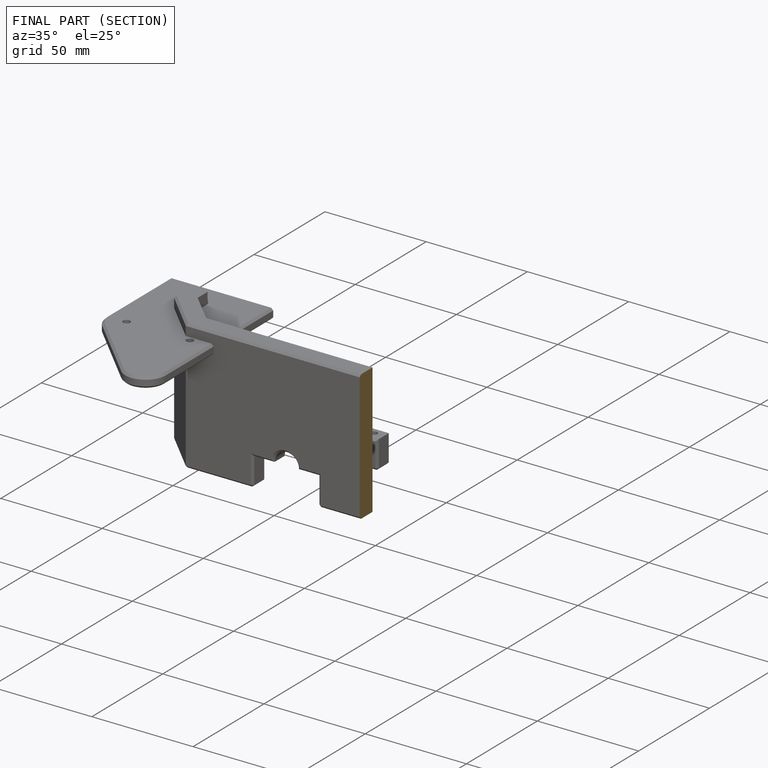
[diagram: finished part — half-section view (interior)]
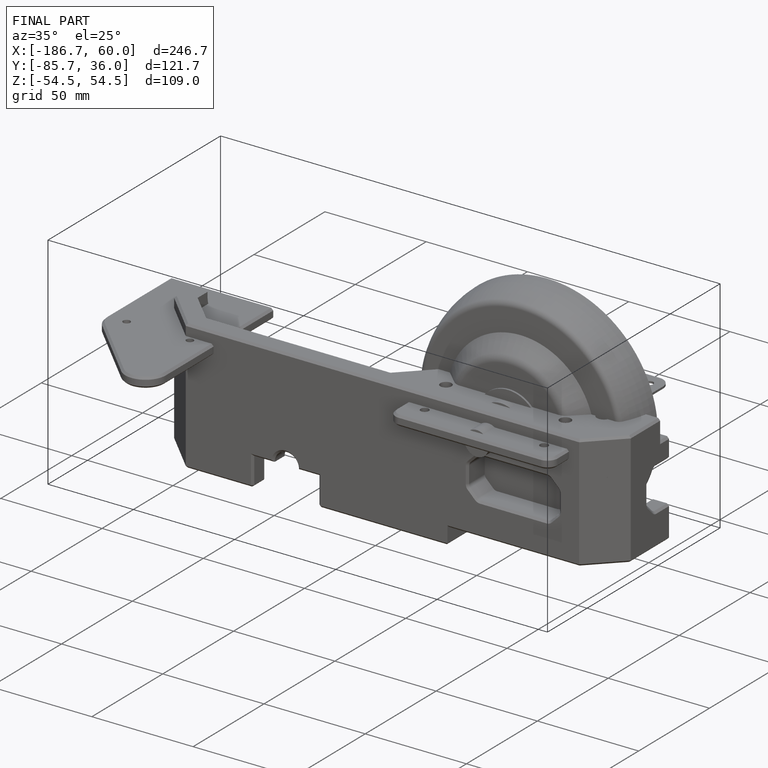
[diagram: finished part — iso view with bounding-box wireframe]
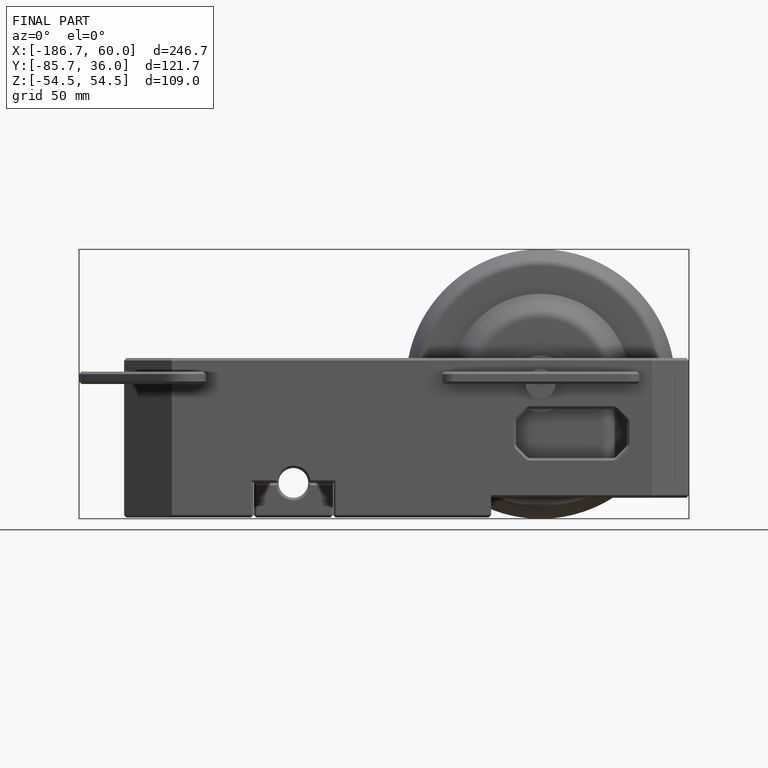
[diagram: finished part — front view with bounding-box wireframe]
